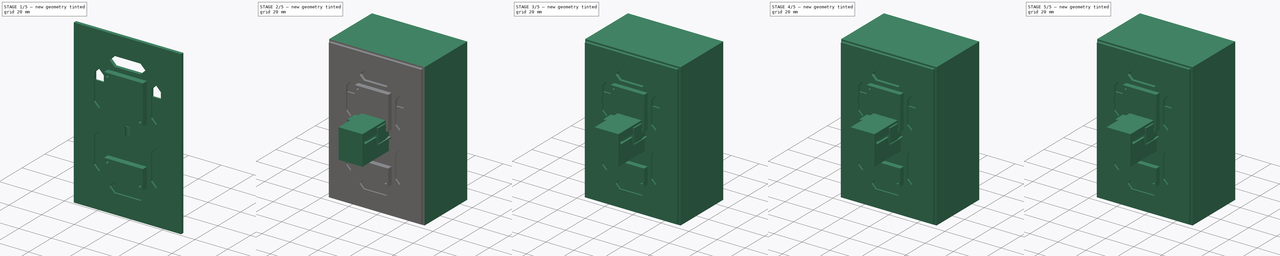
[diagram: build sequence overview — one tinted view per stage of 5, left to right]
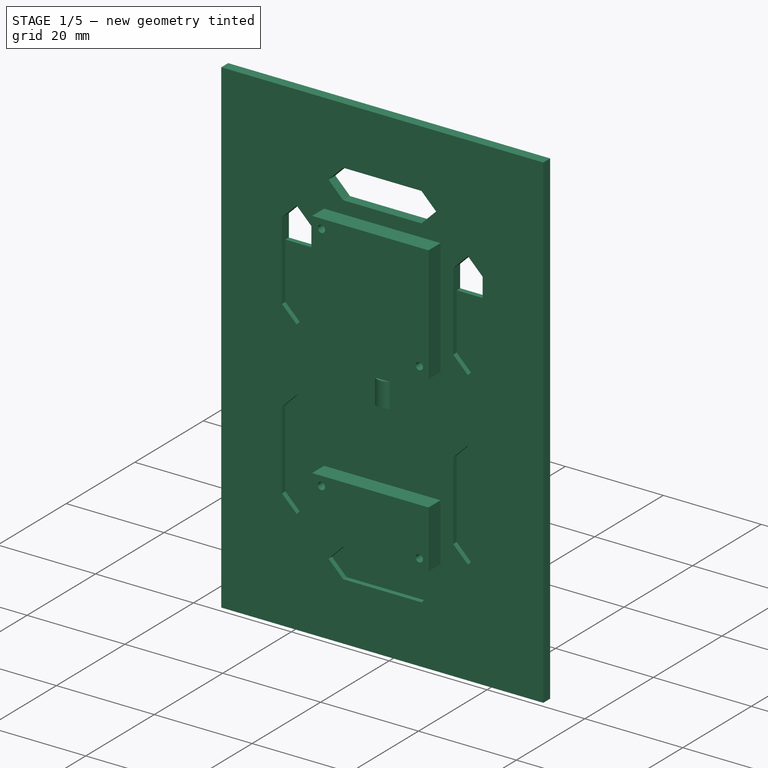
[diagram: stage 1 of 5 — iso view after this stage's code; geometry added in this stage tinted green]
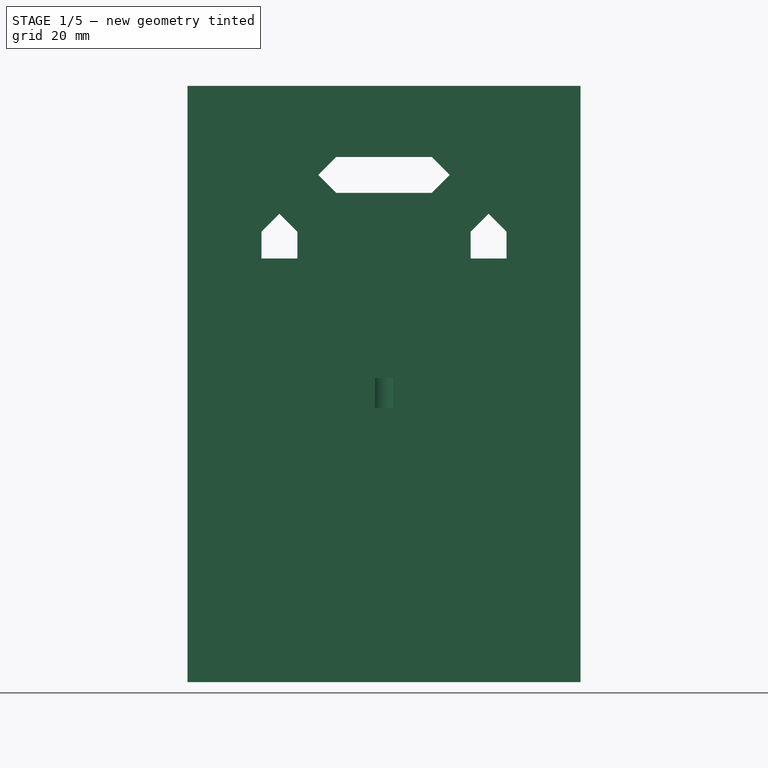
[diagram: stage 1 of 5 — front view after this stage's code; geometry added in this stage tinted green]
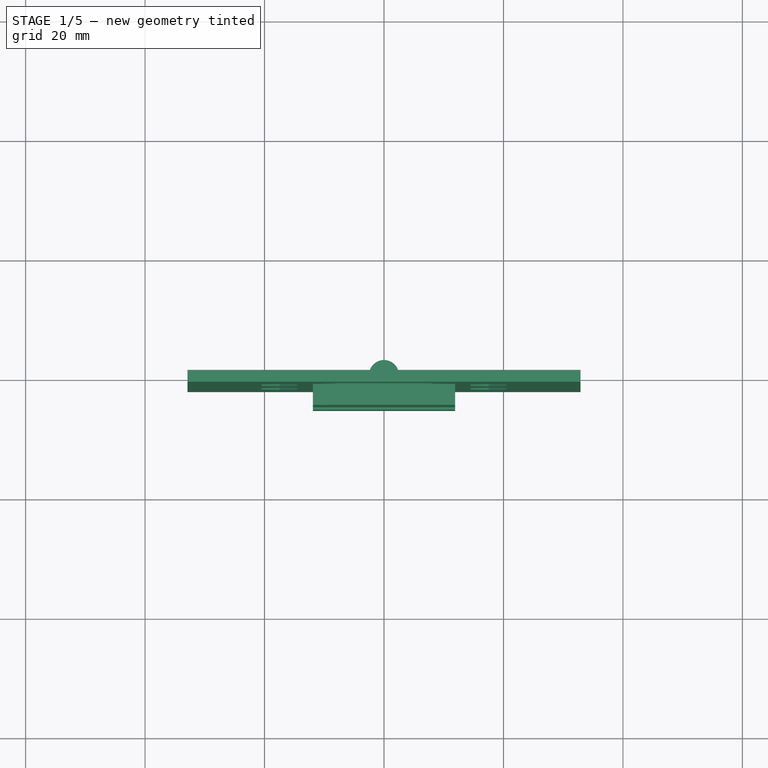
[diagram: stage 1 of 5 — top view after this stage's code; geometry added in this stage tinted green]
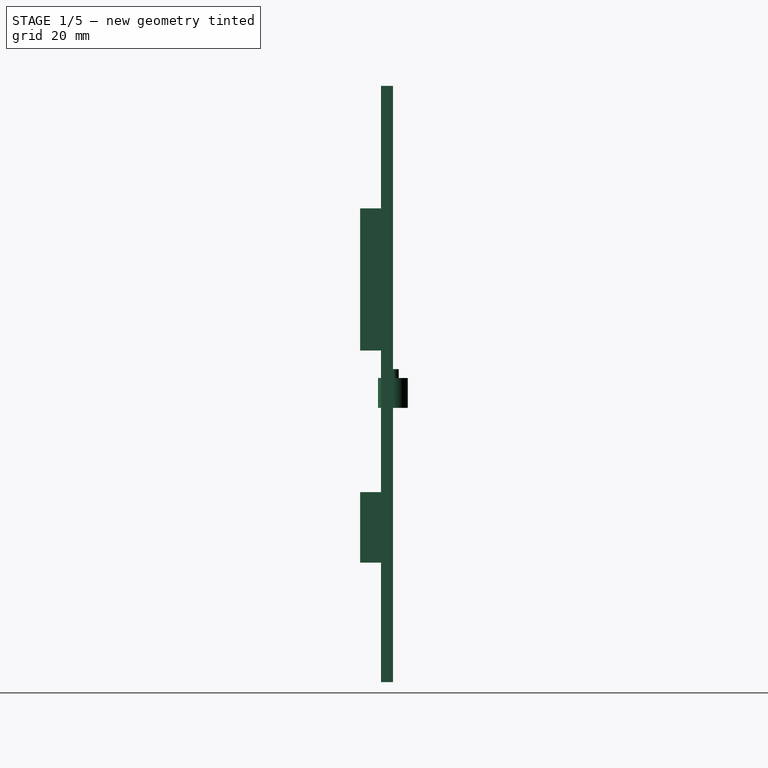
[diagram: stage 1 of 5 — right view after this stage's code; geometry added in this stage tinted green]
FCSTD DOCUMENT  (FreeCAD 0.19R24291 (Git))
Label: Mechanical Segment rev(03)
License: All rights reserved
LicenseURL: http://en.wikipedia.org/wiki/All_rights_reserved
objects: Sketcher::SketchObject×164, PartDesign::Pad×119, PartDesign::Body×64, PartDesign::Pocket×45, App::Part×33, Part::MultiFuse×7, PartDesign::Chamfer×7
note: 577 computed .brp shape members not serialized (recipe doc carries the construction recipe); baked Part::Feature solids carry a one-line shape summary decoded from their .brp

FEATURE [Sketcher::SketchObject] Sketch015
  FullyConstrained = true
  MapMode = 5
  Support = -> [XY_Plane013]
  sketch-geometry (2):
    g0: Circle CenterX=0 CenterY=0 CenterZ=0 NormalX=0 NormalY=0 NormalZ=1 AngleXU=0 Radius=2.5
    g1: Circle CenterX=0 CenterY=0 CenterZ=0 NormalX=0 NormalY=0 NormalZ=1 AngleXU=0 Radius=0.5
  constraints (4):
    c: Coincident(g0,g-1)
    c: Radius(g0) = 2.5
    c: Coincident(g1,g0)
    c: Radius(g1) = 0.5
FEATURE [PartDesign::Pad] Pad010
  Direction = (1,1,1)
  Length = 1
  Length2 = 100
  Profile = -> Sketch015
  Type = 0
FEATURE [Sketcher::SketchObject] Sketch017
  FullyConstrained = true
  MapMode = 5
  Placement = pos=(0,0,1) rot=(0,0,1;0rad)
  Support = -> [Pad010]
  sketch-geometry (2):
    g0: Circle CenterX=0 CenterY=0 CenterZ=0 NormalX=0 NormalY=0 NormalZ=1 AngleXU=0 Radius=0.97
    g1: Circle CenterX=0 CenterY=0 CenterZ=0 NormalX=0 NormalY=0 NormalZ=1 AngleXU=0 Radius=0.55
  constraints (4):
    c: Coincident(g0,g-1)
    c: Radius(g0) = 0.97
    c: Coincident(g1,g0)
    c: Radius(g1) = 0.55
FEATURE [PartDesign::Pad] Pad011
  BaseFeature = -> Pad010
  Direction = (1,1,1)
  Length = 1.5
  Length2 = 100
  Profile = -> Sketch017
  Type = 0
FEATURE [PartDesign::Body] Body006  label="CaseBody"
  Group = -> [Sketch012,Pad009,Sketch013,Pocket001,Sketch014,Pocket002,Sketch016,Pocket003,Sketch022,Pocket005]
  Origin = -> Origin012
  Tip = -> Pocket005
FEATURE [App::Part] Part003  label="Case"
  Group = -> [Body006]
  Origin = -> Origin011
  Placement = pos=(0,3,0) rot=(0,0,1;0rad)
FEATURE [Sketcher::SketchObject] Sketch024
  FullyConstrained = true
  MapMode = 5
  Placement = pos=(0,0,0) rot=(1,0,0;1.5708rad)
  Support = -> [XZ_Plane017]
  sketch-geometry (46):
    g0: LineSegment StartX=-32.9 StartY=49.9 StartZ=0 EndX=32.9 EndY=49.9 EndZ=0
    g1: LineSegment StartX=32.9 StartY=49.9 StartZ=0 EndX=32.9 EndY=-49.9 EndZ=0
    g2: LineSegment StartX=32.9 StartY=-49.9 StartZ=0 EndX=-32.9 EndY=-49.9 EndZ=0
    g3: LineSegment StartX=-32.9 StartY=-49.9 StartZ=0 EndX=-32.9 EndY=49.9 EndZ=0
    g4: LineSegment StartX=8 StartY=38 StartZ=0 EndX=-8 EndY=38 EndZ=0
    g5: LineSegment StartX=-8 StartY=38 StartZ=0 EndX=-11 EndY=35 EndZ=0
    g6: LineSegment StartX=-11 StartY=35 StartZ=0 EndX=-8 EndY=32 EndZ=0
    g7: LineSegment StartX=-8 StartY=32 StartZ=0 EndX=8 EndY=32 EndZ=0
    g8: LineSegment StartX=8 StartY=32 StartZ=0 EndX=11 EndY=35 EndZ=0
    g9: LineSegment StartX=11 StartY=35 StartZ=0 EndX=8 EndY=38 EndZ=0
    g10: LineSegment StartX=-14.5 StartY=25.5 StartZ=0 EndX=-17.5 EndY=28.5 EndZ=0
    g11: LineSegment StartX=-17.5 StartY=28.5 StartZ=0 EndX=-20.5 EndY=25.5 EndZ=0
    g12: LineSegment StartX=-20.5 StartY=25.5 StartZ=0 EndX=-20.5 EndY=9.5 EndZ=0
    g13: LineSegment StartX=-20.5 StartY=9.5 StartZ=0 EndX=-17.5 EndY=6.5 EndZ=0
    g14: LineSegment StartX=-17.5 StartY=6.5 StartZ=0 EndX=-14.5 EndY=9.5 EndZ=0
    g15: LineSegment StartX=-14.5 StartY=9.5 StartZ=0 EndX=-14.5 EndY=25.5 EndZ=0
    g16: LineSegment StartX=-14.5 StartY=-9.5 StartZ=0 EndX=-17.5 EndY=-6.5 EndZ=0
    g17: LineSegment StartX=-17.5 StartY=-6.5 StartZ=0 EndX=-20.5 EndY=-9.5 EndZ=0
    g18: LineSegment StartX=-20.5 StartY=-9.5 StartZ=0 EndX=-20.5 EndY=-25.5 EndZ=0
    g19: LineSegment StartX=-20.5 StartY=-25.5 StartZ=0 EndX=-17.5 EndY=-28.5 EndZ=0
    g20: LineSegment StartX=-17.5 StartY=-28.5 StartZ=0 EndX=-14.5 EndY=-25.5 EndZ=0
    g21: LineSegment StartX=-14.5 StartY=-25.5 StartZ=0 EndX=-14.5 EndY=-9.5 EndZ=0
    g22: LineSegment StartX=8 StartY=-32 StartZ=0 EndX=-8 EndY=-32 EndZ=0
    g23: LineSegment StartX=-8 StartY=-32 StartZ=0 EndX=-11 EndY=-35 EndZ=0
    g24: LineSegment StartX=-11 StartY=-35 StartZ=0 EndX=-8 EndY=-38 EndZ=0
    g25: LineSegment StartX=-8 StartY=-38 StartZ=0 EndX=8 EndY=-38 EndZ=0
    g26: LineSegment StartX=8 StartY=-38 StartZ=0 EndX=11 EndY=-35 EndZ=0
    g27: LineSegment StartX=11 StartY=-35 StartZ=0 EndX=8 EndY=-32 EndZ=0
    g28: LineSegment StartX=20.5 StartY=25.5 StartZ=0 EndX=17.5 EndY=28.5 EndZ=0
    g29: LineSegment StartX=17.5 StartY=28.5 StartZ=0 EndX=14.5 EndY=25.5 EndZ=0
    g30: LineSegment StartX=14.5 StartY=25.5 StartZ=0 EndX=14.5 EndY=9.5 EndZ=0
    g31: LineSegment StartX=14.5 StartY=9.5 StartZ=0 EndX=17.5 EndY=6.5 EndZ=0
    g32: LineSegment StartX=17.5 StartY=6.5 StartZ=0 EndX=20.5 EndY=9.5 EndZ=0
    g33: LineSegment StartX=20.5 StartY=9.5 StartZ=0 EndX=20.5 EndY=25.5 EndZ=0
    g34: LineSegment StartX=20.5 StartY=-9.5 StartZ=0 EndX=17.5 EndY=-6.5 EndZ=0
    g35: LineSegment StartX=17.5 StartY=-6.5 StartZ=0 EndX=14.5 EndY=-9.5 EndZ=0
    g36: LineSegment StartX=14.5 StartY=-9.5 StartZ=0 EndX=14.5 EndY=-25.5 EndZ=0
    g37: LineSegment StartX=14.5 StartY=-25.5 StartZ=0 EndX=17.5 EndY=-28.5 EndZ=0
    g38: LineSegment StartX=17.5 StartY=-28.5 StartZ=0 EndX=20.5 EndY=-25.5 EndZ=0
    g39: LineSegment StartX=20.5 StartY=-25.5 StartZ=0 EndX=20.5 EndY=-9.5 EndZ=0
    g40: LineSegment StartX=8 StartY=3 StartZ=0 EndX=-8 EndY=3 EndZ=0
    g41: LineSegment StartX=-8 StartY=3 StartZ=0 EndX=-11 EndY=-1.8e-15 EndZ=0
    g42: LineSegment StartX=-11 StartY=-1.8e-15 StartZ=0 EndX=-8 EndY=-3 EndZ=0
    g43: LineSegment StartX=-8 StartY=-3 StartZ=0 EndX=8 EndY=-3 EndZ=0
    g44: LineSegment StartX=8 StartY=-3 StartZ=0 EndX=11 EndY=0 EndZ=0
    g45: LineSegment StartX=11 StartY=0 StartZ=0 EndX=8 EndY=3 EndZ=0
  constraints (129):
    c: Coincident(g0,g1)
    c: Coincident(g1,g2)
    c: Coincident(g2,g3)
    c: Coincident(g3,g0)
    c: Horizontal(g2)
    c: Vertical(g3)
    c: Symmetric(g0,g0,g-2)
    c: Symmetric(g1,g0,g-1)
    c: Coincident(g4,g5)
    c: Coincident(g5,g6)
    c: Coincident(g6,g7)
    c: Coincident(g7,g8)
    c: Coincident(g8,g9)
    c: Coincident(g9,g4)
    c: Equal(g5,g6)
    c: Equal(g7,g4)
    c: Angle(g9,g8) = 1.5708
    c: Equal(g9,g8)
    c: Angle(g6,g5) = 1.5708
    c: Angle(g8,g7) = 2.35619
    c: DistanceX(g4,g4) = 16
    c: DistanceY(g6,g4) = 6
    c: Horizontal(g4)
    c: Coincident(g10,g11)
    c: Coincident(g11,g12)
    c: Coincident(g12,g13)
    c: Coincident(g13,g14)
    c: Coincident(g14,g15)
    c: Coincident(g15,g10)
    c: Angle(g11,g10) = 1.5708
    c: Angle(g14,g13) = 1.5708
    c: Vertical(g12)
    c: Vertical(g15)
    c: DistanceX(g11,g10) = 6
    c: Angle(g15,g14) = 2.35619
    c: Equal(g14,g13)
    c: Equal(g10,g11)
    c: Equal(g15,g12)
    c: DistanceY(g15,g15) = 16
    c: Coincident(g16,g17)
    c: Coincident(g17,g18)
    c: Coincident(g18,g19)
    c: Coincident(g19,g20)
    c: Coincident(g20,g21)
    c: Coincident(g21,g16)
    c: Angle(g17,g16) = 1.5708
    c: Angle(g20,g19) = 1.5708
    c: Vertical(g18)
    c: Vertical(g21)
    c: DistanceX(g17,g16) = 6
    c: Angle(g21,g20) = 2.35619
    c: Equal(g20,g19)
    c: Equal(g16,g17)
    c: Equal(g21,g18)
    c: Equal(g15,g21) = 15
    c: Coincident(g22,g23)
    c: Coincident(g23,g24)
    c: Coincident(g24,g25)
    c: Coincident(g25,g26)
    c: Coincident(g26,g27)
    c: Coincident(g27,g22)
    c: Equal(g23,g24)
    c: Equal(g25,g22)
    c: Horizontal(g25)
    c: Angle(g27,g26) = 1.5708
    c: Equal(g27,g26)
    c: Angle(g24,g23) = 1.5708
    c: Angle(g26,g25) = 2.35619
    c: Equal(g4,g22) = 12
    c: DistanceY(g24,g22) = 6
    c: Coincident(g28,g29)
    c: Coincident(g29,g30)
    c: Coincident(g30,g31)
    c: Coincident(g31,g32)
    c: Coincident(g32,g33)
    c: Coincident(g33,g28)
    c: Angle(g29,g28) = 1.5708
    c: Angle(g32,g31) = 1.5708
    c: Vertical(g30)
    c: Vertical(g33)
    c: DistanceX(g29,g28) = 6
    c: Angle(g33,g32) = 2.35619
    c: Equal(g32,g31)
    c: Equal(g28,g29)
    c: Equal(g33,g30)
    c: Equal(g15,g33) = 15
    c: Coincident(g34,g35)
    c: Coincident(g35,g36)
    c: Coincident(g36,g37)
    c: Coincident(g37,g38)
    c: Coincident(g38,g39)
    c: Coincident(g39,g34)
    c: Angle(g35,g34) = 1.5708
    c: Angle(g38,g37) = 1.5708
    c: Vertical(g36)
    c: Vertical(g39)
    c: DistanceX(g35,g34) = 6
    c: Angle(g39,g38) = 2.35619
    c: Equal(g38,g37)
    c: Equal(g33,g39) = 15
    c: Coincident(g40,g41)
    c: Coincident(g41,g42)
    c: Coincident(g42,g43)
    c: Coincident(g43,g44)
    c: Coincident(g44,g45)
    c: Coincident(g45,g40)
    c: Equal(g41,g42)
    c: Equal(g43,g40)
    c: Horizontal(g43)
    c: Angle(g45,g44) = 1.5708
    c: Equal(g45,g44)
    c: Angle(g42,g41) = 1.5708
    c: Angle(g44,g43) = 2.35619
    c: Equal(g4,g40) = 12
    c: DistanceY(g42,g40) = 6
    c: Symmetric(g10,g29,g-2)
    c: DistanceX(g10,g29) = 29
    c: Symmetric(g6,g7,g-2)
    c: Symmetric(g40,g40,g-2)
    c: DistanceY(g40,g7) = 29
    c: DistanceY(g22,g43) = 29
    c: PointOnObject(g44,g-1)
    c: Symmetric(g22,g22,g-2)
    c: Symmetric(g35,g16,g-2)
    c: Symmetric(g31,g34,g-1)
    c: Symmetric(g16,g13,g-1)
    c: DistanceY(g1,g1) = 99.8
    c: DistanceX(g0,g0) = 65.8
    c: DistanceY(g34,g31) = 13
FEATURE [PartDesign::Pad] Pad016
  Direction = (1,1,1)
  Length = 2
  Length2 = 100
  Placement = pos=(0,0,0) rot=(1,0,0;1.5708rad)
  Profile = -> Sketch024
  Type = 0
FEATURE [Sketcher::SketchObject] Sketch032
  FullyConstrained = true
  MapMode = 5
  Placement = pos=(0,0,0) rot=(1,0,0;1.5708rad)
  Support = -> [XZ_Plane020]
  sketch-geometry (4):
    g0: LineSegment StartX=-21 StartY=21 StartZ=0 EndX=21 EndY=21 EndZ=0
    g1: LineSegment StartX=21 StartY=21 StartZ=0 EndX=21 EndY=-21 EndZ=0
    g2: LineSegment StartX=21 StartY=-21 StartZ=0 EndX=-21 EndY=-21 EndZ=0
    g3: LineSegment StartX=-21 StartY=-21 StartZ=0 EndX=-21 EndY=21 EndZ=0
  constraints (10):
    c: Coincident(g0,g1)
    c: Coincident(g1,g2)
    c: Coincident(g2,g3)
    c: Coincident(g3,g0)
    c: Horizontal(g2)
    c: Vertical(g3)
    c: Symmetric(g0,g0,g-2)
    c: Symmetric(g1,g0,g-1)
    c: Equal(g1,g0)
    c: DistanceX(g0,g0) = 42
FEATURE [PartDesign::Pad] Pad111
  Direction = (1,1,1)
  Length = 2
  Length2 = 100
  Placement = pos=(0,0,0) rot=(1,0,0;1.5708rad)
  Profile = -> Sketch032
  Type = 0
FEATURE [Sketcher::SketchObject] Sketch166
  FullyConstrained = true
  MapMode = 5
  Placement = pos=(0,-2,0) rot=(1,0,0;1.5708rad)
  Support = -> [Pad016]
  sketch-geometry (8):
    g0: LineSegment StartX=-11.9 StartY=29.4 StartZ=0 EndX=11.9 EndY=29.4 EndZ=0
    g1: LineSegment StartX=11.9 StartY=29.4 StartZ=0 EndX=11.9 EndY=5.6 EndZ=0
    g2: LineSegment StartX=11.9 StartY=5.6 StartZ=0 EndX=-11.9 EndY=5.6 EndZ=0
    g3: LineSegment StartX=-11.9 StartY=5.6 StartZ=0 EndX=-11.9 EndY=29.4 EndZ=0
    g4: LineSegment StartX=-11.9 StartY=-18.1 StartZ=0 EndX=11.9 EndY=-18.1 EndZ=0
    g5: LineSegment StartX=11.9 StartY=-18.1 StartZ=0 EndX=11.9 EndY=-29.9 EndZ=0
    g6: LineSegment StartX=11.9 StartY=-29.9 StartZ=0 EndX=-11.9 EndY=-29.9 EndZ=0
    g7: LineSegment StartX=-11.9 StartY=-29.9 StartZ=0 EndX=-11.9 EndY=-18.1 EndZ=0
  constraints (22):
    c: Coincident(g0,g1)
    c: Coincident(g1,g2)
    c: Coincident(g2,g3)
    c: Coincident(g3,g0)
    c: Horizontal(g0)
    c: Vertical(g1)
    c: Vertical(g3)
    c: DistanceX(g2,g0) = 23.8
    c: DistanceY(g2,g0) = 23.8
    c: Symmetric(g1,g2,g-2)
    c: DistanceY(g-1,g1) = 5.6
    c: Coincident(g4,g5)
    c: Coincident(g5,g6)
    c: Coincident(g6,g7)
    c: Coincident(g7,g4)
    c: Horizontal(g6)
    c: Vertical(g5)
    c: Vertical(g7)
    c: Symmetric(g4,g4,g-2)
    c: DistanceX(g4,g4) = 23.8
    c: DistanceY(g5,g5) = 11.8
    c: DistanceY(g4,g-1) = 18.1
FEATURE [PartDesign::Pad] Pad112
  BaseFeature = -> Pad016
  Direction = (1,1,1)
  Length = 3.5
  Length2 = 100
  Placement = pos=(0,0,0) rot=(1,0,0;1.5708rad)
  Profile = -> Sketch166
  Type = 0
FEATURE [Sketcher::SketchObject] Sketch165
  FullyConstrained = true
  MapMode = 5
  Placement = pos=(0,0,0) rot=(-1,0,0;1.5708rad)
  Support = -> [Pad111]
  sketch-geometry (4):
    g0: LineSegment StartX=-12 StartY=12 StartZ=0 EndX=12 EndY=12 EndZ=0
    g1: LineSegment StartX=12 StartY=12 StartZ=0 EndX=12 EndY=-12 EndZ=0
    g2: LineSegment StartX=12 StartY=-12 StartZ=0 EndX=-12 EndY=-12 EndZ=0
    g3: LineSegment StartX=-12 StartY=-12 StartZ=0 EndX=-12 EndY=12 EndZ=0
  constraints (10):
    c: Coincident(g0,g1)
    c: Coincident(g1,g2)
    c: Coincident(g2,g3)
    c: Coincident(g3,g0)
    c: Horizontal(g2)
    c: Vertical(g3)
    c: Equal(g0,g1)
    c: Symmetric(g0,g0,g-2)
    c: Symmetric(g1,g0,g-1)
    c: DistanceX(g0,g0) = 24
FEATURE [PartDesign::Pocket] Pocket008
  BaseFeature = -> Pad111
  Length = 1
  Length2 = 100
  Placement = pos=(0,0,0) rot=(1,0,0;1.5708rad)
  Profile = -> Sketch165
  Type = 0
FEATURE [Sketcher::SketchObject] Sketch167
  FullyConstrained = true
  MapMode = 5
  Placement = pos=(0,-2,0) rot=(1,0,0;1.5708rad)
  Support = -> [Pocket008]
  sketch-geometry (8):
    g0: LineSegment StartX=-14 StartY=14 StartZ=0 EndX=14 EndY=14 EndZ=0
    g1: LineSegment StartX=14 StartY=14 StartZ=0 EndX=14 EndY=-14 EndZ=0
    g2: LineSegment StartX=14 StartY=-14 StartZ=0 EndX=-14 EndY=-14 EndZ=0
    g3: LineSegment StartX=-14 StartY=-14 StartZ=0 EndX=-14 EndY=14 EndZ=0
    g4: LineSegment StartX=-21 StartY=21 StartZ=0 EndX=21 EndY=21 EndZ=0
    g5: LineSegment StartX=21 StartY=21 StartZ=0 EndX=21 EndY=-21 EndZ=0
    g6: LineSegment StartX=21 StartY=-21 StartZ=0 EndX=-21 EndY=-21 EndZ=0
    g7: LineSegment StartX=-21 StartY=-21 StartZ=0 EndX=-21 EndY=21 EndZ=0
  constraints (20):
    c: Coincident(g0,g1)
    c: Coincident(g1,g2)
    c: Coincident(g2,g3)
    c: Coincident(g3,g0)
    c: Horizontal(g0)
    c: Vertical(g3)
    c: Symmetric(g1,g2,g-2)
    c: Symmetric(g1,g0,g-1)
    c: DistanceX(g2,g0) = 28
    c: DistanceY(g2,g0) = 28
    c: Coincident(g4,g5)
    c: Coincident(g5,g6)
    c: Coincident(g6,g7)
    c: Coincident(g7,g4)
    c: Horizontal(g4)
    c: Vertical(g7)
    c: DistanceX(g6,g4) = 42
    c: DistanceY(g6,g4) = 42
    c: Symmetric(g6,g5,g-2)
    c: Symmetric(g5,g4,g-1)
FEATURE [PartDesign::Pocket] Pocket009
  BaseFeature = -> Pocket008
  Length = 1
  Length2 = 100
  Placement = pos=(0,0,0) rot=(1,0,0;1.5708rad)
  Profile = -> Sketch167
  Type = 0
FEATURE [Sketcher::SketchObject] Sketch170
  FullyConstrained = true
  MapMode = 5
  Placement = pos=(0,0,0) rot=(1,0,0;1.5708rad)
  Support = -> [XZ_Plane021]
  sketch-geometry (8):
    g0: LineSegment StartX=21 StartY=-5 StartZ=0 EndX=21 EndY=-38.5 EndZ=0
    g1: LineSegment StartX=21 StartY=-38.5 StartZ=0 EndX=-21 EndY=-38.5 EndZ=0
    g2: LineSegment StartX=-21 StartY=-38.5 StartZ=0 EndX=-21 EndY=-5 EndZ=0
    g3: LineSegment StartX=-21 StartY=-5 StartZ=0 EndX=-13 EndY=-5 EndZ=0
    g4: LineSegment StartX=-13 StartY=-5 StartZ=0 EndX=-13 EndY=-16 EndZ=0
    g5: LineSegment StartX=-13 StartY=-16 StartZ=0 EndX=13 EndY=-16 EndZ=0
    g6: LineSegment StartX=13 StartY=-16 StartZ=0 EndX=13 EndY=-5 EndZ=0
    g7: LineSegment StartX=13 StartY=-5 StartZ=0 EndX=21 EndY=-5 EndZ=0
  constraints (22):
    c: Coincident(g0,g1)
    c: Coincident(g1,g2)
    c: Vertical(g0)
    c: Vertical(g2)
    c: Coincident(g2,g3)
    c: Horizontal(g3)
    c: Coincident(g3,g4)
    c: Vertical(g4)
    c: Coincident(g4,g5)
    c: Coincident(g5,g6)
    c: Vertical(g6)
    c: Coincident(g6,g7)
    c: Coincident(g7,g0)
    c: Horizontal(g7)
    c: Symmetric(g0,g1,g-2)
    c: DistanceX(g1,g1) = 42
    c: DistanceY(g0,g-1) = 38.5
    c: Symmetric(g6,g3,g-2)
    c: DistanceX(g5,g5) = 26
    c: DistanceY(g0,g-1) = 5
    c: Horizontal(g5)
    c: DistanceY(g6,g6) = 11
FEATURE [PartDesign::Pad] Pad113
  Direction = (1,1,1)
  Length = 2
  Length2 = 100
  Placement = pos=(0,0,0) rot=(1,0,0;1.5708rad)
  Profile = -> Sketch170
  Type = 0
FEATURE [Sketcher::SketchObject] Sketch171
  FullyConstrained = true
  MapMode = 5
  Placement = pos=(0,0,0) rot=(-1,0,0;1.5708rad)
  Support = -> [Pad113]
  sketch-geometry (4):
    g0: LineSegment StartX=-12 StartY=30 StartZ=0 EndX=12 EndY=30 EndZ=0
    g1: LineSegment StartX=12 StartY=30 StartZ=0 EndX=12 EndY=18 EndZ=0
    g2: LineSegment StartX=12 StartY=18 StartZ=0 EndX=-12 EndY=18 EndZ=0
    g3: LineSegment StartX=-12 StartY=18 StartZ=0 EndX=-12 EndY=30 EndZ=0
  constraints (11):
    c: Coincident(g0,g1)
    c: Coincident(g1,g2)
    c: Coincident(g2,g3)
    c: Coincident(g3,g0)
    c: Horizontal(g2)
    c: Vertical(g1)
    c: Vertical(g3)
    c: DistanceX(g2,g0) = 24
    c: DistanceY(g2,g0) = 12
    c: Symmetric(g0,g0,g-2)
    c: DistanceY(g-1,g1) = 18
FEATURE [PartDesign::Pocket] Pocket010
  BaseFeature = -> Pad113
  Length = 1
  Length2 = 100
  Placement = pos=(0,0,0) rot=(1,0,0;1.5708rad)
  Profile = -> Sketch171
  Type = 0
FEATURE [Sketcher::SketchObject] Sketch172
  FullyConstrained = false
  MapMode = 5
  Placement = pos=(0,-2,0) rot=(1,0,0;1.5708rad)
  Support = -> [Pocket010]
  sketch-geometry (8):
    g0: LineSegment StartX=-23.1185 StartY=-2.80901 StartZ=0 EndX=23.1185 EndY=-2.80901 EndZ=0
    g1: LineSegment StartX=23.1185 StartY=-2.80901 StartZ=0 EndX=23.1185 EndY=-39.9916 EndZ=0
    g2: LineSegment StartX=23.1185 StartY=-39.9916 StartZ=0 EndX=-23.1185 EndY=-39.9916 EndZ=0
    g3: LineSegment StartX=-23.1185 StartY=-39.9916 StartZ=0 EndX=-23.1185 EndY=-2.80901 EndZ=0
    g4: LineSegment StartX=-14 StartY=-16 StartZ=0 EndX=14 EndY=-16 EndZ=0
    g5: LineSegment StartX=14 StartY=-16 StartZ=0 EndX=14 EndY=-32 EndZ=0
    g6: LineSegment StartX=14 StartY=-32 StartZ=0 EndX=-14 EndY=-32 EndZ=0
    g7: LineSegment StartX=-14 StartY=-32 StartZ=0 EndX=-14 EndY=-16 EndZ=0
  constraints (19):
    c: Coincident(g0,g1)
    c: Coincident(g1,g2)
    c: Coincident(g2,g3)
    c: Coincident(g3,g0)
    c: Horizontal(g0)
    c: Vertical(g1)
    c: Vertical(g3)
    c: Coincident(g4,g5)
    c: Coincident(g5,g6)
    c: Coincident(g6,g7)
    c: Coincident(g7,g4)
    c: Horizontal(g4)
    c: Vertical(g5)
    c: Vertical(g7)
    c: DistanceX(g6,g4) = 28
    c: DistanceY(g6,g4) = 16
    c: Symmetric(g5,g6,g-2)
    c: Symmetric(g1,g2,g-2)
    c: DistanceY(g4,g-1) = 16
FEATURE [PartDesign::Pocket] Pocket011
  BaseFeature = -> Pocket010
  Length = 1
  Length2 = 100
  Placement = pos=(0,0,0) rot=(1,0,0;1.5708rad)
  Profile = -> Sketch172
  Type = 0
FEATURE [PartDesign::Body] Body016  label="CaseBody001"
  Group = -> [Sketch189,Pad117,Sketch185,Pocket012,Sketch186,Pocket013,Sketch178,Pocket014,Sketch184,Pocket015]
  Origin = -> Origin027
  Tip = -> Pocket015
FEATURE [App::Part] Part007  label="Case001"
  Group = -> [Body016]
  Origin = -> Origin025
  Placement = pos=(0,3,0) rot=(0,0,1;0rad)
FEATURE [PartDesign::Pad] Pad118
  Direction = (1,1,1)
  Length = 1
  Length2 = 100
  Profile = -> Sketch188
  Type = 0
FEATURE [Sketcher::SketchObject] Sketch182
  ExternalGeometry = -> [Pad120]
  FullyConstrained = false
  MapMode = 5
  Support = -> [XY_Plane033]
  sketch-geometry (8):
    g0: ArcOfCircle CenterX=-2.53973 CenterY=-9.54527 CenterZ=0 NormalX=0 NormalY=0 NormalZ=1 AngleXU=0 Radius=1 StartAngle=3.14159 EndAngle=6.28319
    g1: LineSegment StartX=-3.53973 StartY=-8.57169 StartZ=0 EndX=-3.53973 EndY=-9.54527 EndZ=0
    g2: LineSegment StartX=-1.53973 StartY=-8.57169 StartZ=0 EndX=-1.53973 EndY=-9.54527 EndZ=0
    g3: LineSegment StartX=-3.53973 StartY=-8.57169 StartZ=0 EndX=-1.53973 EndY=-8.57169 EndZ=0
    g4: ArcOfCircle CenterX=2.53973 CenterY=-9.54527 CenterZ=0 NormalX=0 NormalY=0 NormalZ=1 AngleXU=0 Radius=1 StartAngle=3.14159 EndAngle=6.28319
    g5: LineSegment StartX=3.53973 StartY=-8.57169 StartZ=0 EndX=3.53973 EndY=-9.54527 EndZ=0
    g6: LineSegment StartX=1.53973 StartY=-8.57169 StartZ=0 EndX=1.53973 EndY=-9.54527 EndZ=0
    g7: LineSegment StartX=3.53973 StartY=-8.57169 StartZ=0 EndX=1.53973 EndY=-8.57169 EndZ=0
  constraints (17):
    c: Tangent(g1,g0) = -1.5708
    c: Tangent(g2,g0) = 1.5708
    c: Vertical(g1)
    c: Coincident(g3,g1)
    c: Coincident(g3,g2)
    c: Horizontal(g3)
    c: Vertical(g2)
    c: Radius(g0) = 1
    c: PointOnObject(g1,g-3)
    c: Tangent(g5,g4) = 1.5708
    c: Tangent(g6,g4) = -1.5708
    c: Vertical(g5)
    c: Coincident(g7,g5)
    c: Coincident(g7,g6)
    c: Horizontal(g7)
    c: Vertical(g6)
    c: Radius(g4) = 1
FEATURE [PartDesign::Pad] Pad121
  BaseFeature = -> Pad118
  Direction = (1,1,1)
  Length = 1.5
  Length2 = 100
  Profile = -> Sketch180
  Type = 0
FEATURE [Sketcher::SketchObject] Sketch207
  FullyConstrained = false
  MapMode = 5
  Placement = pos=(0,0,12.5) rot=(0,0,1;0rad)
  Support = -> [Pad133]
  sketch-geometry (1):
    g0: Circle CenterX=0 CenterY=0 CenterZ=0 NormalX=0 NormalY=0 NormalZ=1 AngleXU=0 Radius=0.742682
  constraints (1):
    c: Coincident(g0,g-1)
FEATURE [PartDesign::Pad] Pad134
  Direction = (1,1,1)
  Length = 1
  Length2 = 100
  Profile = -> Sketch222
  Type = 0
FEATURE [Sketcher::SketchObject] Sketch216
  ExternalGeometry = -> [Pad135]
  FullyConstrained = false
  MapMode = 5
  Support = -> [XY_Plane043]
  sketch-geometry (8):
    g0: ArcOfCircle CenterX=-2.53973 CenterY=-9.54527 CenterZ=0 NormalX=0 NormalY=0 NormalZ=1 AngleXU=0 Radius=1 StartAngle=3.14159 EndAngle=6.28319
    g1: LineSegment StartX=-3.53973 StartY=-8.57169 StartZ=0 EndX=-3.53973 EndY=-9.54527 EndZ=0
    g2: LineSegment StartX=-1.53973 StartY=-8.57169 StartZ=0 EndX=-1.53973 EndY=-9.54527 EndZ=0
    g3: LineSegment StartX=-3.53973 StartY=-8.57169 StartZ=0 EndX=-1.53973 EndY=-8.57169 EndZ=0
    g4: ArcOfCircle CenterX=2.53973 CenterY=-9.54527 CenterZ=0 NormalX=0 NormalY=0 NormalZ=1 AngleXU=0 Radius=1 StartAngle=3.14159 EndAngle=6.28319
    g5: LineSegment StartX=3.53973 StartY=-8.57169 StartZ=0 EndX=3.53973 EndY=-9.54527 EndZ=0
    g6: LineSegment StartX=1.53973 StartY=-8.57169 StartZ=0 EndX=1.53973 EndY=-9.54527 EndZ=0
    g7: LineSegment StartX=3.53973 StartY=-8.57169 StartZ=0 EndX=1.53973 EndY=-8.57169 EndZ=0
  constraints (17):
    c: Tangent(g1,g0) = -1.5708
    c: Tangent(g2,g0) = 1.5708
    c: Vertical(g1)
    c: Coincident(g3,g1)
    c: Coincident(g3,g2)
    c: Horizontal(g3)
    c: Vertical(g2)
    c: Radius(g0) = 1
    c: PointOnObject(g1,g-3)
    c: Tangent(g5,g4) = 1.5708
    c: Tangent(g6,g4) = -1.5708
    c: Vertical(g5)
    c: Coincident(g7,g5)
    c: Coincident(g7,g6)
    c: Horizontal(g7)
    c: Vertical(g6)
    c: Radius(g4) = 1
FEATURE [PartDesign::Pad] Pad136
  BaseFeature = -> Pad134
  Direction = (1,1,1)
  Length = 1.5
  Length2 = 100
  Profile = -> Sketch210
  Type = 0
FEATURE [PartDesign::Body] Body024  label="CaseBody002"
  Group = -> [Sketch227,Pad145,Sketch223,Pocket017,Sketch224,Pocket018,Sketch197,Pocket019,Sketch203,Pocket020]
  Origin = -> Origin051
  Tip = -> Pocket020
FEATURE [App::Part] Part015  label="Case003"
  Group = -> [Body024]
  Origin = -> Origin049
  Placement = pos=(0,3,0) rot=(0,0,1;0rad)
FEATURE [PartDesign::Pad] Pad146
  Direction = (1,1,1)
  Length = 1
  Length2 = 100
  Profile = -> Sketch226
  Type = 0
FEATURE [Sketcher::SketchObject] Sketch201
  ExternalGeometry = -> [Pad148]
  FullyConstrained = false
  MapMode = 5
  Support = -> [XY_Plane057]
  sketch-geometry (8):
    g0: ArcOfCircle CenterX=-2.53973 CenterY=-9.54527 CenterZ=0 NormalX=0 NormalY=0 NormalZ=1 AngleXU=0 Radius=1 StartAngle=3.14159 EndAngle=6.28319
    g1: LineSegment StartX=-3.53973 StartY=-8.57169 StartZ=0 EndX=-3.53973 EndY=-9.54527 EndZ=0
    g2: LineSegment StartX=-1.53973 StartY=-8.57169 StartZ=0 EndX=-1.53973 EndY=-9.54527 EndZ=0
    g3: LineSegment StartX=-3.53973 StartY=-8.57169 StartZ=0 EndX=-1.53973 EndY=-8.57169 EndZ=0
    g4: ArcOfCircle CenterX=2.53973 CenterY=-9.54527 CenterZ=0 NormalX=0 NormalY=0 NormalZ=1 AngleXU=0 Radius=1 StartAngle=3.14159 EndAngle=6.28319
    g5: LineSegment StartX=3.53973 StartY=-8.57169 StartZ=0 EndX=3.53973 EndY=-9.54527 EndZ=0
    g6: LineSegment StartX=1.53973 StartY=-8.57169 StartZ=0 EndX=1.53973 EndY=-9.54527 EndZ=0
    g7: LineSegment StartX=3.53973 StartY=-8.57169 StartZ=0 EndX=1.53973 EndY=-8.57169 EndZ=0
  constraints (17):
    c: Tangent(g1,g0) = -1.5708
    c: Tangent(g2,g0) = 1.5708
    c: Vertical(g1)
    c: Coincident(g3,g1)
    c: Coincident(g3,g2)
    c: Horizontal(g3)
    c: Vertical(g2)
    c: Radius(g0) = 1
    c: PointOnObject(g1,g-3)
    c: Tangent(g5,g4) = 1.5708
    c: Tangent(g6,g4) = -1.5708
    c: Vertical(g5)
    c: Coincident(g7,g5)
    c: Coincident(g7,g6)
    c: Horizontal(g7)
    c: Vertical(g6)
    c: Radius(g4) = 1
FEATURE [PartDesign::Pad] Pad149
  BaseFeature = -> Pad146
  Direction = (1,1,1)
  Length = 1.5
  Length2 = 100
  Profile = -> Sketch199
  Type = 0
FEATURE [PartDesign::Body] Body040  label="CaseBody004"
  Group = -> [Sketch246,Pad159,Sketch242,Pocket027,Sketch243,Pocket028,Sketch235,Pocket029,Sketch241,Pocket030]
  Origin = -> Origin063
  Tip = -> Pocket030
FEATURE [App::Part] Part019  label="Case004"
  Group = -> [Body040]
  Origin = -> Origin061
  Placement = pos=(0,3,0) rot=(0,0,1;0rad)
FEATURE [PartDesign::Pad] Pad160
  Direction = (1,1,1)
  Length = 1
  Length2 = 100
  Profile = -> Sketch245
  Type = 0
FEATURE [Sketcher::SketchObject] Sketch239
  ExternalGeometry = -> [Pad162]
  FullyConstrained = false
  MapMode = 5
  Support = -> [XY_Plane069]
  sketch-geometry (8):
    g0: ArcOfCircle CenterX=-2.53973 CenterY=-9.54527 CenterZ=0 NormalX=0 NormalY=0 NormalZ=1 AngleXU=0 Radius=1 StartAngle=3.14159 EndAngle=6.28319
    g1: LineSegment StartX=-3.53973 StartY=-8.57169 StartZ=0 EndX=-3.53973 EndY=-9.54527 EndZ=0
    g2: LineSegment StartX=-1.53973 StartY=-8.57169 StartZ=0 EndX=-1.53973 EndY=-9.54527 EndZ=0
    g3: LineSegment StartX=-3.53973 StartY=-8.57169 StartZ=0 EndX=-1.53973 EndY=-8.57169 EndZ=0
    g4: ArcOfCircle CenterX=2.53973 CenterY=-9.54527 CenterZ=0 NormalX=0 NormalY=0 NormalZ=1 AngleXU=0 Radius=1 StartAngle=3.14159 EndAngle=6.28319
    g5: LineSegment StartX=3.53973 StartY=-8.57169 StartZ=0 EndX=3.53973 EndY=-9.54527 EndZ=0
    g6: LineSegment StartX=1.53973 StartY=-8.57169 StartZ=0 EndX=1.53973 EndY=-9.54527 EndZ=0
    g7: LineSegment StartX=3.53973 StartY=-8.57169 StartZ=0 EndX=1.53973 EndY=-8.57169 EndZ=0
  constraints (17):
    c: Tangent(g1,g0) = -1.5708
    c: Tangent(g2,g0) = 1.5708
    c: Vertical(g1)
    c: Coincident(g3,g1)
    c: Coincident(g3,g2)
    c: Horizontal(g3)
    c: Vertical(g2)
    c: Radius(g0) = 1
    c: PointOnObject(g1,g-3)
    c: Tangent(g5,g4) = 1.5708
    c: Tangent(g6,g4) = -1.5708
    c: Vertical(g5)
    c: Coincident(g7,g5)
    c: Coincident(g7,g6)
    c: Horizontal(g7)
    c: Vertical(g6)
    c: Radius(g4) = 1
FEATURE [PartDesign::Pad] Pad163
  BaseFeature = -> Pad160
  Direction = (1,1,1)
  Length = 1.5
  Length2 = 100
  Profile = -> Sketch237
  Type = 0
FEATURE [Sketcher::SketchObject] Sketch264
  FullyConstrained = true
  MapMode = 5
  Support = -> [XY_Plane073]
  sketch-geometry (2):
    g0: Circle CenterX=0 CenterY=0 CenterZ=0 NormalX=0 NormalY=0 NormalZ=1 AngleXU=0 Radius=2.5
    g1: Circle CenterX=0 CenterY=0 CenterZ=0 NormalX=0 NormalY=0 NormalZ=1 AngleXU=0 Radius=0.5
  constraints (4):
    c: Coincident(g0,g-1)
    c: Radius(g0) = 2.5
    c: Coincident(g1,g0)
    c: Radius(g1) = 0.5
FEATURE [PartDesign::Pad] Pad178
  Direction = (1,1,1)
  Length = 1
  Length2 = 100
  Profile = -> Sketch264
  Type = 0
FEATURE [Sketcher::SketchObject] Sketch258
  FullyConstrained = true
  MapMode = 5
  Placement = pos=(0,0,1) rot=(0,0,1;0rad)
  Support = -> [Pad178]
  sketch-geometry (2):
    g0: Circle CenterX=0 CenterY=0 CenterZ=0 NormalX=0 NormalY=0 NormalZ=1 AngleXU=0 Radius=0.97
    g1: Circle CenterX=0 CenterY=0 CenterZ=0 NormalX=0 NormalY=0 NormalZ=1 AngleXU=0 Radius=0.55
  constraints (4):
    c: Coincident(g0,g-1)
    c: Radius(g0) = 0.97
    c: Coincident(g1,g0)
    c: Radius(g1) = 0.55
FEATURE [PartDesign::Pad] Pad173
  BaseFeature = -> Pad178
  Direction = (1,1,1)
  Length = 1.5
  Length2 = 100
  Profile = -> Sketch258
  Type = 0
FEATURE [Sketcher::SketchObject] Sketch283
  FullyConstrained = true
  MapMode = 5
  Support = -> [XY_Plane085]
  sketch-geometry (2):
    g0: Circle CenterX=0 CenterY=0 CenterZ=0 NormalX=0 NormalY=0 NormalZ=1 AngleXU=0 Radius=2.5
    g1: Circle CenterX=0 CenterY=0 CenterZ=0 NormalX=0 NormalY=0 NormalZ=1 AngleXU=0 Radius=0.5
  constraints (4):
    c: Coincident(g0,g-1)
    c: Radius(g0) = 2.5
    c: Coincident(g1,g0)
    c: Radius(g1) = 0.5
FEATURE [PartDesign::Pad] Pad192
  Direction = (1,1,1)
  Length = 1
  Length2 = 100
  Profile = -> Sketch283
  Type = 0
FEATURE [Sketcher::SketchObject] Sketch277
  FullyConstrained = true
  MapMode = 5
  Placement = pos=(0,0,1) rot=(0,0,1;0rad)
  Support = -> [Pad192]
  sketch-geometry (2):
    g0: Circle CenterX=0 CenterY=0 CenterZ=0 NormalX=0 NormalY=0 NormalZ=1 AngleXU=0 Radius=0.97
    g1: Circle CenterX=0 CenterY=0 CenterZ=0 NormalX=0 NormalY=0 NormalZ=1 AngleXU=0 Radius=0.55
  constraints (4):
    c: Coincident(g0,g-1)
    c: Radius(g0) = 0.97
    c: Coincident(g1,g0)
    c: Radius(g1) = 0.55
FEATURE [PartDesign::Pad] Pad187
  BaseFeature = -> Pad192
  Direction = (1,1,1)
  Length = 1.5
  Length2 = 100
  Profile = -> Sketch277
  Type = 0
FEATURE [PartDesign::Body] Body012  label="CoverBack_Upper"
  Group = -> [Sketch032,Pad111,Sketch165,Pocket008,Sketch167,Pocket009,Sketch300,Pocket045]
  Origin = -> Origin020
  Placement = pos=(0,7.5,17.5) rot=(0,0,1;0rad)
  Tip = -> Pocket045
FEATURE [Sketcher::SketchObject] Sketch301
  FullyConstrained = true
  MapMode = 5
  Placement = pos=(0,-2,0) rot=(1,0,0;1.5708rad)
  Support = -> [Pocket011]
  sketch-geometry (2):
    g0: Circle CenterX=10 CenterY=-28 CenterZ=0 NormalX=0 NormalY=0 NormalZ=1 AngleXU=0 Radius=1.1
    g1: Circle CenterX=-10 CenterY=-20 CenterZ=0 NormalX=0 NormalY=0 NormalZ=1 AngleXU=0 Radius=1.1
  constraints (6):
    c: Radius(g1) = 1.1
    c: Radius(g0) = 1.1
    c: DistanceX(g1) = -10
    c: DistanceY(g1) = -20
    c: DistanceX(g0) = 10
    c: DistanceY(g0) = -28
FEATURE [PartDesign::Pocket] Pocket046
  BaseFeature = -> Pocket011
  Length = 5
  Length2 = 100
  Placement = pos=(0,0,0) rot=(1,0,0;1.5708rad)
  Profile = -> Sketch301
  Type = 0
FEATURE [PartDesign::Body] Body013  label="CoverBack_Lower"
  Group = -> [Sketch170,Pad113,Sketch171,Pocket010,Sketch172,Pocket011,Sketch301,Pocket046]
  Origin = -> Origin021
  Placement = pos=(0,7.5,0) rot=(0,0,1;0rad)
  Tip = -> Pocket046
FEATURE [Sketcher::SketchObject] Sketch302
  FullyConstrained = true
  MapMode = 5
  Placement = pos=(0,-5.5,0) rot=(1,0,0;1.5708rad)
  Support = -> [Pad112]
  sketch-geometry (4):
    g0: Circle CenterX=-10 CenterY=27.5 CenterZ=0 NormalX=0 NormalY=0 NormalZ=1 AngleXU=0 Radius=0.75
    g1: Circle CenterX=10 CenterY=7.5 CenterZ=0 NormalX=0 NormalY=0 NormalZ=1 AngleXU=0 Radius=0.75
    g2: Circle CenterX=-10 CenterY=-20 CenterZ=0 NormalX=0 NormalY=0 NormalZ=1 AngleXU=0 Radius=0.75
    g3: Circle CenterX=10 CenterY=-28 CenterZ=0 NormalX=0 NormalY=0 NormalZ=1 AngleXU=0 Radius=0.75
  constraints (12):
    c: DistanceX(g0) = -10
    c: DistanceY(g0) = 27.5
    c: Radius(g0) = 0.75
    c: Equal(g0,g1)
    c: Equal(g1,g3)
    c: Equal(g3,g2)
    c: DistanceX(g1) = 10
    c: DistanceY(g1) = 7.5
    c: DistanceX(g2) = -10
    c: DistanceY(g2) = -20
    c: DistanceX(g3) = 10
    c: DistanceY(g3) = -28
FEATURE [PartDesign::Pocket] Pocket047
  BaseFeature = -> Pad112
  Length = 4
  Length2 = 100
  Placement = pos=(0,0,0) rot=(1,0,0;1.5708rad)
  Profile = -> Sketch302
  Type = 0
FEATURE [PartDesign::Body] Body009  label="Cover"
  Group = -> [Sketch024,Pad016,Sketch166,Pad112,Sketch302,Pocket047]
  Origin = -> Origin017
  Placement = pos=(0,12,0) rot=(0,0,1;0rad)
  Tip = -> Pocket047
FEATURE [App::Part] Part005  label="Mechanical_Segment"
  Group = -> [Body009,Body012,Body013,Body062]
  Origin = -> Origin016
  Placement = pos=(0,1.5,0) rot=(0,0,1;0rad)
FEATURE [Sketcher::SketchObject] Sketch303
  FullyConstrained = true
  MapMode = 5
  Placement = pos=(0,0,0) rot=(1,0,0;3.14159rad)
  Support = -> [Pad011]
  sketch-geometry (2):
    g0: Circle CenterX=0 CenterY=0 CenterZ=0 NormalX=0 NormalY=0 NormalZ=1 AngleXU=0 Radius=1.5
    g1: Circle CenterX=0 CenterY=0 CenterZ=0 NormalX=0 NormalY=0 NormalZ=1 AngleXU=0 Radius=2.5
  constraints (4):
    c: Coincident(g0,g-1)
    c: Coincident(g1,g0)
    c: Radius(g1) = 2.5
    c: Radius(g0) = 1.5
FEATURE [PartDesign::Pad] Pad208
  BaseFeature = -> Pad011
  Direction = (1,1,1)
  Length = 4
  Length2 = 100
  Profile = -> Sketch303
  Type = 0
FEATURE [PartDesign::Chamfer] Chamfer
  Angle = 45
  Base = -> Pad208 [Edge11]
  BaseFeature = -> Pad208
  ChamferType = 0
  FlipDirection = false
  Size = 0.95
  Size2 = 1
  SupportTransform = false
FEATURE [PartDesign::Body] Body007  label="Magnet Guide"
  Group = -> [Sketch015,Pad010,Sketch017,Pad011,Sketch303,Pad208,Chamfer]
  Origin = -> Origin013
  Placement = pos=(0,0,-2.2) rot=(0,0,1;0rad)
  Tip = -> Chamfer
FEATURE [App::Part] Part001  label="Segment Assy"
  Group = -> [Body003,Body004,Body007,Body011,Fusion]
  Origin = -> Origin006
  Placement = pos=(0,1,0) rot=(0,0,1;0rad)
FEATURE [App::Part] Part004  label="Actuator_001"
  Group = -> [Part001,Part003,Part]
  Origin = -> Origin015
  Placement = pos=(17.5,-2,15.5) rot=(0,0,1;0rad)
FEATURE [Sketcher::SketchObject] Sketch304
  FullyConstrained = true
  MapMode = 5
  Placement = pos=(0,0,0) rot=(1,0,0;3.14159rad)
  Support = -> [Pad121]
  sketch-geometry (2):
    g0: Circle CenterX=0 CenterY=0 CenterZ=0 NormalX=0 NormalY=0 NormalZ=1 AngleXU=0 Radius=2.5
    g1: Circle CenterX=0 CenterY=0 CenterZ=0 NormalX=0 NormalY=0 NormalZ=1 AngleXU=0 Radius=1.5
  constraints (4):
    c: Coincident(g0,g-1)
    c: Coincident(g1,g0)
    c: Radius(g1) = 1.5
    c: Radius(g0) = 2.5
FEATURE [PartDesign::Pad] Pad209
  BaseFeature = -> Pad121
  Direction = (1,1,1)
  Length = 4
  Length2 = 100
  Profile = -> Sketch304
  Type = 0
FEATURE [PartDesign::Chamfer] Chamfer001
  Angle = 45
  Base = -> Pad209 [Edge11]
  BaseFeature = -> Pad209
  ChamferType = 0
  FlipDirection = false
  Size = 0.95
  Size2 = 1
  SupportTransform = false
FEATURE [PartDesign::Body] Body015  label="Magnet Guide001"
  Group = -> [Sketch188,Pad118,Sketch180,Pad121,Sketch304,Pad209,Chamfer001]
  Origin = -> Origin033
  Placement = pos=(0,0,-2.2) rot=(0,0,1;0rad)
  Tip = -> Chamfer001
FEATURE [App::Part] Part008  label="Segment Assy001"
  Group = -> [Body017,Body014,Body015,Body020,Fusion001]
  Origin = -> Origin029
  Placement = pos=(0,1,0) rot=(0,0,1;0rad)
FEATURE [App::Part] Part006  label="Actuator_002"
  Group = -> [Part008,Part007,Part009]
  Origin = -> Origin023
  Placement = pos=(17.5,-2,-19.5) rot=(0,0,1;0rad)
FEATURE [Sketcher::SketchObject] Sketch305
  FullyConstrained = true
  MapMode = 5
  Placement = pos=(0,0,0) rot=(1,0,0;3.14159rad)
  Support = -> [Pad149]
  sketch-geometry (2):
    g0: Circle CenterX=0 CenterY=0 CenterZ=0 NormalX=0 NormalY=0 NormalZ=1 AngleXU=0 Radius=1.5
    g1: Circle CenterX=0 CenterY=0 CenterZ=0 NormalX=0 NormalY=0 NormalZ=1 AngleXU=0 Radius=2.5
  constraints (4):
    c: Coincident(g0,g-1)
    c: Coincident(g1,g0)
    c: Radius(g1) = 2.5
    c: Radius(g0) = 1.5
FEATURE [PartDesign::Pad] Pad210
  BaseFeature = -> Pad149
  Direction = (1,1,1)
  Length = 4
  Length2 = 100
  Profile = -> Sketch305
  Type = 0
FEATURE [PartDesign::Chamfer] Chamfer002
  Angle = 45
  Base = -> Pad210 [Edge11]
  BaseFeature = -> Pad210
  ChamferType = 0
  FlipDirection = false
  Size = 0.95
  Size2 = 1
  SupportTransform = false
FEATURE [PartDesign::Body] Body023  label="Magnet Guide002"
  Group = -> [Sketch226,Pad146,Sketch199,Pad149,Sketch305,Pad210,Chamfer002]
  Origin = -> Origin057
  Placement = pos=(0,0,-2.2) rot=(0,0,1;0rad)
  Tip = -> Chamfer002
FEATURE [App::Part] Part016  label="Segment Assy003"
  Group = -> [Body025,Body022,Body023,Body028,Fusion002]
  Origin = -> Origin053
  Placement = pos=(0,1,0) rot=(0,0,1;0rad)
FEATURE [App::Part] Part012  label="Actuator_003"
  Group = -> [Part016,Part015,Part017]
  Origin = -> Origin047
  Placement = pos=(-17.5,-2,19.5) rot=(0,1,0;3.14159rad)
FEATURE [Sketcher::SketchObject] Sketch306
  FullyConstrained = true
  MapMode = 5
  Placement = pos=(0,0,0) rot=(1,0,0;3.14159rad)
  Support = -> [Pad136]
  sketch-geometry (2):
    g0: Circle CenterX=0 CenterY=0 CenterZ=0 NormalX=0 NormalY=0 NormalZ=1 AngleXU=0 Radius=1.5
    g1: Circle CenterX=0 CenterY=0 CenterZ=0 NormalX=0 NormalY=0 NormalZ=1 AngleXU=0 Radius=2.5
  constraints (4):
    c: Coincident(g0,g-1)
    c: Coincident(g1,g0)
    c: Radius(g1) = 2.5
    c: Radius(g0) = 1.5
FEATURE [PartDesign::Pad] Pad211
  BaseFeature = -> Pad136
  Direction = (1,1,1)
  Length = 4
  Length2 = 100
  Profile = -> Sketch306
  Type = 0
FEATURE [PartDesign::Chamfer] Chamfer003
  Angle = 45
  Base = -> Pad211 [Edge11]
  BaseFeature = -> Pad211
  ChamferType = 0
  FlipDirection = false
  Size = 0.95
  Size2 = 1
  SupportTransform = false
FEATURE [PartDesign::Body] Body039  label="Magnet Guide004"
  Group = -> [Sketch245,Pad160,Sketch237,Pad163,Sketch307,Pad212,Chamfer004]
  Origin = -> Origin069
  Placement = pos=(0,0,-2.2) rot=(0,0,1;0rad)
  Tip = -> Chamfer004
FEATURE [App::Part] Part020  label="Segment Assy004"
  Group = -> [Body041,Body038,Body039,Body044,Fusion004]
  Origin = -> Origin065
  Placement = pos=(0,1,0) rot=(0,0,1;0rad)
FEATURE [App::Part] Part018  label="Actuator_005"
  Group = -> [Part020,Part019,Part021]
  Origin = -> Origin059
  Placement = pos=(-2,-2,0) rot=(0,1,0;1.5708rad)
FEATURE [Sketcher::SketchObject] Sketch308
  FullyConstrained = true
  MapMode = 5
  Placement = pos=(0,0,0) rot=(1,0,0;3.14159rad)
  Support = -> [Pad173]
  sketch-geometry (2):
    g0: Circle CenterX=0 CenterY=0 CenterZ=0 NormalX=0 NormalY=0 NormalZ=1 AngleXU=0 Radius=1.5
    g1: Circle CenterX=0 CenterY=0 CenterZ=0 NormalX=0 NormalY=0 NormalZ=1 AngleXU=0 Radius=2.5
  constraints (4):
    c: Coincident(g0,g-1)
    c: Coincident(g1,g0)
    c: Radius(g1) = 2.5
    c: Radius(g0) = 1.5
FEATURE [PartDesign::Pad] Pad213
  BaseFeature = -> Pad173
  Direction = (1,1,1)
  Length = 4
  Length2 = 100
  Profile = -> Sketch308
  Type = 0
FEATURE [PartDesign::Chamfer] Chamfer005
  Angle = 45
  Base = -> Pad213 [Edge11]
  BaseFeature = -> Pad213
  ChamferType = 0
  FlipDirection = false
  Size = 0.95
  Size2 = 1
  SupportTransform = false
FEATURE [PartDesign::Body] Body048  label="Magnet Guide005"
  Group = -> [Sketch264,Pad178,Sketch258,Pad173,Sketch308,Pad213,Chamfer005]
  Origin = -> Origin081
  Placement = pos=(0,0,-2.2) rot=(0,0,1;0rad)
  Tip = -> Chamfer005
FEATURE [App::Part] Part024  label="Segment Assy005"
  Group = -> [Body047,Body049,Body048,Body050,Fusion005]
  Origin = -> Origin076
  Placement = pos=(0,1,0) rot=(0,0,1;0rad)
FEATURE [App::Part] Part025  label="Actuator_006"
  Group = -> [Part024,Part022,Part023]
  Origin = -> Origin071
  Placement = pos=(-2,-2,-35) rot=(0,1,0;1.5708rad)
FEATURE [Sketcher::SketchObject] Sketch309
  FullyConstrained = true
  MapMode = 5
  Placement = pos=(0,0,0) rot=(1,0,0;3.14159rad)
  Support = -> [Pad187]
  sketch-geometry (2):
    g0: Circle CenterX=0 CenterY=0 CenterZ=0 NormalX=0 NormalY=0 NormalZ=1 AngleXU=0 Radius=1.5
    g1: Circle CenterX=0 CenterY=0 CenterZ=0 NormalX=0 NormalY=0 NormalZ=1 AngleXU=0 Radius=2.5
  constraints (4):
    c: Coincident(g0,g-1)
    c: Coincident(g1,g0)
    c: Radius(g1) = 2.5
    c: Radius(g0) = 1.5
FEATURE [PartDesign::Pad] Pad214
  BaseFeature = -> Pad187
  Direction = (1,1,1)
  Length = 4
  Length2 = 100
  Profile = -> Sketch309
  Type = 0
FEATURE [PartDesign::Chamfer] Chamfer006
  Angle = 45
  Base = -> Pad214 [Edge11]
  BaseFeature = -> Pad214
  ChamferType = 0
  FlipDirection = false
  Size = 0.95
  Size2 = 1
  SupportTransform = false
FEATURE [PartDesign::Body] Body056  label="Magnet Guide006"
  Group = -> [Sketch283,Pad192,Sketch277,Pad187,Sketch309,Pad214,Chamfer006]
  Origin = -> Origin093
  Placement = pos=(0,0,-2.2) rot=(0,0,1;0rad)
  Tip = -> Chamfer006
FEATURE [App::Part] Part028  label="Segment Assy006"
  Group = -> [Body055,Body057,Body056,Body058,Fusion006]
  Origin = -> Origin088
  Placement = pos=(0,1,0) rot=(0,0,1;0rad)
FEATURE [App::Part] Part029  label="Actuator_007"
  Group = -> [Part028,Part026,Part027]
  Origin = -> Origin083
  Placement = pos=(2,-2,35) rot=(0,1,0;-1.5708rad)
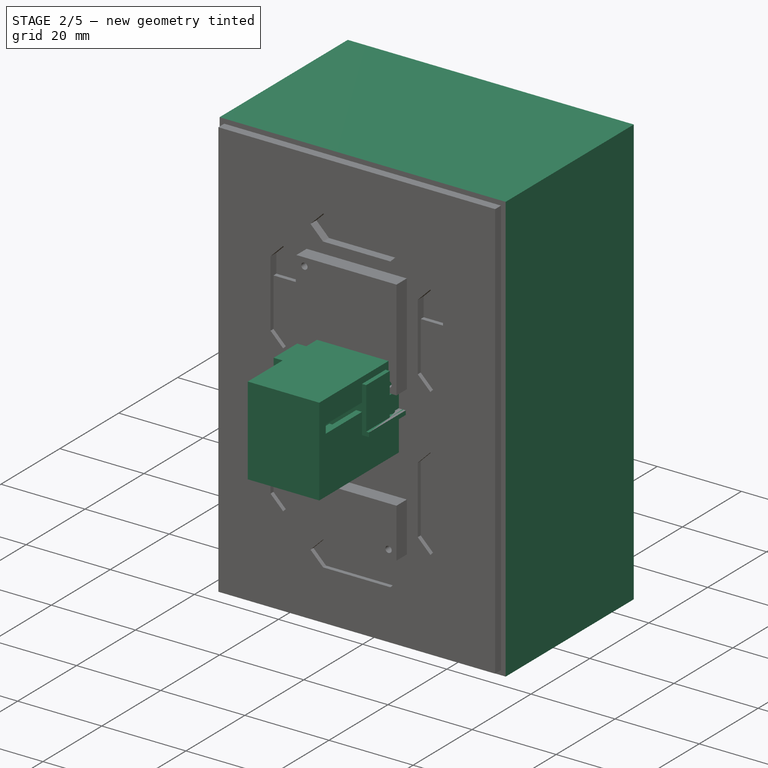
[diagram: stage 2 of 5 — iso view after this stage's code; geometry added in this stage tinted green]
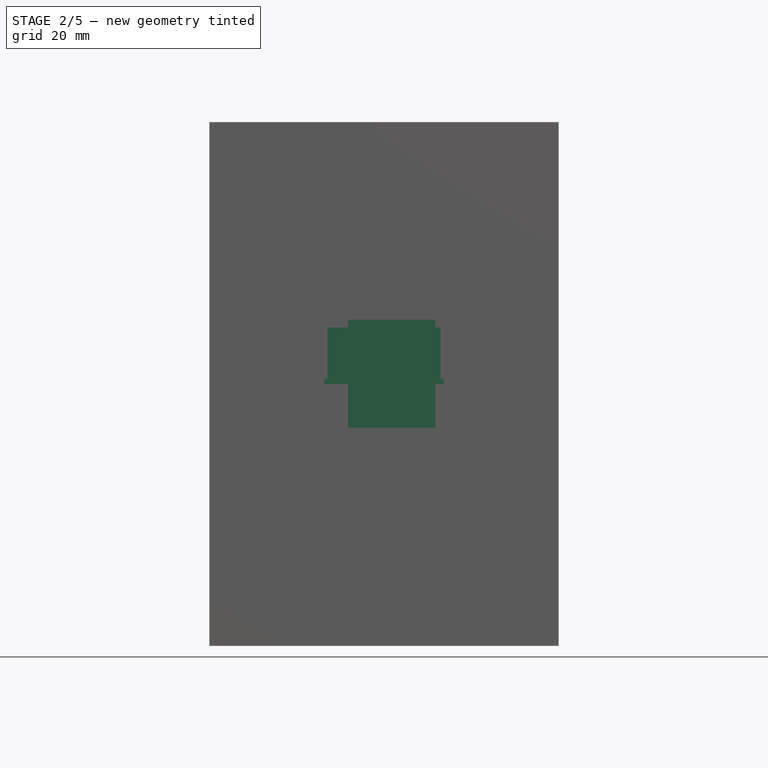
[diagram: stage 2 of 5 — front view after this stage's code; geometry added in this stage tinted green]
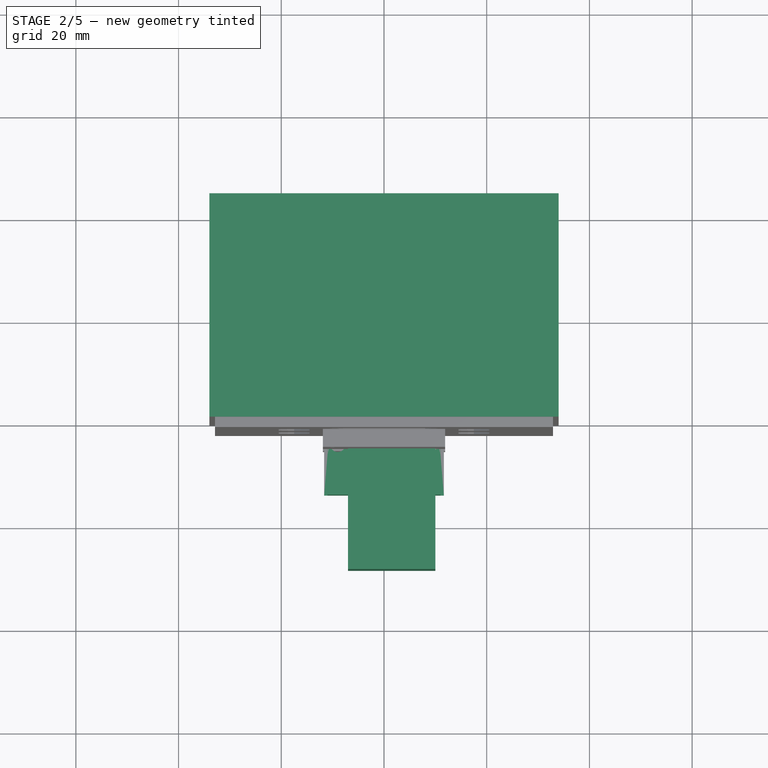
[diagram: stage 2 of 5 — top view after this stage's code; geometry added in this stage tinted green]
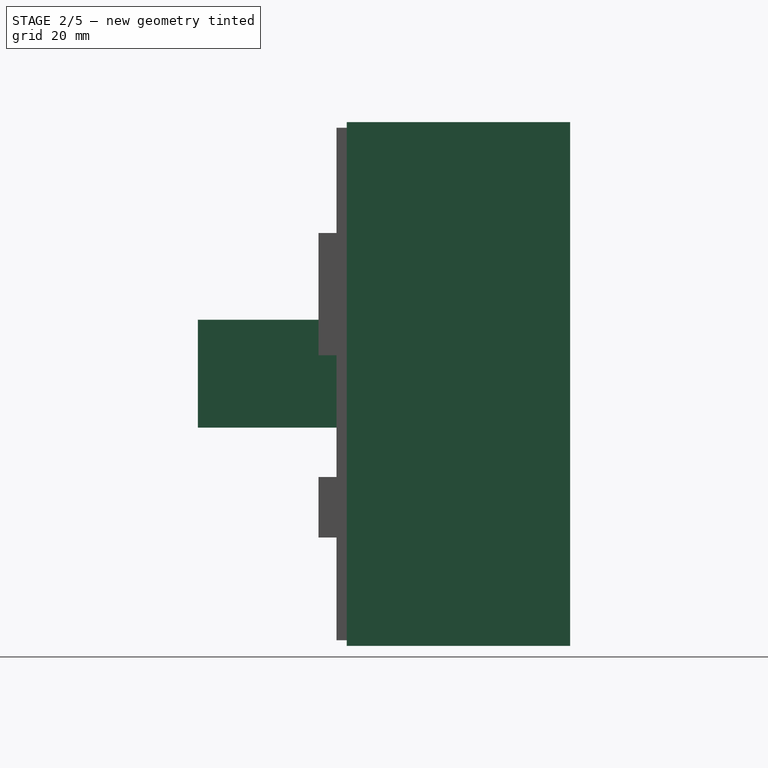
[diagram: stage 2 of 5 — right view after this stage's code; geometry added in this stage tinted green]
FEATURE [PartDesign::Body] Body042  label="Coil004"
  Group = -> [Sketch230,Pad157,Sketch238,Pad158,Sketch231,Pad162,Sketch239,Pad169,Sketch234,Pad165]
  Origin = -> Origin064
  Placement = pos=(3.5,-13,0) rot=(0,0,1;0rad)
  Tip = -> Pad165
FEATURE [App::Part] Part021  label="Clock Parts004"
  Group = -> [Body043,Body042,Body045]
  Origin = -> Origin068
  Placement = pos=(0,1,0) rot=(0,0,1;0rad)
FEATURE [Sketcher::SketchObject] Sketch250
  FullyConstrained = false
  MapMode = 5
  Support = -> [XY_Plane076]
  sketch-geometry (4):
    g0: LineSegment StartX=-3.5 StartY=6.82831 StartZ=0 EndX=3.5 EndY=6.82831 EndZ=0
    g1: LineSegment StartX=3.5 StartY=6.82831 StartZ=0 EndX=3.5 EndY=-7.57169 EndZ=0
    g2: LineSegment StartX=3.5 StartY=-7.57169 StartZ=0 EndX=-3.5 EndY=-7.57169 EndZ=0
    g3: LineSegment StartX=-3.5 StartY=-7.57169 StartZ=0 EndX=-3.5 EndY=6.82831 EndZ=0
  constraints (9):
    c: Coincident(g0,g1)
    c: Coincident(g1,g2)
    c: Coincident(g2,g3)
    c: Coincident(g3,g0)
    c: Vertical(g3)
    c: DistanceY(g1,g1) = 14.4
    c: DistanceX(g2,g2) = 7
    c: Symmetric(g0,g0,g-2)
    c: Horizontal(g2)
FEATURE [PartDesign::Pad] Pad172
  Direction = (1,1,1)
  Length = 6
  Length2 = 100
  Midplane = true
  Profile = -> Sketch250
  Type = 0
FEATURE [Sketcher::SketchObject] Sketch257
  FullyConstrained = false
  MapMode = 5
  Support = -> [XY_Plane072]
  sketch-geometry (24):
    g0: LineSegment StartX=5.55 StartY=4.4 StartZ=0 EndX=5.55 EndY=-24.8 EndZ=0
    g1: LineSegment StartX=5.55 StartY=-24.8 StartZ=0 EndX=-5.55 EndY=-24.8 EndZ=0
    g2: LineSegment StartX=-5.55 StartY=-24.8 StartZ=0 EndX=-5.55 EndY=4.4 EndZ=0
    g3: LineSegment StartX=-5.55 StartY=4.4 StartZ=0 EndX=-1.65 EndY=4.4 EndZ=0
    g4: LineSegment StartX=-1.65 StartY=4.4 StartZ=0 EndX=-1.65 EndY=2.85788 EndZ=0
    g5: LineSegment StartX=-1.66888 StartY=-7.8506 StartZ=0 EndX=-2.25 EndY=-8.61046 EndZ=0
    g6: LineSegment StartX=-2.25 StartY=-8.61046 StartZ=0 EndX=-2.25 EndY=-20.65 EndZ=0
    g7: LineSegment StartX=-2.25 StartY=-20.65 StartZ=0 EndX=2.25 EndY=-20.65 EndZ=0
    g8: LineSegment StartX=1.66888 StartY=-7.87451 StartZ=0 EndX=1.66888 EndY=-2.8469 EndZ=0
    g9: LineSegment StartX=1.65 StartY=4.4 StartZ=0 EndX=5.55 EndY=4.4 EndZ=0
    g10: ArcOfCircle CenterX=2e-16 CenterY=-2e-16 CenterZ=0 NormalX=0 NormalY=0 NormalZ=1 AngleXU=0 Radius=3.3 StartAngle=2.0944 EndAngle=2.45182
    g11: ArcOfCircle CenterX=2e-16 CenterY=-2e-16 CenterZ=0 NormalX=0 NormalY=0 NormalZ=1 AngleXU=0 Radius=4.5 StartAngle=2.65607 EndAngle=3.62711
    g12: LineSegment StartX=-3.97995 StartY=2.1 StartZ=0 EndX=-2.54558 EndY=2.1 EndZ=0
    g13: LineSegment StartX=-3.97995 StartY=-2.1 StartZ=0 EndX=-2.54558 EndY=-2.1 EndZ=0
    g14: LineSegment StartX=2.54558 StartY=2.1 StartZ=0 EndX=3.97995 EndY=2.1 EndZ=0
    g15: ArcOfCircle CenterX=2e-16 CenterY=-2e-16 CenterZ=0 NormalX=0 NormalY=0 NormalZ=1 AngleXU=0 Radius=3.3 StartAngle=3.83137 EndAngle=4.18217
    g16: ArcOfCircle CenterX=-0.000102365 CenterY=0.000124091 CenterZ=0 NormalX=0 NormalY=0 NormalZ=1 AngleXU=0 Radius=3.3 StartAngle=0.689726 EndAngle=1.04716
    g17: LineSegment StartX=2.54558 StartY=-2.1 StartZ=0 EndX=3.97995 EndY=-2.1 EndZ=0
    g18: ArcOfCircle CenterX=4e-16 CenterY=0 CenterZ=0 NormalX=0 NormalY=0 NormalZ=1 AngleXU=0 Radius=4.5 StartAngle=5.79767 EndAngle=6.7687
    g19: LineSegment StartX=1.65 StartY=2.85795 StartZ=0 EndX=1.65 EndY=4.4 EndZ=0
    g20: LineSegment StartX=-1.66888 StartY=-2.8469 StartZ=0 EndX=-1.66888 EndY=-7.8506 EndZ=0
    g21: ArcOfCircle CenterX=0.000105409 CenterY=-0.000123728 CenterZ=0 NormalX=0 NormalY=0 NormalZ=1 AngleXU=0 Radius=3.29984 StartAngle=5.2426 EndAngle=5.59342
    g22: LineSegment StartX=2.25 StartY=-8.61046 StartZ=0 EndX=2.25 EndY=-20.65 EndZ=0
    g23: LineSegment StartX=1.66888 StartY=-7.87451 StartZ=0 EndX=2.25 EndY=-8.61046 EndZ=0
  constraints (60):
    c: Vertical(g0)
    c: Coincident(g0,g1)
    c: Horizontal(g1)
    c: Coincident(g1,g2)
    c: Vertical(g2)
    c: Coincident(g2,g3)
    c: Horizontal(g3)
    c: Coincident(g3,g4)
    c: Vertical(g4)
    c: Coincident(g20,g5)
    c: Coincident(g5,g6)
    c: Vertical(g6)
    c: Coincident(g6,g7)
    c: Coincident(g19,g9)
    c: Coincident(g9,g0)
    c: Coincident(g11,g10)
    c: Radius(g10) = 3.3
    c: Radius(g11) = 4.5
    c: Horizontal(g12)
    c: Horizontal(g13)
    c: PointOnObject(g14,g10)
    c: Coincident(g18,g14)
    c: Coincident(g11,g12)
    c: Equal(g10,g15)
    c: Coincident(g10,g12)
    c: Coincident(g10,g15)
    c: Equal(g15,g16)
    c: Symmetric(g0,g2,g-2)
    c: Coincident(g23,g22)
    c: Vertical(g22)
    c: Coincident(g22,g7)
    c: Symmetric(g7,g6,g-2)
    c: DistanceX(g0) = 5.55
    c: DistanceY(g0) = -24.8
    c: Vertical(g19)
    c: Vertical(g8)
    c: Vertical(g20)
    c: Symmetric(g3,g9,g-2)
    c: DistanceX(g9) = 1.65
    c: DistanceY(g9) = 4.4
    c: DistanceX(g7) = 2.25
    c: DistanceY(g7) = -20.65
    c: Coincident(g10,g4)
    c: Coincident(g16,g19)
    c: Coincident(g14,g16)
    c: Coincident(g17,g18)
    c: Coincident(g11,g13)
    c: Coincident(g13,g15)
    c: Coincident(g17,g21)
    c: Coincident(g8,g21)
    c: Coincident(g15,g20)
    c: Symmetric(g14,g17,g-1)
    c: Symmetric(g10,g13,g-1)
    c: Coincident(g8,g23)
    c: DistanceY(g17,g14) = 4.2
    c: Symmetric(g13,g17,g-2)
    c: Radius(g18) = 4.5
    c: Symmetric(g14,g11,g-2)
    c: Symmetric(g17,g11,g-2)
    c: Symmetric(g8,g15,g-2)
FEATURE [PartDesign::Pad] Pad170
  Direction = (1,1,1)
  Length = 0.8
  Length2 = 100
  Midplane = true
  Profile = -> Sketch257
  Type = 0
FEATURE [PartDesign::Body] Body050  label="Segment_Wing005"
  Group = -> [Sketch261,Pad181]
  Origin = -> Origin077
  Placement = pos=(0,0,-9) rot=(0,0,1;0rad)
  Tip = -> Pad181
FEATURE [PartDesign::Body] Body051  label="Magnet005"
  Group = -> [Sketch254,Pad174]
  Origin = -> Origin078
  Tip = -> Pad174
FEATURE [PartDesign::Body] Body052  label="Coil005"
  Group = -> [Sketch250,Pad172,Sketch256,Pad182,Sketch253,Pad175,Sketch260,Pad171,Sketch251,Pad183]
  Origin = -> Origin075
  Placement = pos=(3.5,-13,0) rot=(0,0,1;0rad)
  Tip = -> Pad183
FEATURE [PartDesign::Body] Body053  label="Plate005"
  Group = -> [Sketch257,Pad170]
  Origin = -> Origin070
  Tip = -> Pad170
FEATURE [App::Part] Part023  label="Clock Parts005"
  Group = -> [Body053,Body052,Body051]
  Origin = -> Origin080
  Placement = pos=(0,1,0) rot=(0,0,1;0rad)
FEATURE [Sketcher::SketchObject] Sketch263
  FullyConstrained = true
  MapMode = 5
  sketch-geometry (4):
    g0: LineSegment StartX=-2 StartY=8 StartZ=0 EndX=2 EndY=8 EndZ=0
    g1: LineSegment StartX=2 StartY=8 StartZ=0 EndX=2 EndY=4 EndZ=0
    g2: LineSegment StartX=2 StartY=4 StartZ=0 EndX=-2 EndY=4 EndZ=0
    g3: LineSegment StartX=-2 StartY=4 StartZ=0 EndX=-2 EndY=8 EndZ=0
  constraints (11):
    c: Coincident(g0,g1)
    c: Coincident(g1,g2)
    c: Coincident(g2,g3)
    c: Coincident(g3,g0)
    c: Horizontal(g0)
    c: Vertical(g3)
    c: Symmetric(g2,g1,g-2)
    c: DistanceY(g1,g1) = 4
    c: DistanceX(g2,g2) = 4
    c: Vertical(g1)
    c: DistanceY(g-1,g1) = 4
FEATURE [PartDesign::Pad] Pad177
  Direction = (1,1,1)
  Length = 13.5
  Length2 = 100
  Profile = -> Sketch263
  Type = 0
FEATURE [PartDesign::Body] Body049  label="Pin005"
  Group = -> [Sketch267,Pad179,Sketch255,Pad180]
  Origin = -> Origin072
  Placement = pos=(0,0,2) rot=(0,0,1;0rad)
  Tip = -> Pad180
FEATURE [Sketcher::SketchObject] Sketch269
  FullyConstrained = false
  MapMode = 5
  Support = -> [XY_Plane088]
  sketch-geometry (4):
    g0: LineSegment StartX=-3.5 StartY=6.82831 StartZ=0 EndX=3.5 EndY=6.82831 EndZ=0
    g1: LineSegment StartX=3.5 StartY=6.82831 StartZ=0 EndX=3.5 EndY=-7.57169 EndZ=0
    g2: LineSegment StartX=3.5 StartY=-7.57169 StartZ=0 EndX=-3.5 EndY=-7.57169 EndZ=0
    g3: LineSegment StartX=-3.5 StartY=-7.57169 StartZ=0 EndX=-3.5 EndY=6.82831 EndZ=0
  constraints (9):
    c: Coincident(g0,g1)
    c: Coincident(g1,g2)
    c: Coincident(g2,g3)
    c: Coincident(g3,g0)
    c: Vertical(g3)
    c: DistanceY(g1,g1) = 14.4
    c: DistanceX(g2,g2) = 7
    c: Symmetric(g0,g0,g-2)
    c: Horizontal(g2)
FEATURE [PartDesign::Pad] Pad186
  Direction = (1,1,1)
  Length = 6
  Length2 = 100
  Midplane = true
  Profile = -> Sketch269
  Type = 0
FEATURE [Sketcher::SketchObject] Sketch273
  FullyConstrained = true
  MapMode = 5
  Support = -> [XY_Plane090]
  sketch-geometry (2):
    g0: Circle CenterX=0 CenterY=0 CenterZ=0 NormalX=0 NormalY=0 NormalZ=1 AngleXU=0 Radius=1.025
    g1: Circle CenterX=0 CenterY=0 CenterZ=0 NormalX=0 NormalY=0 NormalZ=1 AngleXU=0 Radius=2.5
  constraints (4):
    c: Coincident(g0,g-1)
    c: Coincident(g1,g0)
    c: Radius(g1) = 2.5
    c: Radius(g0) = 1.025
FEATURE [PartDesign::Pad] Pad188
  Direction = (1,1,1)
  Length = 2.4
  Length2 = 100
  Midplane = true
  Profile = -> Sketch273
  Type = 0
FEATURE [Sketcher::SketchObject] Sketch275
  ExternalGeometry = -> [Pad186]
  FullyConstrained = false
  MapMode = 5
  Placement = pos=(0,-7.57169,0) rot=(1,0,0;1.5708rad)
  Support = -> [Pad186]
  sketch-geometry (4):
    g0: LineSegment StartX=-5 StartY=3.5 StartZ=0 EndX=5 EndY=3.5 EndZ=0
    g1: LineSegment StartX=5 StartY=3.5 StartZ=0 EndX=5 EndY=-3.5 EndZ=0
    g2: LineSegment StartX=5 StartY=-3.5 StartZ=0 EndX=-5 EndY=-3.5 EndZ=0
    g3: LineSegment StartX=-5 StartY=-3.5 StartZ=0 EndX=-5 EndY=3.5 EndZ=0
  constraints (10):
    c: Coincident(g0,g1)
    c: Coincident(g1,g2)
    c: Coincident(g2,g3)
    c: Coincident(g3,g0)
    c: Horizontal(g0)
    c: Vertical(g1)
    c: Vertical(g3)
    c: DistanceY(g1,g1) = 7
    c: DistanceX(g2,g2) = 10
    c: Symmetric(g2,g1,g-2)
FEATURE [PartDesign::Pad] Pad196
  BaseFeature = -> Pad186
  Direction = (1,1,1)
  Length = 1
  Length2 = 100
  Profile = -> Sketch275
  Type = 0
FEATURE [Sketcher::SketchObject] Sketch272
  ExternalGeometry = -> [Pad196]
  FullyConstrained = false
  MapMode = 5
  Placement = pos=(0,6.82831,0) rot=(0,0.707107,0.707107;3.14159rad)
  Support = -> [Pad196]
  sketch-geometry (4):
    g0: LineSegment StartX=-5 StartY=3.5 StartZ=0 EndX=5 EndY=3.5 EndZ=0
    g1: LineSegment StartX=5 StartY=3.5 StartZ=0 EndX=5 EndY=-3.5 EndZ=0
    g2: LineSegment StartX=5 StartY=-3.5 StartZ=0 EndX=-5 EndY=-3.5 EndZ=0
    g3: LineSegment StartX=-5 StartY=-3.5 StartZ=0 EndX=-5 EndY=3.5 EndZ=0
  constraints (10):
    c: Coincident(g0,g1)
    c: Coincident(g1,g2)
    c: Coincident(g2,g3)
    c: Coincident(g3,g0)
    c: Horizontal(g0)
    c: Vertical(g1)
    c: Vertical(g3)
    c: DistanceY(g3,g3) = 7
    c: DistanceX(g2,g2) = 10
    c: Symmetric(g1,g2,g-2)
FEATURE [PartDesign::Pad] Pad189
  BaseFeature = -> Pad196
  Direction = (1,1,1)
  Length = 1
  Length2 = 100
  Profile = -> Sketch272
  Type = 0
FEATURE [Sketcher::SketchObject] Sketch276
  FullyConstrained = false
  MapMode = 5
  Support = -> [XY_Plane084]
  sketch-geometry (24):
    g0: LineSegment StartX=5.55 StartY=4.4 StartZ=0 EndX=5.55 EndY=-24.8 EndZ=0
    g1: LineSegment StartX=5.55 StartY=-24.8 StartZ=0 EndX=-5.55 EndY=-24.8 EndZ=0
    g2: LineSegment StartX=-5.55 StartY=-24.8 StartZ=0 EndX=-5.55 EndY=4.4 EndZ=0
    g3: LineSegment StartX=-5.55 StartY=4.4 StartZ=0 EndX=-1.65 EndY=4.4 EndZ=0
    g4: LineSegment StartX=-1.65 StartY=4.4 StartZ=0 EndX=-1.65 EndY=2.85788 EndZ=0
    g5: LineSegment StartX=-1.66888 StartY=-7.8506 StartZ=0 EndX=-2.25 EndY=-8.61046 EndZ=0
    g6: LineSegment StartX=-2.25 StartY=-8.61046 StartZ=0 EndX=-2.25 EndY=-20.65 EndZ=0
    g7: LineSegment StartX=-2.25 StartY=-20.65 StartZ=0 EndX=2.25 EndY=-20.65 EndZ=0
    g8: LineSegment StartX=1.66888 StartY=-7.87451 StartZ=0 EndX=1.66888 EndY=-2.8469 EndZ=0
    g9: LineSegment StartX=1.65 StartY=4.4 StartZ=0 EndX=5.55 EndY=4.4 EndZ=0
    g10: ArcOfCircle CenterX=2e-16 CenterY=-2e-16 CenterZ=0 NormalX=0 NormalY=0 NormalZ=1 AngleXU=0 Radius=3.3 StartAngle=2.0944 EndAngle=2.45182
    g11: ArcOfCircle CenterX=2e-16 CenterY=-2e-16 CenterZ=0 NormalX=0 NormalY=0 NormalZ=1 AngleXU=0 Radius=4.5 StartAngle=2.65607 EndAngle=3.62711
    g12: LineSegment StartX=-3.97995 StartY=2.1 StartZ=0 EndX=-2.54558 EndY=2.1 EndZ=0
    g13: LineSegment StartX=-3.97995 StartY=-2.1 StartZ=0 EndX=-2.54558 EndY=-2.1 EndZ=0
    g14: LineSegment StartX=2.54558 StartY=2.1 StartZ=0 EndX=3.97995 EndY=2.1 EndZ=0
    g15: ArcOfCircle CenterX=2e-16 CenterY=-2e-16 CenterZ=0 NormalX=0 NormalY=0 NormalZ=1 AngleXU=0 Radius=3.3 StartAngle=3.83137 EndAngle=4.18217
    g16: ArcOfCircle CenterX=-0.000102365 CenterY=0.000124091 CenterZ=0 NormalX=0 NormalY=0 NormalZ=1 AngleXU=0 Radius=3.3 StartAngle=0.689726 EndAngle=1.04716
    g17: LineSegment StartX=2.54558 StartY=-2.1 StartZ=0 EndX=3.97995 EndY=-2.1 EndZ=0
    g18: ArcOfCircle CenterX=4e-16 CenterY=0 CenterZ=0 NormalX=0 NormalY=0 NormalZ=1 AngleXU=0 Radius=4.5 StartAngle=5.79767 EndAngle=6.7687
    g19: LineSegment StartX=1.65 StartY=2.85795 StartZ=0 EndX=1.65 EndY=4.4 EndZ=0
    g20: LineSegment StartX=-1.66888 StartY=-2.8469 StartZ=0 EndX=-1.66888 EndY=-7.8506 EndZ=0
    g21: ArcOfCircle CenterX=0.000105409 CenterY=-0.000123728 CenterZ=0 NormalX=0 NormalY=0 NormalZ=1 AngleXU=0 Radius=3.29984 StartAngle=5.2426 EndAngle=5.59342
    g22: LineSegment StartX=2.25 StartY=-8.61046 StartZ=0 EndX=2.25 EndY=-20.65 EndZ=0
    g23: LineSegment StartX=1.66888 StartY=-7.87451 StartZ=0 EndX=2.25 EndY=-8.61046 EndZ=0
  constraints (60):
    c: Vertical(g0)
    c: Coincident(g0,g1)
    c: Horizontal(g1)
    c: Coincident(g1,g2)
    c: Vertical(g2)
    c: Coincident(g2,g3)
    c: Horizontal(g3)
    c: Coincident(g3,g4)
    c: Vertical(g4)
    c: Coincident(g20,g5)
    c: Coincident(g5,g6)
    c: Vertical(g6)
    c: Coincident(g6,g7)
    c: Coincident(g19,g9)
    c: Coincident(g9,g0)
    c: Coincident(g11,g10)
    c: Radius(g10) = 3.3
    c: Radius(g11) = 4.5
    c: Horizontal(g12)
    c: Horizontal(g13)
    c: PointOnObject(g14,g10)
    c: Coincident(g18,g14)
    c: Coincident(g11,g12)
    c: Equal(g10,g15)
    c: Coincident(g10,g12)
    c: Coincident(g10,g15)
    c: Equal(g15,g16)
    c: Symmetric(g0,g2,g-2)
    c: Coincident(g23,g22)
    c: Vertical(g22)
    c: Coincident(g22,g7)
    c: Symmetric(g7,g6,g-2)
    c: DistanceX(g0) = 5.55
    c: DistanceY(g0) = -24.8
    c: Vertical(g19)
    c: Vertical(g8)
    c: Vertical(g20)
    c: Symmetric(g3,g9,g-2)
    c: DistanceX(g9) = 1.65
    c: DistanceY(g9) = 4.4
    c: DistanceX(g7) = 2.25
    c: DistanceY(g7) = -20.65
    c: Coincident(g10,g4)
    c: Coincident(g16,g19)
    c: Coincident(g14,g16)
    c: Coincident(g17,g18)
    c: Coincident(g11,g13)
    c: Coincident(g13,g15)
    c: Coincident(g17,g21)
    c: Coincident(g8,g21)
    c: Coincident(g15,g20)
    c: Symmetric(g14,g17,g-1)
    c: Symmetric(g10,g13,g-1)
    c: Coincident(g8,g23)
    c: DistanceY(g17,g14) = 4.2
    c: Symmetric(g13,g17,g-2)
    c: Radius(g18) = 4.5
    c: Symmetric(g14,g11,g-2)
    c: Symmetric(g17,g11,g-2)
    c: Symmetric(g8,g15,g-2)
FEATURE [PartDesign::Pad] Pad184
  Direction = (1,1,1)
  Length = 0.8
  Length2 = 100
  Midplane = true
  Profile = -> Sketch276
  Type = 0
FEATURE [Sketcher::SketchObject] Sketch279
  ExternalGeometry = -> [Pad189]
  FullyConstrained = false
  MapMode = 5
  Support = -> [XY_Plane088]
  sketch-geometry (8):
    g0: ArcOfCircle CenterX=-2.53973 CenterY=-9.54527 CenterZ=0 NormalX=0 NormalY=0 NormalZ=1 AngleXU=0 Radius=1 StartAngle=3.14159 EndAngle=6.28319
    g1: LineSegment StartX=-3.53973 StartY=-8.57169 StartZ=0 EndX=-3.53973 EndY=-9.54527 EndZ=0
    g2: LineSegment StartX=-1.53973 StartY=-8.57169 StartZ=0 EndX=-1.53973 EndY=-9.54527 EndZ=0
    g3: LineSegment StartX=-3.53973 StartY=-8.57169 StartZ=0 EndX=-1.53973 EndY=-8.57169 EndZ=0
    g4: ArcOfCircle CenterX=2.53973 CenterY=-9.54527 CenterZ=0 NormalX=0 NormalY=0 NormalZ=1 AngleXU=0 Radius=1 StartAngle=3.14159 EndAngle=6.28319
    g5: LineSegment StartX=3.53973 StartY=-8.57169 StartZ=0 EndX=3.53973 EndY=-9.54527 EndZ=0
    g6: LineSegment StartX=1.53973 StartY=-8.57169 StartZ=0 EndX=1.53973 EndY=-9.54527 EndZ=0
    g7: LineSegment StartX=3.53973 StartY=-8.57169 StartZ=0 EndX=1.53973 EndY=-8.57169 EndZ=0
  constraints (17):
    c: Tangent(g1,g0) = -1.5708
    c: Tangent(g2,g0) = 1.5708
    c: Vertical(g1)
    c: Coincident(g3,g1)
    c: Coincident(g3,g2)
    c: Horizontal(g3)
    c: Vertical(g2)
    c: Radius(g0) = 1
    c: PointOnObject(g1,g-3)
    c: Tangent(g5,g4) = 1.5708
    c: Tangent(g6,g4) = -1.5708
    c: Vertical(g5)
    c: Coincident(g7,g5)
    c: Coincident(g7,g6)
    c: Horizontal(g7)
    c: Vertical(g6)
    c: Radius(g4) = 1
FEATURE [PartDesign::Pad] Pad185
  BaseFeature = -> Pad189
  Direction = (1,1,1)
  Length = 2.3
  Length2 = 100
  Profile = -> Sketch279
  Type = 0
FEATURE [Sketcher::SketchObject] Sketch270
  FullyConstrained = false
  MapMode = 5
  Placement = pos=(0,0,2.3) rot=(0,0,1;0rad)
  Support = -> [Pad185]
  sketch-geometry (2):
    g0: Circle CenterX=-2.5 CenterY=-9.38461 CenterZ=0 NormalX=0 NormalY=0 NormalZ=1 AngleXU=0 Radius=0.35
    g1: Circle CenterX=2.5 CenterY=-9.38461 CenterZ=0 NormalX=0 NormalY=0 NormalZ=1 AngleXU=0 Radius=0.35
  constraints (4):
    c: Symmetric(g1,g0,g-2)
    c: Radius(g1) = 0.35
    c: Equal(g1,g0)
    c: DistanceX(g0,g1) = 5
FEATURE [PartDesign::Pad] Pad197
  BaseFeature = -> Pad185
  Direction = (1,1,1)
  Length = 3
  Length2 = 100
  Profile = -> Sketch270
  Type = 0
FEATURE [Sketcher::SketchObject] Sketch280
  FullyConstrained = true
  MapMode = 5
  Support = -> [XY_Plane083]
  sketch-geometry (4):
    g0: ArcOfCircle CenterX=0 CenterY=0 CenterZ=0 NormalX=0 NormalY=0 NormalZ=1 AngleXU=0 Radius=11.3 StartAngle=1.44862 EndAngle=2.40855
    g1: ArcOfCircle CenterX=0 CenterY=0 CenterZ=0 NormalX=0 NormalY=0 NormalZ=1 AngleXU=0 Radius=12 StartAngle=1.44862 EndAngle=2.40855
    g2: LineSegment StartX=-8.39754 StartY=7.56118 StartZ=0 EndX=-8.91774 EndY=8.02957 EndZ=0
    g3: LineSegment StartX=1.37712 StartY=11.2158 StartZ=0 EndX=1.46243 EndY=11.9106 EndZ=0
  constraints (12):
    c: Coincident(g0,g-1)
    c: Coincident(g1,g0)
    c: Radius(g0) = 11.3
    c: Radius(g1) = 12
    c: Coincident(g3,g1)
    c: Coincident(g3,g0)
    c: Coincident(g2,g0)
    c: Coincident(g2,g1)
    c: Angle(g-1,g3) = 1.44862
    c: Angle(g-1,g2) = 2.40855
    c: PointOnObject(g0,g2)
    c: PointOnObject(g0,g3)
FEATURE [PartDesign::Pad] Pad195
  Direction = (1,1,1)
  Length = 22
  Length2 = 100
  Profile = -> Sketch280
  Type = 0
FEATURE [PartDesign::Body] Body058  label="Segment_Wing006"
  Group = -> [Sketch280,Pad195]
  Origin = -> Origin089
  Placement = pos=(0,0,-9) rot=(0,0,1;0rad)
  Tip = -> Pad195
FEATURE [PartDesign::Body] Body059  label="Magnet006"
  Group = -> [Sketch273,Pad188]
  Origin = -> Origin090
  Tip = -> Pad188
FEATURE [PartDesign::Body] Body060  label="Coil006"
  Group = -> [Sketch269,Pad186,Sketch275,Pad196,Sketch272,Pad189,Sketch279,Pad185,Sketch270,Pad197]
  Origin = -> Origin087
  Placement = pos=(3.5,-13,0) rot=(0,0,1;0rad)
  Tip = -> Pad197
FEATURE [PartDesign::Body] Body061  label="Plate006"
  Group = -> [Sketch276,Pad184]
  Origin = -> Origin082
  Tip = -> Pad184
FEATURE [App::Part] Part027  label="Clock Parts006"
  Group = -> [Body061,Body060,Body059]
  Origin = -> Origin092
  Placement = pos=(0,1,0) rot=(0,0,1;0rad)
FEATURE [Sketcher::SketchObject] Sketch282
  FullyConstrained = true
  MapMode = 5
  sketch-geometry (4):
    g0: LineSegment StartX=-2 StartY=8 StartZ=0 EndX=2 EndY=8 EndZ=0
    g1: LineSegment StartX=2 StartY=8 StartZ=0 EndX=2 EndY=4 EndZ=0
    g2: LineSegment StartX=2 StartY=4 StartZ=0 EndX=-2 EndY=4 EndZ=0
    g3: LineSegment StartX=-2 StartY=4 StartZ=0 EndX=-2 EndY=8 EndZ=0
  constraints (11):
    c: Coincident(g0,g1)
    c: Coincident(g1,g2)
    c: Coincident(g2,g3)
    c: Coincident(g3,g0)
    c: Horizontal(g0)
    c: Vertical(g3)
    c: Symmetric(g2,g1,g-2)
    c: DistanceY(g1,g1) = 4
    c: DistanceX(g2,g2) = 4
    c: Vertical(g1)
    c: DistanceY(g-1,g1) = 4
FEATURE [PartDesign::Pad] Pad191
  Direction = (1,1,1)
  Length = 13.5
  Length2 = 100
  Profile = -> Sketch282
  Type = 0
FEATURE [Sketcher::SketchObject] Sketch284
  FullyConstrained = true
  MapMode = 5
  Placement = pos=(0,8,0) rot=(0,0.707107,0.707107;3.14159rad)
  Support = -> [Pad191]
  sketch-geometry (9):
    g0: Circle CenterX=0 CenterY=11.5 CenterZ=0 NormalX=0 NormalY=0 NormalZ=1 AngleXU=0 Radius=0.45
    g1: LineSegment StartX=-2 StartY=9.5 StartZ=0 EndX=-1.2 EndY=9.5 EndZ=0
    g2: LineSegment StartX=-1.2 StartY=9.5 StartZ=0 EndX=-1.2 EndY=0 EndZ=0
    g3: LineSegment StartX=-1.2 StartY=0 StartZ=0 EndX=-2 EndY=0 EndZ=0
    g4: LineSegment StartX=-2 StartY=0 StartZ=0 EndX=-2 EndY=9.5 EndZ=0
    g5: LineSegment StartX=2 StartY=9.5 StartZ=0 EndX=1.2 EndY=9.5 EndZ=0
    g6: LineSegment StartX=1.2 StartY=9.5 StartZ=0 EndX=1.2 EndY=0 EndZ=0
    g7: LineSegment StartX=1.2 StartY=0 StartZ=0 EndX=2 EndY=0 EndZ=0
    g8: LineSegment StartX=2 StartY=0 StartZ=0 EndX=2 EndY=9.5 EndZ=0
  constraints (27):
    c: PointOnObject(g0,g-2)
    c: DistanceY(g-1,g0) = 11.5
    c: Radius(g0) = 0.45
    c: Coincident(g1,g2)
    c: Coincident(g2,g3)
    c: Coincident(g3,g4)
    c: Coincident(g4,g1)
    c: Horizontal(g1)
    c: Horizontal(g3)
    c: Vertical(g2)
    c: Vertical(g4)
    c: PointOnObject(g2,g-1)
    c: DistanceX(g3,g-1) = 2
    c: DistanceX(g3,g3) = 0.8
    c: DistanceY(g4,g4) = 9.5
    c: Coincident(g5,g6)
    c: Coincident(g6,g7)
    c: Coincident(g7,g8)
    c: Coincident(g8,g5)
    c: Horizontal(g5)
    c: Horizontal(g7)
    c: Vertical(g6)
    c: Vertical(g8)
    c: DistanceY(g8,g8) = 9.5
    c: PointOnObject(g7,g-1)
    c: DistanceX(g7) = 2
    c: DistanceX(g7,g7) = 0.8
FEATURE [PartDesign::Pocket] Pocket040
  BaseFeature = -> Pad191
  Length = 5
  Length2 = 100
  Profile = -> Sketch284
  Type = 0
FEATURE [PartDesign::Body] Body055  label="Segment_Pole006"
  Group = -> [Sketch282,Sketch284,Pad191,Pocket040]
  Origin = -> Origin091
  Placement = pos=(0,11.5,2) rot=(1,0,0;1.5708rad)
  Tip = -> Pocket040
FEATURE [Part::MultiFuse] Fusion006  label="Segment_ON006"
  Placement = pos=(0,0,0) rot=(0,0,-1;0.506145rad)
  Shapes = -> [Body055,Body058]
FEATURE [Sketcher::SketchObject] Sketch285
  FullyConstrained = true
  MapMode = 5
  Placement = pos=(0,0,0) rot=(1,0,0;1.5708rad)
  Support = -> [XZ_Plane088]
  sketch-geometry (4):
    g0: LineSegment StartX=-7 StartY=12.5 StartZ=0 EndX=10 EndY=12.5 EndZ=0
    g1: LineSegment StartX=10 StartY=12.5 StartZ=0 EndX=10 EndY=-8.5 EndZ=0
    g2: LineSegment StartX=10 StartY=-8.5 StartZ=0 EndX=-7 EndY=-8.5 EndZ=0
    g3: LineSegment StartX=-7 StartY=-8.5 StartZ=0 EndX=-7 EndY=12.5 EndZ=0
  constraints (12):
    c: Coincident(g0,g1)
    c: Coincident(g1,g2)
    c: Coincident(g2,g3)
    c: Coincident(g3,g0)
    c: Horizontal(g0)
    c: Horizontal(g2)
    c: Vertical(g1)
    c: Vertical(g3)
    c: DistanceX(g0) = -7
    c: DistanceY(g0) = 12.5
    c: DistanceX(g1) = 10
    c: DistanceY(g1) = -8.5
FEATURE [PartDesign::Pad] Pad190
  Direction = (1,1,1)
  Length = 29
  Length2 = 100
  Placement = pos=(0,0,0) rot=(1,0,0;1.5708rad)
  Profile = -> Sketch285
  Type = 0
FEATURE [Sketcher::SketchObject] Sketch281
  ExternalGeometry = -> [Pad190]
  FullyConstrained = true
  MapMode = 5
  Placement = pos=(0,0,0) rot=(-1,0,0;1.5708rad)
  Support = -> [Pad190]
  sketch-geometry (4):
    g0: LineSegment StartX=-4.5 StartY=6.5 StartZ=0 EndX=8.6 EndY=6.5 EndZ=0
    g1: LineSegment StartX=8.6 StartY=6.5 StartZ=0 EndX=8.6 EndY=-10.5 EndZ=0
    g2: LineSegment StartX=8.6 StartY=-10.5 StartZ=0 EndX=-4.5 EndY=-10.5 EndZ=0
    g3: LineSegment StartX=-4.5 StartY=-10.5 StartZ=0 EndX=-4.5 EndY=6.5 EndZ=0
  constraints (12):
    c: Coincident(g0,g1)
    c: Coincident(g1,g2)
    c: Coincident(g2,g3)
    c: Coincident(g3,g0)
    c: Horizontal(g0)
    c: Horizontal(g2)
    c: Vertical(g1)
    c: Vertical(g3)
    c: DistanceX(g-3,g0) = 2.5
    c: DistanceY(g-3,g0) = -2
    c: DistanceX(g-4,g1) = -1.4
    c: DistanceY(g-4,g1) = 2
FEATURE [PartDesign::Pocket] Pocket037
  BaseFeature = -> Pad190
  Length = 25.7
  Length2 = 100
  Placement = pos=(0,0,0) rot=(1,0,0;1.5708rad)
  Profile = -> Sketch281
  Type = 0
FEATURE [Sketcher::SketchObject] Sketch268
  FullyConstrained = true
  MapMode = 5
  Placement = pos=(0,0,0) rot=(-1,0,0;1.5708rad)
  Support = -> [Pocket037]
  sketch-geometry (8):
    g0: LineSegment StartX=-5.75 StartY=0.6 StartZ=0 EndX=5.75 EndY=0.6 EndZ=0
    g1: LineSegment StartX=5.75 StartY=0.6 StartZ=0 EndX=5.75 EndY=-0.6 EndZ=0
    g2: LineSegment StartX=5.75 StartY=-0.6 StartZ=0 EndX=-5.75 EndY=-0.6 EndZ=0
    g3: LineSegment StartX=-5.75 StartY=-0.6 StartZ=0 EndX=-5.75 EndY=0.6 EndZ=0
    g4: LineSegment StartX=8.6 StartY=-5 StartZ=0 EndX=10 EndY=-5 EndZ=0
    g5: LineSegment StartX=10 StartY=-5 StartZ=0 EndX=10 EndY=-7 EndZ=0
    g6: LineSegment StartX=10 StartY=-7 StartZ=0 EndX=8.6 EndY=-7 EndZ=0
    g7: LineSegment StartX=8.6 StartY=-7 StartZ=0 EndX=8.6 EndY=-5 EndZ=0
  constraints (22):
    c: Coincident(g0,g1)
    c: Coincident(g1,g2)
    c: Coincident(g2,g3)
    c: Coincident(g3,g0)
    c: Horizontal(g2)
    c: Vertical(g3)
    c: Symmetric(g0,g0,g-2)
    c: Symmetric(g1,g0,g-1)
    c: DistanceX(g0,g0) = 11.5
    c: DistanceY(g3,g3) = 1.2
    c: Coincident(g4,g5)
    c: Coincident(g5,g6)
    c: Coincident(g6,g7)
    c: Coincident(g7,g4)
    c: Horizontal(g4)
    c: Horizontal(g6)
    c: Vertical(g5)
    c: Vertical(g7)
    c: DistanceX(g-1,g6) = 8.6
    c: DistanceX(g4,g4) = 1.4
    c: DistanceY(g4,g-1) = 5
    c: DistanceY(g5,g5) = 2
FEATURE [PartDesign::Pocket] Pocket039
  BaseFeature = -> Pocket037
  Length = 26.8
  Length2 = 100
  Placement = pos=(0,0,0) rot=(1,0,0;1.5708rad)
  Profile = -> Sketch268
  Type = 0
FEATURE [Sketcher::SketchObject] Sketch271
  FullyConstrained = true
  MapMode = 5
  Placement = pos=(0,-1.9e-15,-8.5) rot=(1,0,0;3.14159rad)
  Support = -> [Pocket039]
  sketch-geometry (1):
    g0: Circle CenterX=0 CenterY=2 CenterZ=0 NormalX=0 NormalY=0 NormalZ=1 AngleXU=0 Radius=0.6
  constraints (3):
    c: PointOnObject(g0,g-2)
    c: Radius(g0) = 0.6
    c: DistanceY(g-1,g0) = 2
FEATURE [PartDesign::Pocket] Pocket041
  BaseFeature = -> Pocket039
  Length = 50
  Length2 = 100
  Placement = pos=(0,0,0) rot=(1,0,0;1.5708rad)
  Profile = -> Sketch271
  Type = 0
FEATURE [Sketcher::SketchObject] Sketch278
  FullyConstrained = true
  MapMode = 5
  Placement = pos=(8.6,0,0) rot=(0.707107,0,0.707107;3.14159rad)
  Support = -> [Pocket041]
  sketch-geometry (4):
    g0: LineSegment StartX=-0.3 StartY=-7.5 StartZ=0 EndX=0.3 EndY=-7.5 EndZ=0
    g1: LineSegment StartX=0.3 StartY=-7.5 StartZ=0 EndX=0.3 EndY=-10.5 EndZ=0
    g2: LineSegment StartX=0.3 StartY=-10.5 StartZ=0 EndX=-0.3 EndY=-10.5 EndZ=0
    g3: LineSegment StartX=-0.3 StartY=-10.5 StartZ=0 EndX=-0.3 EndY=-7.5 EndZ=0
  constraints (11):
    c: Coincident(g0,g1)
    c: Coincident(g1,g2)
    c: Coincident(g2,g3)
    c: Coincident(g3,g0)
    c: Horizontal(g2)
    c: Vertical(g1)
    c: Vertical(g3)
    c: Symmetric(g0,g0,g-2)
    c: DistanceX(g0,g0) = 0.6
    c: DistanceY(g1,g-1) = 10.5
    c: DistanceY(g1,g1) = 3
FEATURE [PartDesign::Pocket] Pocket038
  BaseFeature = -> Pocket041
  Length = 2.5
  Length2 = 100
  Placement = pos=(0,0,0) rot=(1,0,0;1.5708rad)
  Profile = -> Sketch278
  Type = 0
FEATURE [PartDesign::Body] Body054  label="CaseBody006"
  Group = -> [Sketch285,Pad190,Sketch281,Pocket037,Sketch268,Pocket039,Sketch271,Pocket041,Sketch278,Pocket038]
  Origin = -> Origin086
  Tip = -> Pocket038
FEATURE [App::Part] Part026  label="Case006"
  Group = -> [Body054]
  Origin = -> Origin085
  Placement = pos=(0,3,0) rot=(0,0,1;0rad)
FEATURE [Sketcher::SketchObject] Sketch286
  FullyConstrained = true
  MapMode = 5
  Support = -> [XY_Plane093]
  sketch-geometry (1):
    g0: Circle CenterX=0 CenterY=0 CenterZ=0 NormalX=0 NormalY=0 NormalZ=1 AngleXU=0 Radius=0.375
  constraints (2):
    c: Coincident(g0,g-1)
    c: Radius(g0) = 0.375
FEATURE [PartDesign::Pad] Pad193
  Direction = (1,1,1)
  Length = 25
  Length2 = 100
  Midplane = true
  Profile = -> Sketch286
  Type = 0
FEATURE [Sketcher::SketchObject] Sketch274
  FullyConstrained = false
  MapMode = 5
  Placement = pos=(0,0,12.5) rot=(0,0,1;0rad)
  Support = -> [Pad193]
  sketch-geometry (1):
    g0: Circle CenterX=0 CenterY=0 CenterZ=0 NormalX=0 NormalY=0 NormalZ=1 AngleXU=0 Radius=0.742682
  constraints (1):
    c: Coincident(g0,g-1)
FEATURE [PartDesign::Pad] Pad194
  BaseFeature = -> Pad193
  Direction = (1,1,1)
  Length = 0.5
  Length2 = 100
  Profile = -> Sketch274
  Type = 0
FEATURE [PartDesign::Body] Body057  label="Pin006"
  Group = -> [Sketch286,Pad193,Sketch274,Pad194]
  Origin = -> Origin084
  Placement = pos=(0,0,2) rot=(0,0,1;0rad)
  Tip = -> Pad194
FEATURE [Sketcher::SketchObject] Sketch287
  FullyConstrained = true
  MapMode = 5
  Placement = pos=(0,0,0) rot=(1,0,0;1.5708rad)
  Support = -> [XZ_Plane094]
  sketch-geometry (4):
    g0: LineSegment StartX=-34 StartY=51 StartZ=0 EndX=34 EndY=51 EndZ=0
    g1: LineSegment StartX=34 StartY=51 StartZ=0 EndX=34 EndY=-51 EndZ=0
    g2: LineSegment StartX=34 StartY=-51 StartZ=0 EndX=-34 EndY=-51 EndZ=0
    g3: LineSegment StartX=-34 StartY=-51 StartZ=0 EndX=-34 EndY=51 EndZ=0
  constraints (10):
    c: Coincident(g0,g1)
    c: Coincident(g1,g2)
    c: Coincident(g2,g3)
    c: Coincident(g3,g0)
    c: Horizontal(g2)
    c: Vertical(g3)
    c: Symmetric(g0,g0,g-2)
    c: Symmetric(g1,g0,g-1)
    c: DistanceX(g0,g0) = 68
    c: DistanceY(g1,g1) = 102
FEATURE [PartDesign::Pad] Pad198
  Direction = (1,1,1)
  Length = 43.5
  Length2 = 100
  Placement = pos=(0,0,0) rot=(1,0,0;1.5708rad)
  Profile = -> Sketch287
  Reversed = true
  Type = 0
FEATURE [Sketcher::SketchObject] Sketch288
  FullyConstrained = true
  MapMode = 5
  Placement = pos=(0,43.5,-1.92e-14) rot=(-1,0,0;1.5708rad)
  Support = -> [Pad198]
  sketch-geometry (4):
    g0: LineSegment StartX=-32 StartY=49 StartZ=0 EndX=32 EndY=49 EndZ=0
    g1: LineSegment StartX=32 StartY=49 StartZ=0 EndX=32 EndY=-49 EndZ=0
    g2: LineSegment StartX=32 StartY=-49 StartZ=0 EndX=-32 EndY=-49 EndZ=0
    g3: LineSegment StartX=-32 StartY=-49 StartZ=0 EndX=-32 EndY=49 EndZ=0
  constraints (10):
    c: Coincident(g0,g1)
    c: Coincident(g1,g2)
    c: Coincident(g2,g3)
    c: Coincident(g3,g0)
    c: Horizontal(g2)
    c: Vertical(g3)
    c: Symmetric(g0,g0,g-2)
    c: Symmetric(g0,g1,g-1)
    c: DistanceX(g0,g0) = 64
    c: DistanceY(g1,g1) = 98
FEATURE [PartDesign::Pocket] Pocket042
  BaseFeature = -> Pad198
  Length = 41.5
  Length2 = 100
  Placement = pos=(0,0,0) rot=(1,0,0;1.5708rad)
  Profile = -> Sketch288
  Type = 0
FEATURE [Sketcher::SketchObject] Sketch289
  FullyConstrained = true
  MapMode = 5
  Placement = pos=(0,43.5,-1.92e-14) rot=(-1,0,0;1.5708rad)
  Support = -> [Pocket042]
  sketch-geometry (4):
    g0: LineSegment StartX=-33 StartY=50 StartZ=0 EndX=33 EndY=50 EndZ=0
    g1: LineSegment StartX=33 StartY=50 StartZ=0 EndX=33 EndY=-50 EndZ=0
    g2: LineSegment StartX=33 StartY=-50 StartZ=0 EndX=-33 EndY=-50 EndZ=0
    g3: LineSegment StartX=-33 StartY=-50 StartZ=0 EndX=-33 EndY=50 EndZ=0
  constraints (10):
    c: Coincident(g0,g1)
    c: Coincident(g1,g2)
    c: Coincident(g2,g3)
    c: Coincident(g3,g0)
    c: Horizontal(g0)
    c: Vertical(g1)
    c: Symmetric(g1,g2,g-2)
    c: Symmetric(g2,g0,g-1)
    c: DistanceX(g0,g0) = 66
    c: DistanceY(g1,g1) = 100
FEATURE [PartDesign::Pocket] Pocket043
  BaseFeature = -> Pocket042
  Length = 2
  Length2 = 100
  Placement = pos=(0,0,0) rot=(1,0,0;1.5708rad)
  Profile = -> Sketch289
  Type = 0
FEATURE [Sketcher::SketchObject] Sketch290
  FullyConstrained = false
  MapMode = 5
  Placement = pos=(0,2,-1.9e-15) rot=(-1,0,0;1.5708rad)
  Support = -> [Pocket043]
  sketch-geometry (124):
    g0: LineSegment StartX=27.6 StartY=24.5 StartZ=0 EndX=29.6 EndY=24.5 EndZ=0
    g1: LineSegment StartX=29.6 StartY=24.5 StartZ=0 EndX=29.6 EndY=15.5 EndZ=0
    g2: LineSegment StartX=29.6 StartY=15.5 StartZ=0 EndX=27.6 EndY=15.5 EndZ=0
    g3: LineSegment StartX=27.6 StartY=15.5 StartZ=0 EndX=27.6 EndY=24.5 EndZ=0
    g4: LineSegment StartX=27.6 StartY=-10.5 StartZ=0 EndX=29.6 EndY=-10.5 EndZ=0
    g5: LineSegment StartX=29.6 StartY=-10.5 StartZ=0 EndX=29.6 EndY=-19.5 EndZ=0
    g6: LineSegment StartX=29.6 StartY=-19.5 StartZ=0 EndX=27.6 EndY=-19.5 EndZ=0
    g7: LineSegment StartX=27.6 StartY=-19.5 StartZ=0 EndX=27.6 EndY=-10.5 EndZ=0
    g8: LineSegment StartX=8.4 StartY=25 StartZ=0 EndX=10.4 EndY=25 EndZ=0
    g9: LineSegment StartX=10.4 StartY=25 StartZ=0 EndX=10.4 EndY=13 EndZ=0
    g10: LineSegment StartX=10.4 StartY=13 StartZ=0 EndX=8.4 EndY=13 EndZ=0
    g11: LineSegment StartX=8.4 StartY=13 StartZ=0 EndX=8.4 EndY=25 EndZ=0
    g12: LineSegment StartX=8.4 StartY=-10.5 StartZ=0 EndX=10.4 EndY=-10.5 EndZ=0
    g13: LineSegment StartX=10.4 StartY=-10.5 StartZ=0 EndX=10.4 EndY=-24.5 EndZ=0
    g14: LineSegment StartX=10.4 StartY=-24.5 StartZ=0 EndX=8.4 EndY=-24.5 EndZ=0
    g15: LineSegment StartX=8.4 StartY=-24.5 StartZ=0 EndX=8.4 EndY=-10.5 EndZ=0
    g16: LineSegment StartX=10.6 StartY=6 StartZ=0 EndX=12.6 EndY=6 EndZ=0
    g17: LineSegment StartX=12.6 StartY=6 StartZ=0 EndX=12.6 EndY=-4 EndZ=0
    g18: LineSegment StartX=12.6 StartY=-4 StartZ=0 EndX=10.6 EndY=-4 EndZ=0
    g19: LineSegment StartX=10.6 StartY=-4 StartZ=0 EndX=10.6 EndY=6 EndZ=0
    g20: LineSegment StartX=10.6 StartY=43 StartZ=0 EndX=12.6 EndY=43 EndZ=0
    g21: LineSegment StartX=12.6 StartY=43 StartZ=0 EndX=12.6 EndY=33 EndZ=0
    g22: LineSegment StartX=12.6 StartY=33 StartZ=0 EndX=10.6 EndY=33 EndZ=0
    g23: LineSegment StartX=10.6 StartY=33 StartZ=0 EndX=10.6 EndY=43 EndZ=0
    g24: LineSegment StartX=0 StartY=47.1 StartZ=0 EndX=2 EndY=47.1 EndZ=0
    g25: LineSegment StartX=2 StartY=47.1 StartZ=0 EndX=2 EndY=45.1 EndZ=0
    g26: LineSegment StartX=2 StartY=45.1 StartZ=0 EndX=0 EndY=45.1 EndZ=0
    g27: LineSegment StartX=0 StartY=27.9 StartZ=0 EndX=7 EndY=27.9 EndZ=0
    g28: LineSegment StartX=7 StartY=27.9 StartZ=0 EndX=7 EndY=25.9 EndZ=0
    g29: LineSegment StartX=7 StartY=25.9 StartZ=0 EndX=0 EndY=25.9 EndZ=0
    g30: LineSegment StartX=0 StartY=12.1 StartZ=0 EndX=2 EndY=12.1 EndZ=0
    g31: LineSegment StartX=2 StartY=12.1 StartZ=0 EndX=2 EndY=10.1 EndZ=0
    g32: LineSegment StartX=2 StartY=10.1 StartZ=0 EndX=0 EndY=10.1 EndZ=0
    g33: LineSegment StartX=0 StartY=-7.1 StartZ=0 EndX=7 EndY=-7.1 EndZ=0
    g34: LineSegment StartX=7 StartY=-7.1 StartZ=0 EndX=7 EndY=-9.1 EndZ=0
    g35: LineSegment StartX=7 StartY=-9.1 StartZ=0 EndX=0 EndY=-9.1 EndZ=0
    g36: LineSegment StartX=0 StartY=-25.9 StartZ=0 EndX=7 EndY=-25.9 EndZ=0
    g37: LineSegment StartX=7 StartY=-25.9 StartZ=0 EndX=7 EndY=-27.9 EndZ=0
    g38: LineSegment StartX=7 StartY=-27.9 StartZ=0 EndX=0 EndY=-27.9 EndZ=0
    g39: LineSegment StartX=10.6 StartY=-32 StartZ=0 EndX=12.6 EndY=-32 EndZ=0
    g40: LineSegment StartX=12.6 StartY=-32 StartZ=0 EndX=12.6 EndY=-42 EndZ=0
    g41: LineSegment StartX=12.6 StartY=-42 StartZ=0 EndX=10.6 EndY=-42 EndZ=0
    g42: LineSegment StartX=10.6 StartY=-42 StartZ=0 EndX=10.6 EndY=-32 EndZ=0
    g43: LineSegment StartX=0 StartY=-45.1 StartZ=0 EndX=7 EndY=-45.1 EndZ=0
    g44: LineSegment StartX=7 StartY=-45.1 StartZ=0 EndX=7 EndY=-47.1 EndZ=0
    g45: LineSegment StartX=7 StartY=-47.1 StartZ=0 EndX=0 EndY=-47.1 EndZ=0
    g46: LineSegment StartX=14 StartY=6.9 StartZ=0 EndX=24 EndY=6.9 EndZ=0
    g47: LineSegment StartX=24 StartY=6.9 StartZ=0 EndX=24 EndY=4.9 EndZ=0
    g48: LineSegment StartX=24 StartY=4.9 StartZ=0 EndX=14 EndY=4.9 EndZ=0
    g49: LineSegment StartX=14 StartY=4.9 StartZ=0 EndX=14 EndY=6.9 EndZ=0
    g50: LineSegment StartX=14 StartY=-4.9 StartZ=0 EndX=24 EndY=-4.9 EndZ=0
    g51: LineSegment StartX=24 StartY=-4.9 StartZ=0 EndX=24 EndY=-6.9 EndZ=0
    g52: LineSegment StartX=24 StartY=-6.9 StartZ=0 EndX=14 EndY=-6.9 EndZ=0
    g53: LineSegment StartX=14 StartY=-6.9 StartZ=0 EndX=14 EndY=-4.9 EndZ=0
    g54: LineSegment StartX=14 StartY=-28.1 StartZ=0 EndX=24 EndY=-28.1 EndZ=0
    g55: LineSegment StartX=24 StartY=-28.1 StartZ=0 EndX=24 EndY=-30.1 EndZ=0
    g56: LineSegment StartX=24 StartY=-30.1 StartZ=0 EndX=14 EndY=-30.1 EndZ=0
    g57: LineSegment StartX=14 StartY=-30.1 StartZ=0 EndX=14 EndY=-28.1 EndZ=0
    g58: LineSegment StartX=14 StartY=30.1 StartZ=0 EndX=24 EndY=30.1 EndZ=0
    g59: LineSegment StartX=24 StartY=30.1 StartZ=0 EndX=24 EndY=28.1 EndZ=0
    g60: LineSegment StartX=24 StartY=28.1 StartZ=0 EndX=14 EndY=28.1 EndZ=0
    g61: LineSegment StartX=14 StartY=28.1 StartZ=0 EndX=14 EndY=30.1 EndZ=0
    g62: LineSegment StartX=-27.6 StartY=19.5 StartZ=0 EndX=-29.6 EndY=19.5 EndZ=0
    g63: LineSegment StartX=-29.6 StartY=19.5 StartZ=0 EndX=-29.6 EndY=10.5 EndZ=0
    g64: LineSegment StartX=-29.6 StartY=10.5 StartZ=0 EndX=-27.6 EndY=10.5 EndZ=0
    g65: LineSegment StartX=-27.6 StartY=10.5 StartZ=0 EndX=-27.6 EndY=19.5 EndZ=0
    g66: LineSegment StartX=-27.6 StartY=-15.5 StartZ=0 EndX=-29.6 EndY=-15.5 EndZ=0
    g67: LineSegment StartX=-29.6 StartY=-15.5 StartZ=0 EndX=-29.6 EndY=-24.5 EndZ=0
    g68: LineSegment StartX=-29.6 StartY=-24.5 StartZ=0 EndX=-27.6 EndY=-24.5 EndZ=0
    g69: LineSegment StartX=-27.6 StartY=-24.5 StartZ=0 EndX=-27.6 EndY=-15.5 EndZ=0
    g70: LineSegment StartX=-8.4 StartY=25 StartZ=0 EndX=-10.4 EndY=25 EndZ=0
    g71: LineSegment StartX=-10.4 StartY=25 StartZ=0 EndX=-10.4 EndY=13 EndZ=0
    g72: LineSegment StartX=-10.4 StartY=13 StartZ=0 EndX=-8.4 EndY=13 EndZ=0
    g73: LineSegment StartX=-8.4 StartY=13 StartZ=0 EndX=-8.4 EndY=25 EndZ=0
    g74: LineSegment StartX=-8.4 StartY=-10.5 StartZ=0 EndX=-10.4 EndY=-10.5 EndZ=0
    g75: LineSegment StartX=-10.4 StartY=-10.5 StartZ=0 EndX=-10.4 EndY=-24.5 EndZ=0
    g76: LineSegment StartX=-10.4 StartY=-24.5 StartZ=0 EndX=-8.4 EndY=-24.5 EndZ=0
    g77: LineSegment StartX=-8.4 StartY=-24.5 StartZ=0 EndX=-8.4 EndY=-10.5 EndZ=0
    g78: LineSegment StartX=-10.6 StartY=6 StartZ=0 EndX=-12.6 EndY=6 EndZ=0
    g79: LineSegment StartX=-12.6 StartY=6 StartZ=0 EndX=-12.6 EndY=-4 EndZ=0
    g80: LineSegment StartX=-12.6 StartY=-4 StartZ=0 EndX=-10.6 EndY=-4 EndZ=0
    g81: LineSegment StartX=-10.6 StartY=-4 StartZ=0 EndX=-10.6 EndY=6 EndZ=0
    g82: LineSegment StartX=-10.6 StartY=43 StartZ=0 EndX=-12.6 EndY=43 EndZ=0
    g83: LineSegment StartX=-12.6 StartY=43 StartZ=0 EndX=-12.6 EndY=33 EndZ=0
    g84: LineSegment StartX=-12.6 StartY=33 StartZ=0 EndX=-10.6 EndY=33 EndZ=0
    g85: LineSegment StartX=-10.6 StartY=33 StartZ=0 EndX=-10.6 EndY=43 EndZ=0
    g86: LineSegment StartX=0 StartY=47.1 StartZ=0 EndX=-7 EndY=47.1 EndZ=0
    g87: LineSegment StartX=-7 StartY=47.1 StartZ=0 EndX=-7 EndY=45.1 EndZ=0
    g88: LineSegment StartX=-7 StartY=45.1 StartZ=0 EndX=0 EndY=45.1 EndZ=0
    g89: LineSegment StartX=0 StartY=27.9 StartZ=0 EndX=-7 EndY=27.9 EndZ=0
    g90: LineSegment StartX=-7 StartY=27.9 StartZ=0 EndX=-7 EndY=25.9 EndZ=0
    g91: LineSegment StartX=-7 StartY=25.9 StartZ=0 EndX=0 EndY=25.9 EndZ=0
    g92: LineSegment StartX=0 StartY=12.1 StartZ=0 EndX=-7 EndY=12.1 EndZ=0
    g93: LineSegment StartX=-7 StartY=12.1 StartZ=0 EndX=-7 EndY=10.1 EndZ=0
    g94: LineSegment StartX=-7 StartY=10.1 StartZ=0 EndX=0 EndY=10.1 EndZ=0
    g95: LineSegment StartX=0 StartY=-7.1 StartZ=0 EndX=-7 EndY=-7.1 EndZ=0
    g96: LineSegment StartX=-7 StartY=-7.1 StartZ=0 EndX=-7 EndY=-9.1 EndZ=0
    g97: LineSegment StartX=-7 StartY=-9.1 StartZ=0 EndX=0 EndY=-9.1 EndZ=0
    g98: LineSegment StartX=0 StartY=-25.9 StartZ=0 EndX=-7 EndY=-25.9 EndZ=0
    g99: LineSegment StartX=-7 StartY=-25.9 StartZ=0 EndX=-7 EndY=-27.9 EndZ=0
    g100: LineSegment StartX=-7 StartY=-27.9 StartZ=0 EndX=0 EndY=-27.9 EndZ=0
    g101: LineSegment StartX=-10.6 StartY=-32 StartZ=0 EndX=-12.6 EndY=-32 EndZ=0
    g102: LineSegment StartX=-12.6 StartY=-32 StartZ=0 EndX=-12.6 EndY=-42 EndZ=0
    g103: LineSegment StartX=-12.6 StartY=-42 StartZ=0 EndX=-10.6 EndY=-42 EndZ=0
    g104: LineSegment StartX=-10.6 StartY=-42 StartZ=0 EndX=-10.6 EndY=-32 EndZ=0
    g105: LineSegment StartX=0 StartY=-45.1 StartZ=0 EndX=-2 EndY=-45.1 EndZ=0
    g106: LineSegment StartX=-2 StartY=-45.1 StartZ=0 EndX=-2 EndY=-47.1 EndZ=0
    g107: LineSegment StartX=-2 StartY=-47.1 StartZ=0 EndX=0 EndY=-47.1 EndZ=0
    g108: LineSegment StartX=-14 StartY=6.9 StartZ=0 EndX=-24 EndY=6.9 EndZ=0
    g109: LineSegment StartX=-24 StartY=6.9 StartZ=0 EndX=-24 EndY=4.9 EndZ=0
    g110: LineSegment StartX=-24 StartY=4.9 StartZ=0 EndX=-14 EndY=4.9 EndZ=0
    g111: LineSegment StartX=-14 StartY=4.9 StartZ=0 EndX=-14 EndY=6.9 EndZ=0
    g112: LineSegment StartX=-14 StartY=-4.9 StartZ=0 EndX=-24 EndY=-4.9 EndZ=0
    g113: LineSegment StartX=-24 StartY=-4.9 StartZ=0 EndX=-24 EndY=-6.9 EndZ=0
    g114: LineSegment StartX=-24 StartY=-6.9 StartZ=0 EndX=-14 EndY=-6.9 EndZ=0
    g115: LineSegment StartX=-14 StartY=-6.9 StartZ=0 EndX=-14 EndY=-4.9 EndZ=0
    g116: LineSegment StartX=-14 StartY=-28.1 StartZ=0 EndX=-24 EndY=-28.1 EndZ=0
    g117: LineSegment StartX=-24 StartY=-28.1 StartZ=0 EndX=-24 EndY=-30.1 EndZ=0
    g118: LineSegment StartX=-24 StartY=-30.1 StartZ=0 EndX=-14 EndY=-30.1 EndZ=0
    g119: LineSegment StartX=-14 StartY=-30.1 StartZ=0 EndX=-14 EndY=-28.1 EndZ=0
    g120: LineSegment StartX=-14 StartY=30.1 StartZ=0 EndX=-24 EndY=30.1 EndZ=0
    g121: LineSegment StartX=-24 StartY=30.1 StartZ=0 EndX=-24 EndY=28.1 EndZ=0
    g122: LineSegment StartX=-24 StartY=28.1 StartZ=0 EndX=-14 EndY=28.1 EndZ=0
    g123: LineSegment StartX=-14 StartY=28.1 StartZ=0 EndX=-14 EndY=30.1 EndZ=0
  constraints (316):
    c: Coincident(g0,g1)
    c: Coincident(g1,g2)
    c: Coincident(g2,g3)
    c: Coincident(g3,g0)
    c: Horizontal(g0)
    c: Horizontal(g2)
    c: Vertical(g1)
    c: Vertical(g3)
    c: Coincident(g4,g5)
    c: Coincident(g5,g6)
    c: Coincident(g6,g7)
    c: Coincident(g7,g4)
    c: Horizontal(g4)
    c: Horizontal(g6)
    c: Vertical(g5)
    c: Vertical(g7)
    c: Coincident(g8,g9)
    c: Coincident(g9,g10)
    c: Coincident(g10,g11)
    c: Coincident(g11,g8)
    c: Horizontal(g8)
    c: Horizontal(g10)
    c: Vertical(g9)
    c: Vertical(g11)
    c: Coincident(g12,g13)
    c: Coincident(g13,g14)
    c: Coincident(g14,g15)
    c: Coincident(g15,g12)
    c: Horizontal(g12)
    c: Horizontal(g14)
    c: Vertical(g13)
    c: Vertical(g15)
    c: Coincident(g16,g17)
    c: Coincident(g17,g18)
    c: Coincident(g18,g19)
    c: Coincident(g19,g16)
    c: Horizontal(g16)
    c: Horizontal(g18)
    c: Vertical(g17)
    c: Vertical(g19)
    c: Coincident(g20,g21)
    c: Coincident(g21,g22)
    c: Coincident(g22,g23)
    c: Coincident(g23,g20)
    c: Horizontal(g20)
    c: Horizontal(g22)
    c: Vertical(g21)
    c: Vertical(g23)
    c: Coincident(g24,g25)
    c: Coincident(g25,g26)
    c: Horizontal(g24)
    c: Horizontal(g26)
    c: Vertical(g25)
    c: PointOnObject(g24,g-2)
    c: Coincident(g27,g28)
    c: Coincident(g28,g29)
    c: Horizontal(g27)
    c: Horizontal(g29)
    c: Vertical(g28)
    c: PointOnObject(g27,g-2)
    c: Coincident(g30,g31)
    c: Coincident(g31,g32)
    c: Horizontal(g30)
    c: Horizontal(g32)
    c: Vertical(g31)
    c: PointOnObject(g30,g-2)
    c: Coincident(g33,g34)
    c: Coincident(g34,g35)
    c: Horizontal(g33)
    c: Horizontal(g35)
    c: Vertical(g34)
    c: PointOnObject(g33,g-2)
    c: Coincident(g36,g37)
    c: Coincident(g37,g38)
    c: Horizontal(g36)
    c: Horizontal(g38)
    c: Vertical(g37)
    c: Coincident(g39,g40)
    c: Coincident(g40,g41)
    c: Coincident(g41,g42)
    c: Coincident(g42,g39)
    c: Horizontal(g39)
    c: Horizontal(g41)
    c: Vertical(g40)
    c: Vertical(g42)
    c: Coincident(g43,g44)
    c: Coincident(g44,g45)
    c: Horizontal(g43)
    c: Horizontal(g45)
    c: Vertical(g44)
    c: PointOnObject(g43,g-2)
    c: Coincident(g46,g47)
    c: Coincident(g47,g48)
    c: Coincident(g48,g49)
    c: Coincident(g49,g46)
    c: Horizontal(g46)
    c: Horizontal(g48)
    c: Vertical(g47)
    c: Vertical(g49)
    c: Coincident(g50,g51)
    c: Coincident(g51,g52)
    c: Coincident(g52,g53)
    c: Coincident(g53,g50)
    c: Horizontal(g50)
    c: Horizontal(g52)
    c: Vertical(g51)
    c: Vertical(g53)
    c: Coincident(g54,g55)
    c: Coincident(g55,g56)
    c: Coincident(g56,g57)
    c: Coincident(g57,g54)
    c: Horizontal(g54)
    c: Horizontal(g56)
    c: Vertical(g55)
    c: Vertical(g57)
    c: DistanceY(g-1,g32) = 10.1
    c: DistanceX(g32,g30) = 2
    c: DistanceY(g32,g30) = 2
    c: PointOnObject(g32,g-2)
    c: PointOnObject(g29,g-2)
    c: PointOnObject(g26,g-2)
    c: DistanceX(g29,g27) = 7
    c: DistanceY(g29,g27) = 2
    c: DistanceX(g10,g8) = 2
    c: DistanceY(g10,g8) = 12
    c: DistanceY(g-1,g27) = 27.9
    c: DistanceX(g-1,g9) = 10.4
    c: DistanceY(g-1,g10) = 13
    c: DistanceX(g26,g24) = 2
    c: DistanceY(g26,g24) = 2
    c: DistanceY(g-1,g26) = 45.1
    c: DistanceX(g22,g20) = 2
    c: DistanceY(g22,g20) = 10
    c: DistanceX(g22) = 10.6
    c: DistanceY(g22) = 33
    c: DistanceX(g2,g0) = 2
    c: DistanceY(g2,g0) = 9
    c: DistanceX(g2) = 27.6
    c: DistanceY(g2) = 15.5
    c: PointOnObject(g35,g-2)
    c: DistanceX(g35,g33) = 7
    c: DistanceY(g35,g33) = 2
    c: DistanceY(g33,g-1) = 7.1
    c: DistanceX(g18,g16) = 2
    c: DistanceY(g18,g16) = 10
    c: DistanceX(g18) = 10.6
    c: DistanceY(g18) = -4
    c: DistanceX(g48,g46) = 10
    c: DistanceY(g48,g46) = 2
    c: DistanceX(g46) = 14
    c: DistanceY(g46) = 6.9
    c: DistanceX(g52,g50) = 10
    c: DistanceY(g52,g50) = 2
    c: DistanceX(g52) = 14
    c: DistanceY(g52) = -6.9
    c: Coincident(g58,g59)
    c: Coincident(g59,g60)
    c: Coincident(g60,g61)
    c: Coincident(g61,g58)
    c: Horizontal(g58)
    c: Horizontal(g60)
    c: Vertical(g59)
    c: Vertical(g61)
    c: DistanceX(g60,g58) = 10
    c: DistanceY(g60,g58) = 2
    c: DistanceX(g60) = 14
    c: DistanceY(g60) = 28.1
    c: DistanceX(g6,g4) = 2
    c: DistanceY(g6,g4) = 9
    c: DistanceX(g4) = 27.6
    c: DistanceY(g4) = -10.5
    c: PointOnObject(g38,g-2)
    c: PointOnObject(g36,g-2)
    c: PointOnObject(g45,g-2)
    c: DistanceX(g38,g36) = 7
    c: DistanceY(g38,g36) = 2
    c: DistanceY(g36,g-1) = 25.9
    c: DistanceX(g14,g12) = 2
    c: DistanceY(g14,g12) = 14
    c: DistanceX(g12) = 10.4
    c: DistanceY(g12) = -10.5
    c: DistanceX(g45,g43) = 7
    c: DistanceY(g45,g43) = 2
    c: DistanceY(g43,g-1) = 45.1
    c: DistanceX(g41,g39) = 2
    c: DistanceY(g41,g39) = 10
    c: DistanceX(g39) = 10.6
    c: DistanceY(g39) = -32
    c: DistanceX(g56,g54) = 10
    c: DistanceY(g56,g54) = 2
    c: DistanceX(g54) = 14
    c: DistanceY(g54) = -28.1
    c: Coincident(g62,g63)
    c: Coincident(g63,g64)
    c: Coincident(g64,g65)
    c: Coincident(g65,g62)
    c: Horizontal(g62)
    c: Horizontal(g64)
    c: Vertical(g63)
    c: Vertical(g65)
    c: Coincident(g66,g67)
    c: Coincident(g67,g68)
    c: Coincident(g68,g69)
    c: Coincident(g69,g66)
    c: Horizontal(g66)
    c: Horizontal(g68)
    c: Vertical(g67)
    c: Vertical(g69)
    c: Coincident(g70,g71)
    c: Coincident(g71,g72)
    c: Coincident(g72,g73)
    c: Coincident(g73,g70)
    c: Horizontal(g70)
    c: Horizontal(g72)
    c: Vertical(g71)
    c: Vertical(g73)
    c: Coincident(g74,g75)
    c: Coincident(g75,g76)
    c: Coincident(g76,g77)
    c: Coincident(g77,g74)
    c: Horizontal(g74)
    c: Horizontal(g76)
    c: Vertical(g75)
    c: Vertical(g77)
    c: Coincident(g78,g79)
    c: Coincident(g79,g80)
    c: Coincident(g80,g81)
    c: Coincident(g81,g78)
    c: Horizontal(g78)
    c: Horizontal(g80)
    c: Vertical(g79)
    c: Vertical(g81)
    c: Coincident(g82,g83)
    c: Coincident(g83,g84)
    c: Coincident(g84,g85)
    c: Coincident(g85,g82)
    c: Horizontal(g82)
    c: Horizontal(g84)
    c: Vertical(g83)
    c: Vertical(g85)
    c: Coincident(g86,g87)
    c: Coincident(g87,g88)
    c: Horizontal(g86)
    c: Horizontal(g88)
    c: Vertical(g87)
    c: Coincident(g89,g90)
    c: Coincident(g90,g91)
    c: Horizontal(g89)
    c: Horizontal(g91)
    c: Vertical(g90)
    c: Coincident(g92,g93)
    c: Coincident(g93,g94)
    c: Horizontal(g92)
    c: Horizontal(g94)
    c: Vertical(g93)
    c: Coincident(g95,g96)
    c: Coincident(g96,g97)
    c: Horizontal(g95)
    c: Horizontal(g97)
    c: Vertical(g96)
    c: Coincident(g98,g99)
    c: Coincident(g99,g100)
    c: Horizontal(g98)
    c: Horizontal(g100)
    c: Vertical(g99)
    c: Coincident(g101,g102)
    c: Coincident(g102,g103)
    c: Coincident(g103,g104)
    c: Coincident(g104,g101)
    c: Horizontal(g101)
    c: Horizontal(g103)
    c: Vertical(g102)
    c: Vertical(g104)
    c: Coincident(g105,g106)
    c: Coincident(g106,g107)
    c: Horizontal(g105)
    c: Horizontal(g107)
    c: Vertical(g106)
    c: Coincident(g108,g109)
    c: Coincident(g109,g110)
    c: Coincident(g110,g111)
    c: Coincident(g111,g108)
    c: Horizontal(g108)
    c: Horizontal(g110)
    c: Vertical(g109)
    c: Vertical(g111)
    c: Coincident(g112,g113)
    c: Coincident(g113,g114)
    c: Coincident(g114,g115)
    c: Coincident(g115,g112)
    c: Horizontal(g112)
    c: Horizontal(g114)
    c: Vertical(g113)
    c: Vertical(g115)
    c: Coincident(g116,g117)
    c: Coincident(g117,g118)
    c: Coincident(g118,g119)
    c: Coincident(g119,g116)
    c: Horizontal(g116)
    c: Horizontal(g118)
    c: Vertical(g117)
    c: Vertical(g119)
    c: Coincident(g120,g121)
    c: Coincident(g121,g122)
    c: Coincident(g122,g123)
    c: Coincident(g123,g120)
    c: Horizontal(g120)
    c: Horizontal(g122)
    c: Vertical(g121)
    c: Vertical(g123)
    c: DistanceX(g62) = -27.6
    c: DistanceY(g62) = 19.5
    c: DistanceX(g66) = -27.6
    c: DistanceY(g66) = -15.5
    c: DistanceX(g105) = -2
    c: DistanceY(g105) = -45.1
FEATURE [PartDesign::Pad] Pad199
  BaseFeature = -> Pocket043
  Direction = (1,1,1)
  Length = 20
  Length2 = 100
  Placement = pos=(0,0,0) rot=(1,0,0;1.5708rad)
  Profile = -> Sketch290
  Type = 0
FEATURE [Sketcher::SketchObject] Sketch291
  FullyConstrained = false
  MapMode = 5
  Placement = pos=(0,2,-1.9e-15) rot=(-1,0,0;1.5708rad)
  Support = -> [Pad199]
  sketch-geometry (7):
    g0: Circle CenterX=-26.1408 CenterY=34.6852 CenterZ=0 NormalX=0 NormalY=0 NormalZ=1 AngleXU=0 Radius=3
    g1: Circle CenterX=18.1087 CenterY=44.3215 CenterZ=0 NormalX=0 NormalY=0 NormalZ=1 AngleXU=0 Radius=3
    g2: Circle CenterX=25.8198 CenterY=0 CenterZ=0 NormalX=0 NormalY=0 NormalZ=1 AngleXU=0 Radius=3
    g3: Circle CenterX=25.6392 CenterY=-36.7436 CenterZ=0 NormalX=0 NormalY=0 NormalZ=1 AngleXU=0 Radius=3
    g4: Circle CenterX=-18.9667 CenterY=-43.3665 CenterZ=0 NormalX=0 NormalY=0 NormalZ=1 AngleXU=0 Radius=3
    g5: Circle CenterX=-26.1809 CenterY=0 CenterZ=0 NormalX=0 NormalY=0 NormalZ=1 AngleXU=0 Radius=3
    g6: Circle CenterX=0 CenterY=19.2294 CenterZ=0 NormalX=0 NormalY=0 NormalZ=1 AngleXU=0 Radius=3
  constraints (10):
    c: Radius(g0) = 3
    c: PointOnObject(g2,g-1)
    c: Equal(g0,g4) = 3
    c: PointOnObject(g5,g-1)
    c: PointOnObject(g6,g-2)
    c: Equal(g0,g1)
    c: Equal(g1,g6)
    c: Equal(g6,g5)
    c: Equal(g5,g2)
    c: Equal(g2,g3)
FEATURE [PartDesign::Pocket] Pocket044
  BaseFeature = -> Pad199
  Length = 5
  Length2 = 100
  Placement = pos=(0,0,0) rot=(1,0,0;1.5708rad)
  Profile = -> Sketch291
  Type = 0
FEATURE [PartDesign::Body] Body062  label="Base"
  Group = -> [Sketch287,Pad198,Sketch288,Pocket042,Sketch289,Pocket043,Sketch290,Pad199,Sketch291,Pocket044]
  Origin = -> Origin094
  Placement = pos=(0,-31.5,0) rot=(0,0,1;0rad)
  Tip = -> Pocket044
FEATURE [Sketcher::SketchObject] Sketch292
  FullyConstrained = true
  MapMode = 5
  Support = -> [XY_Plane096]
  sketch-geometry (11):
    g0: LineSegment StartX=-11.65 StartY=14.5 StartZ=0 EndX=11.65 EndY=14.5 EndZ=0
    g1: LineSegment StartX=11.65 StartY=14.5 StartZ=0 EndX=11.65 EndY=-14.5 EndZ=0
    g2: LineSegment StartX=11.65 StartY=-14.5 StartZ=0 EndX=-11.65 EndY=-14.5 EndZ=0
    g3: LineSegment StartX=-11.65 StartY=-14.5 StartZ=0 EndX=-11.65 EndY=14.5 EndZ=0
    g4: Circle CenterX=-9 CenterY=8.5 CenterZ=0 NormalX=0 NormalY=0 NormalZ=1 AngleXU=0 Radius=1.5
    g5: Circle CenterX=9 CenterY=8.5 CenterZ=0 NormalX=0 NormalY=0 NormalZ=1 AngleXU=0 Radius=1.5
    g6: LineSegment StartX=-9 StartY=8.5 StartZ=0 EndX=9 EndY=8.5 EndZ=0
    g7: Circle CenterX=-9 CenterY=-4.5 CenterZ=0 NormalX=0 NormalY=0 NormalZ=1 AngleXU=0 Radius=1.5
    g8: LineSegment StartX=-9 StartY=8.5 StartZ=0 EndX=-9 EndY=-4.5 EndZ=0
    g9: Circle CenterX=9 CenterY=-4.5 CenterZ=0 NormalX=0 NormalY=0 NormalZ=1 AngleXU=0 Radius=1.5
    g10: LineSegment StartX=-9 StartY=-4.5 StartZ=0 EndX=9 EndY=-4.5 EndZ=0
  constraints (28):
    c: Coincident(g0,g1)
    c: Coincident(g1,g2)
    c: Coincident(g2,g3)
    c: Coincident(g3,g0)
    c: Horizontal(g0)
    c: Vertical(g3)
    c: Symmetric(g1,g2,g-2)
    c: Symmetric(g0,g1,g-1)
    c: DistanceX(g0,g0) = 23.3
    c: DistanceY(g1,g1) = 29
    c: Radius(g4) = 1.5
    c: Radius(g5) = 1.5
    c: Coincident(g4,g6)
    c: Coincident(g5,g6)
    c: Distance(g6) = 18
    c: Angle(g6) = 0
    c: Radius(g7) = 1.5
    c: Coincident(g4,g8)
    c: Coincident(g7,g8)
    c: Distance(g8) = 13
    c: Perpendicular(g8,g6)
    c: Radius(g9) = 1.5
    c: Coincident(g7,g10)
    c: Coincident(g9,g10)
    c: Equal(g6,g10)
    c: Parallel(g10,g6)
    c: Symmetric(g4,g5,g-2)
    c: DistanceY(g9,g-1) = 4.5
FEATURE [PartDesign::Pad] Pad200
  Direction = (1,1,1)
  Length = 1
  Length2 = 100
  Profile = -> Sketch292
  Type = 0
FEATURE [Sketcher::SketchObject] Sketch293
  ExternalGeometry = -> [Pad200]
  FullyConstrained = true
  MapMode = 5
  Placement = pos=(0,0,1) rot=(0,0,1;0rad)
  Support = -> [Pad200]
  sketch-geometry (4):
    g0: LineSegment StartX=-11 StartY=-6.5 StartZ=0 EndX=11 EndY=-6.5 EndZ=0
    g1: LineSegment StartX=11 StartY=-6.5 StartZ=0 EndX=11 EndY=-14.5 EndZ=0
    g2: LineSegment StartX=11 StartY=-14.5 StartZ=0 EndX=-11 EndY=-14.5 EndZ=0
    g3: LineSegment StartX=-11 StartY=-14.5 StartZ=0 EndX=-11 EndY=-6.5 EndZ=0
  constraints (11):
    c: Coincident(g0,g1)
    c: Coincident(g1,g2)
    c: Coincident(g2,g3)
    c: Coincident(g3,g0)
    c: Horizontal(g0)
    c: Vertical(g1)
    c: Vertical(g3)
    c: Symmetric(g1,g2,g-2)
    c: DistanceX(g2,g2) = 22
    c: DistanceY(g1,g1) = 8
    c: PointOnObject(g1,g-3)
FEATURE [PartDesign::Pad] Pad201
  BaseFeature = -> Pad200
  Direction = (1,1,1)
  Length = 10
  Length2 = 100
  Profile = -> Sketch293
  Type = 0
FEATURE [PartDesign::Body] Body063
  Group = -> [Sketch292,Pad200,Sketch293,Pad201]
  Origin = -> Origin096
  Placement = pos=(0,0,0) rot=(0,0,1;1.5708rad)
  Tip = -> Pad201
FEATURE [App::Part] Part030  label="L9110_001"
  Group = -> [Body063]
  Origin = -> Origin095
  Placement = pos=(15,-30,21) rot=(1,0,0;1.5708rad)
FEATURE [Sketcher::SketchObject] Sketch294
  FullyConstrained = true
  MapMode = 5
  Support = -> [XY_Plane098]
  sketch-geometry (11):
    g0: LineSegment StartX=-11.65 StartY=14.5 StartZ=0 EndX=11.65 EndY=14.5 EndZ=0
    g1: LineSegment StartX=11.65 StartY=14.5 StartZ=0 EndX=11.65 EndY=-14.5 EndZ=0
    g2: LineSegment StartX=11.65 StartY=-14.5 StartZ=0 EndX=-11.65 EndY=-14.5 EndZ=0
    g3: LineSegment StartX=-11.65 StartY=-14.5 StartZ=0 EndX=-11.65 EndY=14.5 EndZ=0
    g4: Circle CenterX=-9 CenterY=8.5 CenterZ=0 NormalX=0 NormalY=0 NormalZ=1 AngleXU=0 Radius=1.5
    g5: Circle CenterX=9 CenterY=8.5 CenterZ=0 NormalX=0 NormalY=0 NormalZ=1 AngleXU=0 Radius=1.5
    g6: LineSegment StartX=-9 StartY=8.5 StartZ=0 EndX=9 EndY=8.5 EndZ=0
    g7: Circle CenterX=-9 CenterY=-4.5 CenterZ=0 NormalX=0 NormalY=0 NormalZ=1 AngleXU=0 Radius=1.5
    g8: LineSegment StartX=-9 StartY=8.5 StartZ=0 EndX=-9 EndY=-4.5 EndZ=0
    g9: Circle CenterX=9 CenterY=-4.5 CenterZ=0 NormalX=0 NormalY=0 NormalZ=1 AngleXU=0 Radius=1.5
    g10: LineSegment StartX=-9 StartY=-4.5 StartZ=0 EndX=9 EndY=-4.5 EndZ=0
  constraints (28):
    c: Coincident(g0,g1)
    c: Coincident(g1,g2)
    c: Coincident(g2,g3)
    c: Coincident(g3,g0)
    c: Horizontal(g0)
    c: Vertical(g3)
    c: Symmetric(g1,g2,g-2)
    c: Symmetric(g0,g1,g-1)
    c: DistanceX(g0,g0) = 23.3
    c: DistanceY(g1,g1) = 29
    c: Radius(g4) = 1.5
    c: Radius(g5) = 1.5
    c: Coincident(g4,g6)
    c: Coincident(g5,g6)
    c: Distance(g6) = 18
    c: Angle(g6) = 0
    c: Radius(g7) = 1.5
    c: Coincident(g4,g8)
    c: Coincident(g7,g8)
    c: Distance(g8) = 13
    c: Perpendicular(g8,g6)
    c: Radius(g9) = 1.5
    c: Coincident(g7,g10)
    c: Coincident(g9,g10)
    c: Equal(g6,g10)
    c: Parallel(g10,g6)
    c: Symmetric(g4,g5,g-2)
    c: DistanceY(g9,g-1) = 4.5
FEATURE [PartDesign::Pad] Pad202
  Direction = (1,1,1)
  Length = 1
  Length2 = 100
  Profile = -> Sketch294
  Type = 0
FEATURE [Sketcher::SketchObject] Sketch295
  ExternalGeometry = -> [Pad202]
  FullyConstrained = true
  MapMode = 5
  Placement = pos=(0,0,1) rot=(0,0,1;0rad)
  Support = -> [Pad202]
  sketch-geometry (4):
    g0: LineSegment StartX=-11 StartY=-6.5 StartZ=0 EndX=11 EndY=-6.5 EndZ=0
    g1: LineSegment StartX=11 StartY=-6.5 StartZ=0 EndX=11 EndY=-14.5 EndZ=0
    g2: LineSegment StartX=11 StartY=-14.5 StartZ=0 EndX=-11 EndY=-14.5 EndZ=0
    g3: LineSegment StartX=-11 StartY=-14.5 StartZ=0 EndX=-11 EndY=-6.5 EndZ=0
  constraints (11):
    c: Coincident(g0,g1)
    c: Coincident(g1,g2)
    c: Coincident(g2,g3)
    c: Coincident(g3,g0)
    c: Horizontal(g0)
    c: Vertical(g1)
    c: Vertical(g3)
    c: Symmetric(g1,g2,g-2)
    c: DistanceX(g2,g2) = 22
    c: DistanceY(g1,g1) = 8
    c: PointOnObject(g1,g-3)
FEATURE [PartDesign::Pad] Pad203
  BaseFeature = -> Pad202
  Direction = (1,1,1)
  Length = 10
  Length2 = 100
  Profile = -> Sketch295
  Type = 0
FEATURE [PartDesign::Body] Body064
  Group = -> [Sketch294,Pad202,Sketch295,Pad203]
  Origin = -> Origin098
  Placement = pos=(0,0,0) rot=(0,0,-1;1.5708rad)
  Tip = -> Pad203
FEATURE [App::Part] Part031  label="L9110_002"
  Group = -> [Body064]
  Origin = -> Origin097
  Placement = pos=(-15,-30,21) rot=(1,0,0;1.5708rad)
FEATURE [Sketcher::SketchObject] Sketch296
  FullyConstrained = true
  MapMode = 5
  Support = -> [XY_Plane100]
  sketch-geometry (11):
    g0: LineSegment StartX=-11.65 StartY=14.5 StartZ=0 EndX=11.65 EndY=14.5 EndZ=0
    g1: LineSegment StartX=11.65 StartY=14.5 StartZ=0 EndX=11.65 EndY=-14.5 EndZ=0
    g2: LineSegment StartX=11.65 StartY=-14.5 StartZ=0 EndX=-11.65 EndY=-14.5 EndZ=0
    g3: LineSegment StartX=-11.65 StartY=-14.5 StartZ=0 EndX=-11.65 EndY=14.5 EndZ=0
    g4: Circle CenterX=-9 CenterY=8.5 CenterZ=0 NormalX=0 NormalY=0 NormalZ=1 AngleXU=0 Radius=1.5
    g5: Circle CenterX=9 CenterY=8.5 CenterZ=0 NormalX=0 NormalY=0 NormalZ=1 AngleXU=0 Radius=1.5
    g6: LineSegment StartX=-9 StartY=8.5 StartZ=0 EndX=9 EndY=8.5 EndZ=0
    g7: Circle CenterX=-9 CenterY=-4.5 CenterZ=0 NormalX=0 NormalY=0 NormalZ=1 AngleXU=0 Radius=1.5
    g8: LineSegment StartX=-9 StartY=8.5 StartZ=0 EndX=-9 EndY=-4.5 EndZ=0
    g9: Circle CenterX=9 CenterY=-4.5 CenterZ=0 NormalX=0 NormalY=0 NormalZ=1 AngleXU=0 Radius=1.5
    g10: LineSegment StartX=-9 StartY=-4.5 StartZ=0 EndX=9 EndY=-4.5 EndZ=0
  constraints (28):
    c: Coincident(g0,g1)
    c: Coincident(g1,g2)
    c: Coincident(g2,g3)
    c: Coincident(g3,g0)
    c: Horizontal(g0)
    c: Vertical(g3)
    c: Symmetric(g1,g2,g-2)
    c: Symmetric(g0,g1,g-1)
    c: DistanceX(g0,g0) = 23.3
    c: DistanceY(g1,g1) = 29
    c: Radius(g4) = 1.5
    c: Radius(g5) = 1.5
    c: Coincident(g4,g6)
    c: Coincident(g5,g6)
    c: Distance(g6) = 18
    c: Angle(g6) = 0
    c: Radius(g7) = 1.5
    c: Coincident(g4,g8)
    c: Coincident(g7,g8)
    c: Distance(g8) = 13
    c: Perpendicular(g8,g6)
    c: Radius(g9) = 1.5
    c: Coincident(g7,g10)
    c: Coincident(g9,g10)
    c: Equal(g6,g10)
    c: Parallel(g10,g6)
    c: Symmetric(g4,g5,g-2)
    c: DistanceY(g9,g-1) = 4.5
FEATURE [PartDesign::Pad] Pad205
  Direction = (1,1,1)
  Length = 1
  Length2 = 100
  Profile = -> Sketch296
  Type = 0
FEATURE [Sketcher::SketchObject] Sketch297
  ExternalGeometry = -> [Pad205]
  FullyConstrained = true
  MapMode = 5
  Placement = pos=(0,0,1) rot=(0,0,1;0rad)
  Support = -> [Pad205]
  sketch-geometry (4):
    g0: LineSegment StartX=-11 StartY=-6.5 StartZ=0 EndX=11 EndY=-6.5 EndZ=0
    g1: LineSegment StartX=11 StartY=-6.5 StartZ=0 EndX=11 EndY=-14.5 EndZ=0
    g2: LineSegment StartX=11 StartY=-14.5 StartZ=0 EndX=-11 EndY=-14.5 EndZ=0
    g3: LineSegment StartX=-11 StartY=-14.5 StartZ=0 EndX=-11 EndY=-6.5 EndZ=0
  constraints (11):
    c: Coincident(g0,g1)
    c: Coincident(g1,g2)
    c: Coincident(g2,g3)
    c: Coincident(g3,g0)
    c: Horizontal(g0)
    c: Vertical(g1)
    c: Vertical(g3)
    c: Symmetric(g1,g2,g-2)
    c: DistanceX(g2,g2) = 22
    c: DistanceY(g1,g1) = 8
    c: PointOnObject(g1,g-3)
FEATURE [PartDesign::Pad] Pad204
  BaseFeature = -> Pad205
  Direction = (1,1,1)
  Length = 10
  Length2 = 100
  Profile = -> Sketch297
  Type = 0
FEATURE [PartDesign::Body] Body065
  Group = -> [Sketch296,Pad205,Sketch297,Pad204]
  Origin = -> Origin100
  Placement = pos=(0,0,0) rot=(0,0,-1;1.5708rad)
  Tip = -> Pad204
FEATURE [App::Part] Part032  label="L9110_003"
  Group = -> [Body065]
  Origin = -> Origin099
  Placement = pos=(6,-30,-3) rot=(1,0,0;1.5708rad)
FEATURE [Sketcher::SketchObject] Sketch299
  FullyConstrained = true
  MapMode = 5
  Support = -> [XY_Plane101]
  sketch-geometry (11):
    g0: LineSegment StartX=-11.65 StartY=14.5 StartZ=0 EndX=11.65 EndY=14.5 EndZ=0
    g1: LineSegment StartX=11.65 StartY=14.5 StartZ=0 EndX=11.65 EndY=-14.5 EndZ=0
    g2: LineSegment StartX=11.65 StartY=-14.5 StartZ=0 EndX=-11.65 EndY=-14.5 EndZ=0
    g3: LineSegment StartX=-11.65 StartY=-14.5 StartZ=0 EndX=-11.65 EndY=14.5 EndZ=0
    g4: Circle CenterX=-9 CenterY=8.5 CenterZ=0 NormalX=0 NormalY=0 NormalZ=1 AngleXU=0 Radius=1.5
    g5: Circle CenterX=9 CenterY=8.5 CenterZ=0 NormalX=0 NormalY=0 NormalZ=1 AngleXU=0 Radius=1.5
    g6: LineSegment StartX=-9 StartY=8.5 StartZ=0 EndX=9 EndY=8.5 EndZ=0
    g7: Circle CenterX=-9 CenterY=-4.5 CenterZ=0 NormalX=0 NormalY=0 NormalZ=1 AngleXU=0 Radius=1.5
    g8: LineSegment StartX=-9 StartY=8.5 StartZ=0 EndX=-9 EndY=-4.5 EndZ=0
    g9: Circle CenterX=9 CenterY=-4.5 CenterZ=0 NormalX=0 NormalY=0 NormalZ=1 AngleXU=0 Radius=1.5
    g10: LineSegment StartX=-9 StartY=-4.5 StartZ=0 EndX=9 EndY=-4.5 EndZ=0
  constraints (28):
    c: Coincident(g0,g1)
    c: Coincident(g1,g2)
    c: Coincident(g2,g3)
    c: Coincident(g3,g0)
    c: Horizontal(g0)
    c: Vertical(g3)
    c: Symmetric(g1,g2,g-2)
    c: Symmetric(g0,g1,g-1)
    c: DistanceX(g0,g0) = 23.3
    c: DistanceY(g1,g1) = 29
    c: Radius(g4) = 1.5
    c: Radius(g5) = 1.5
    c: Coincident(g4,g6)
    c: Coincident(g5,g6)
    c: Distance(g6) = 18
    c: Angle(g6) = 0
    c: Radius(g7) = 1.5
    c: Coincident(g4,g8)
    c: Coincident(g7,g8)
    c: Distance(g8) = 13
    c: Perpendicular(g8,g6)
    c: Radius(g9) = 1.5
    c: Coincident(g7,g10)
    c: Coincident(g9,g10)
    c: Equal(g6,g10)
    c: Parallel(g10,g6)
    c: Symmetric(g4,g5,g-2)
    c: DistanceY(g9,g-1) = 4.5
FEATURE [PartDesign::Pad] Pad207
  Direction = (1,1,1)
  Length = 1
  Length2 = 100
  Profile = -> Sketch299
  Type = 0
FEATURE [Sketcher::SketchObject] Sketch298
  ExternalGeometry = -> [Pad207]
  FullyConstrained = true
  MapMode = 5
  Placement = pos=(0,0,1) rot=(0,0,1;0rad)
  Support = -> [Pad207]
  sketch-geometry (4):
    g0: LineSegment StartX=-11 StartY=-6.5 StartZ=0 EndX=11 EndY=-6.5 EndZ=0
    g1: LineSegment StartX=11 StartY=-6.5 StartZ=0 EndX=11 EndY=-14.5 EndZ=0
    g2: LineSegment StartX=11 StartY=-14.5 StartZ=0 EndX=-11 EndY=-14.5 EndZ=0
    g3: LineSegment StartX=-11 StartY=-14.5 StartZ=0 EndX=-11 EndY=-6.5 EndZ=0
  constraints (11):
    c: Coincident(g0,g1)
    c: Coincident(g1,g2)
    c: Coincident(g2,g3)
    c: Coincident(g3,g0)
    c: Horizontal(g0)
    c: Vertical(g1)
    c: Vertical(g3)
    c: Symmetric(g1,g2,g-2)
    c: DistanceX(g2,g2) = 22
    c: DistanceY(g1,g1) = 8
    c: PointOnObject(g1,g-3)
FEATURE [PartDesign::Pad] Pad206
  BaseFeature = -> Pad207
  Direction = (1,1,1)
  Length = 10
  Length2 = 100
  Profile = -> Sketch298
  Type = 0
FEATURE [PartDesign::Body] Body066
  Group = -> [Sketch299,Pad207,Sketch298,Pad206]
  Origin = -> Origin101
  Placement = pos=(0,0,0) rot=(0,0,-1;1.5708rad)
  Tip = -> Pad206
FEATURE [App::Part] Part033  label="L9110_004"
  Group = -> [Body066]
  Origin = -> Origin102
  Placement = pos=(-2,-30,-35) rot=(1,0,0;1.5708rad)
FEATURE [Sketcher::SketchObject] Sketch300
  FullyConstrained = true
  MapMode = 5
  Placement = pos=(0,-2,0) rot=(1,0,0;1.5708rad)
  Support = -> [Pocket009]
  sketch-geometry (2):
    g0: Circle CenterX=-10 CenterY=10 CenterZ=0 NormalX=0 NormalY=0 NormalZ=1 AngleXU=0 Radius=1.1
    g1: Circle CenterX=10 CenterY=-10 CenterZ=0 NormalX=0 NormalY=0 NormalZ=1 AngleXU=0 Radius=1.1
  constraints (6):
    c: Radius(g0) = 1.1
    c: Equal(g1,g0)
    c: DistanceX(g0) = -10
    c: DistanceY(g0) = 10
    c: DistanceX(g1) = 10
    c: DistanceY(g1) = -10
FEATURE [PartDesign::Pocket] Pocket045
  BaseFeature = -> Pocket009
  Length = 5
  Length2 = 100
  Placement = pos=(0,0,0) rot=(1,0,0;1.5708rad)
  Profile = -> Sketch300
  Type = 0
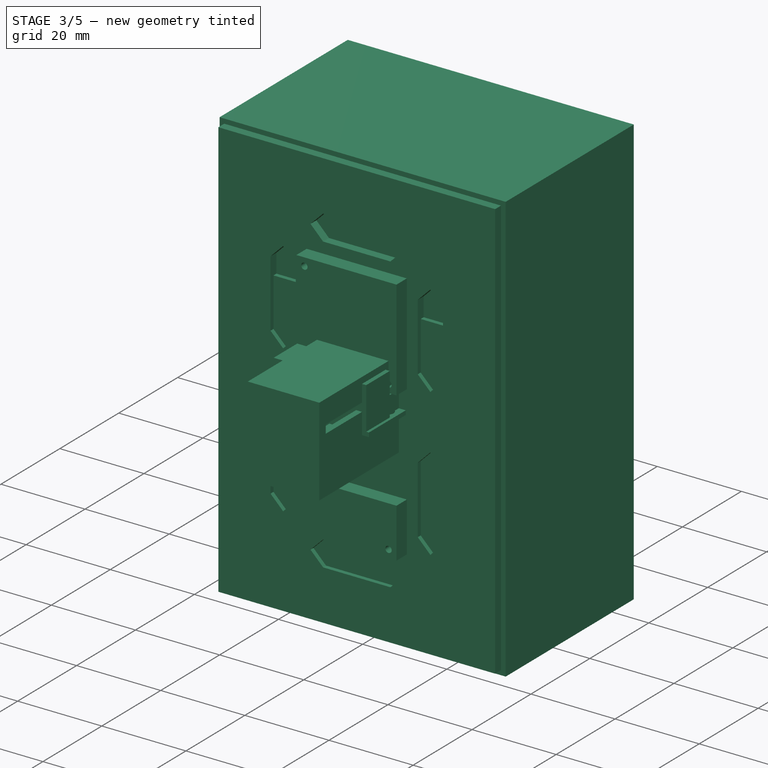
[diagram: stage 3 of 5 — iso view after this stage's code; geometry added in this stage tinted green]
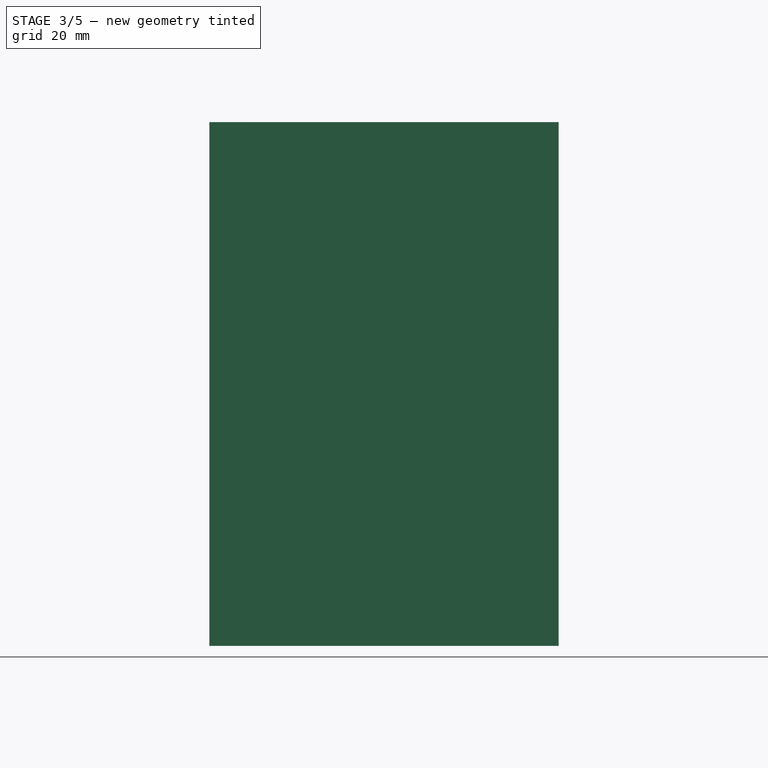
[diagram: stage 3 of 5 — front view after this stage's code; geometry added in this stage tinted green]
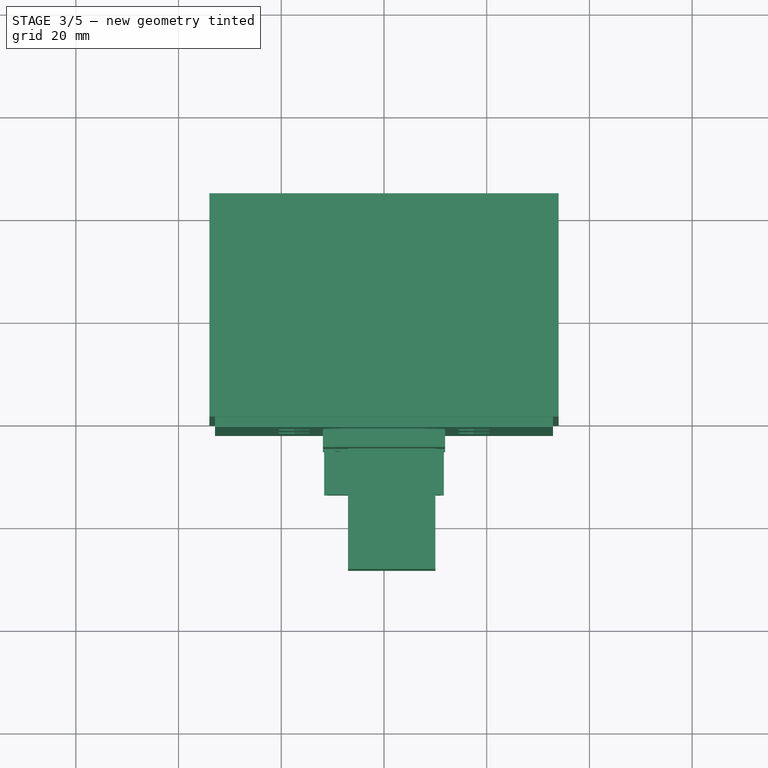
[diagram: stage 3 of 5 — top view after this stage's code; geometry added in this stage tinted green]
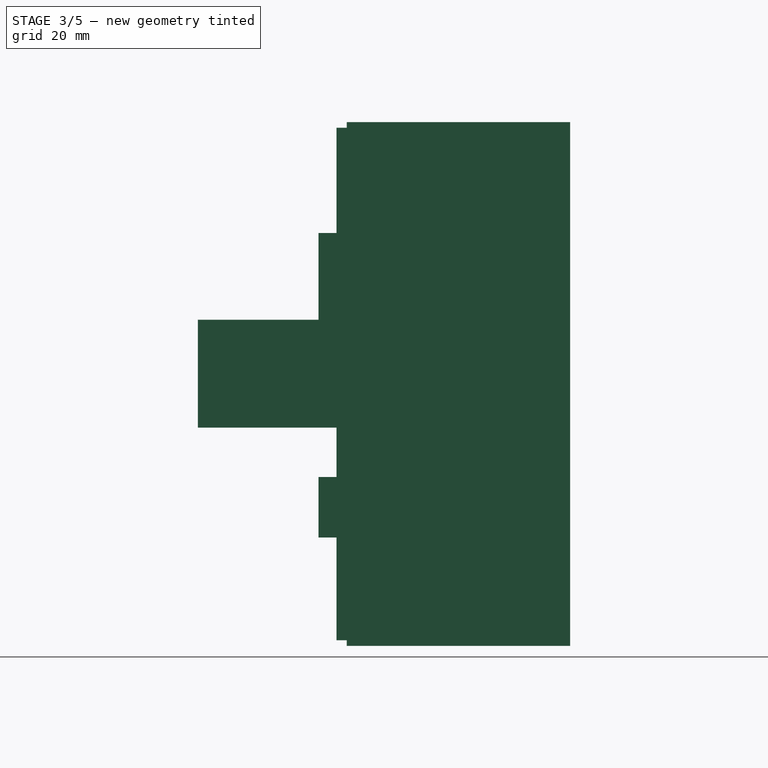
[diagram: stage 3 of 5 — right view after this stage's code; geometry added in this stage tinted green]
FEATURE [Sketcher::SketchObject] Sketch195
  FullyConstrained = false
  MapMode = 5
  Placement = pos=(0,0,12.5) rot=(0,0,1;0rad)
  Support = -> [Pad142]
  sketch-geometry (1):
    g0: Circle CenterX=0 CenterY=0 CenterZ=0 NormalX=0 NormalY=0 NormalZ=1 AngleXU=0 Radius=0.742682
  constraints (1):
    c: Coincident(g0,g-1)
FEATURE [PartDesign::Pad] Pad143
  Direction = (1,1,1)
  Length = 6
  Length2 = 100
  Midplane = true
  Profile = -> Sketch192
  Type = 0
FEATURE [PartDesign::Body] Body026  label="Coil002"
  Group = -> [Sketch192,Pad143,Sketch200,Pad144,Sketch193,Pad148,Sketch201,Pad155,Sketch196,Pad151]
  Origin = -> Origin052
  Placement = pos=(3.5,-13,0) rot=(0,0,1;0rad)
  Tip = -> Pad151
FEATURE [App::Part] Part017  label="Clock Parts003"
  Group = -> [Body027,Body026,Body029]
  Origin = -> Origin056
  Placement = pos=(0,1,0) rot=(0,0,1;0rad)
FEATURE [Sketcher::SketchObject] Sketch230
  FullyConstrained = false
  MapMode = 5
  Support = -> [XY_Plane069]
  sketch-geometry (4):
    g0: LineSegment StartX=-3.5 StartY=6.82831 StartZ=0 EndX=3.5 EndY=6.82831 EndZ=0
    g1: LineSegment StartX=3.5 StartY=6.82831 StartZ=0 EndX=3.5 EndY=-7.57169 EndZ=0
    g2: LineSegment StartX=3.5 StartY=-7.57169 StartZ=0 EndX=-3.5 EndY=-7.57169 EndZ=0
    g3: LineSegment StartX=-3.5 StartY=-7.57169 StartZ=0 EndX=-3.5 EndY=6.82831 EndZ=0
  constraints (9):
    c: Coincident(g0,g1)
    c: Coincident(g1,g2)
    c: Coincident(g2,g3)
    c: Coincident(g3,g0)
    c: Vertical(g3)
    c: DistanceY(g1,g1) = 14.4
    c: DistanceX(g2,g2) = 7
    c: Symmetric(g0,g0,g-2)
    c: Horizontal(g2)
FEATURE [Sketcher::SketchObject] Sketch232
  FullyConstrained = true
  MapMode = 5
  Support = -> [XY_Plane060]
  sketch-geometry (2):
    g0: Circle CenterX=0 CenterY=0 CenterZ=0 NormalX=0 NormalY=0 NormalZ=1 AngleXU=0 Radius=1.025
    g1: Circle CenterX=0 CenterY=0 CenterZ=0 NormalX=0 NormalY=0 NormalZ=1 AngleXU=0 Radius=2.5
  constraints (4):
    c: Coincident(g0,g-1)
    c: Coincident(g1,g0)
    c: Radius(g1) = 2.5
    c: Radius(g0) = 1.025
FEATURE [Sketcher::SketchObject] Sketch236
  FullyConstrained = false
  MapMode = 5
  Support = -> [XY_Plane067]
  sketch-geometry (24):
    g0: LineSegment StartX=5.55 StartY=4.4 StartZ=0 EndX=5.55 EndY=-24.8 EndZ=0
    g1: LineSegment StartX=5.55 StartY=-24.8 StartZ=0 EndX=-5.55 EndY=-24.8 EndZ=0
    g2: LineSegment StartX=-5.55 StartY=-24.8 StartZ=0 EndX=-5.55 EndY=4.4 EndZ=0
    g3: LineSegment StartX=-5.55 StartY=4.4 StartZ=0 EndX=-1.65 EndY=4.4 EndZ=0
    g4: LineSegment StartX=-1.65 StartY=4.4 StartZ=0 EndX=-1.65 EndY=2.85788 EndZ=0
    g5: LineSegment StartX=-1.66888 StartY=-7.8506 StartZ=0 EndX=-2.25 EndY=-8.61046 EndZ=0
    g6: LineSegment StartX=-2.25 StartY=-8.61046 StartZ=0 EndX=-2.25 EndY=-20.65 EndZ=0
    g7: LineSegment StartX=-2.25 StartY=-20.65 StartZ=0 EndX=2.25 EndY=-20.65 EndZ=0
    g8: LineSegment StartX=1.66888 StartY=-7.87451 StartZ=0 EndX=1.66888 EndY=-2.8469 EndZ=0
    g9: LineSegment StartX=1.65 StartY=4.4 StartZ=0 EndX=5.55 EndY=4.4 EndZ=0
    g10: ArcOfCircle CenterX=2e-16 CenterY=-2e-16 CenterZ=0 NormalX=0 NormalY=0 NormalZ=1 AngleXU=0 Radius=3.3 StartAngle=2.0944 EndAngle=2.45182
    g11: ArcOfCircle CenterX=2e-16 CenterY=-2e-16 CenterZ=0 NormalX=0 NormalY=0 NormalZ=1 AngleXU=0 Radius=4.5 StartAngle=2.65607 EndAngle=3.62711
    g12: LineSegment StartX=-3.97995 StartY=2.1 StartZ=0 EndX=-2.54558 EndY=2.1 EndZ=0
    g13: LineSegment StartX=-3.97995 StartY=-2.1 StartZ=0 EndX=-2.54558 EndY=-2.1 EndZ=0
    g14: LineSegment StartX=2.54558 StartY=2.1 StartZ=0 EndX=3.97995 EndY=2.1 EndZ=0
    g15: ArcOfCircle CenterX=2e-16 CenterY=-2e-16 CenterZ=0 NormalX=0 NormalY=0 NormalZ=1 AngleXU=0 Radius=3.3 StartAngle=3.83137 EndAngle=4.18217
    g16: ArcOfCircle CenterX=-0.000102365 CenterY=0.000124091 CenterZ=0 NormalX=0 NormalY=0 NormalZ=1 AngleXU=0 Radius=3.3 StartAngle=0.689726 EndAngle=1.04716
    g17: LineSegment StartX=2.54558 StartY=-2.1 StartZ=0 EndX=3.97995 EndY=-2.1 EndZ=0
    g18: ArcOfCircle CenterX=4e-16 CenterY=0 CenterZ=0 NormalX=0 NormalY=0 NormalZ=1 AngleXU=0 Radius=4.5 StartAngle=5.79767 EndAngle=6.7687
    g19: LineSegment StartX=1.65 StartY=2.85795 StartZ=0 EndX=1.65 EndY=4.4 EndZ=0
    g20: LineSegment StartX=-1.66888 StartY=-2.8469 StartZ=0 EndX=-1.66888 EndY=-7.8506 EndZ=0
    g21: ArcOfCircle CenterX=0.000105409 CenterY=-0.000123728 CenterZ=0 NormalX=0 NormalY=0 NormalZ=1 AngleXU=0 Radius=3.29984 StartAngle=5.2426 EndAngle=5.59342
    g22: LineSegment StartX=2.25 StartY=-8.61046 StartZ=0 EndX=2.25 EndY=-20.65 EndZ=0
    g23: LineSegment StartX=1.66888 StartY=-7.87451 StartZ=0 EndX=2.25 EndY=-8.61046 EndZ=0
  constraints (60):
    c: Vertical(g0)
    c: Coincident(g0,g1)
    c: Horizontal(g1)
    c: Coincident(g1,g2)
    c: Vertical(g2)
    c: Coincident(g2,g3)
    c: Horizontal(g3)
    c: Coincident(g3,g4)
    c: Vertical(g4)
    c: Coincident(g20,g5)
    c: Coincident(g5,g6)
    c: Vertical(g6)
    c: Coincident(g6,g7)
    c: Coincident(g19,g9)
    c: Coincident(g9,g0)
    c: Coincident(g11,g10)
    c: Radius(g10) = 3.3
    c: Radius(g11) = 4.5
    c: Horizontal(g12)
    c: Horizontal(g13)
    c: PointOnObject(g14,g10)
    c: Coincident(g18,g14)
    c: Coincident(g11,g12)
    c: Equal(g10,g15)
    c: Coincident(g10,g12)
    c: Coincident(g10,g15)
    c: Equal(g15,g16)
    c: Symmetric(g0,g2,g-2)
    c: Coincident(g23,g22)
    c: Vertical(g22)
    c: Coincident(g22,g7)
    c: Symmetric(g7,g6,g-2)
    c: DistanceX(g0) = 5.55
    c: DistanceY(g0) = -24.8
    c: Vertical(g19)
    c: Vertical(g8)
    c: Vertical(g20)
    c: Symmetric(g3,g9,g-2)
    c: DistanceX(g9) = 1.65
    c: DistanceY(g9) = 4.4
    c: DistanceX(g7) = 2.25
    c: DistanceY(g7) = -20.65
    c: Coincident(g10,g4)
    c: Coincident(g16,g19)
    c: Coincident(g14,g16)
    c: Coincident(g17,g18)
    c: Coincident(g11,g13)
    c: Coincident(g13,g15)
    c: Coincident(g17,g21)
    c: Coincident(g8,g21)
    c: Coincident(g15,g20)
    c: Symmetric(g14,g17,g-1)
    c: Symmetric(g10,g13,g-1)
    c: Coincident(g8,g23)
    c: DistanceY(g17,g14) = 4.2
    c: Symmetric(g13,g17,g-2)
    c: Radius(g18) = 4.5
    c: Symmetric(g14,g11,g-2)
    c: Symmetric(g17,g11,g-2)
    c: Symmetric(g8,g15,g-2)
FEATURE [Sketcher::SketchObject] Sketch240
  FullyConstrained = true
  MapMode = 5
  Support = -> [XY_Plane059]
  sketch-geometry (4):
    g0: ArcOfCircle CenterX=0 CenterY=0 CenterZ=0 NormalX=0 NormalY=0 NormalZ=1 AngleXU=0 Radius=11.3 StartAngle=1.44862 EndAngle=2.40855
    g1: ArcOfCircle CenterX=0 CenterY=0 CenterZ=0 NormalX=0 NormalY=0 NormalZ=1 AngleXU=0 Radius=12 StartAngle=1.44862 EndAngle=2.40855
    g2: LineSegment StartX=-8.39754 StartY=7.56118 StartZ=0 EndX=-8.91774 EndY=8.02957 EndZ=0
    g3: LineSegment StartX=1.37712 StartY=11.2158 StartZ=0 EndX=1.46243 EndY=11.9106 EndZ=0
  constraints (12):
    c: Coincident(g0,g-1)
    c: Coincident(g1,g0)
    c: Radius(g0) = 11.3
    c: Radius(g1) = 12
    c: Coincident(g3,g1)
    c: Coincident(g3,g0)
    c: Coincident(g2,g0)
    c: Coincident(g2,g1)
    c: Angle(g-1,g3) = 1.44862
    c: Angle(g-1,g2) = 2.40855
    c: PointOnObject(g0,g2)
    c: PointOnObject(g0,g3)
FEATURE [Sketcher::SketchObject] Sketch245
  FullyConstrained = true
  MapMode = 5
  Support = -> [XY_Plane065]
  sketch-geometry (2):
    g0: Circle CenterX=0 CenterY=0 CenterZ=0 NormalX=0 NormalY=0 NormalZ=1 AngleXU=0 Radius=2.5
    g1: Circle CenterX=0 CenterY=0 CenterZ=0 NormalX=0 NormalY=0 NormalZ=1 AngleXU=0 Radius=0.5
  constraints (4):
    c: Coincident(g0,g-1)
    c: Radius(g0) = 2.5
    c: Coincident(g1,g0)
    c: Radius(g1) = 0.5
FEATURE [Sketcher::SketchObject] Sketch246
  FullyConstrained = true
  MapMode = 5
  Placement = pos=(0,0,0) rot=(1,0,0;1.5708rad)
  Support = -> [XZ_Plane066]
  sketch-geometry (4):
    g0: LineSegment StartX=-7 StartY=12.5 StartZ=0 EndX=10 EndY=12.5 EndZ=0
    g1: LineSegment StartX=10 StartY=12.5 StartZ=0 EndX=10 EndY=-8.5 EndZ=0
    g2: LineSegment StartX=10 StartY=-8.5 StartZ=0 EndX=-7 EndY=-8.5 EndZ=0
    g3: LineSegment StartX=-7 StartY=-8.5 StartZ=0 EndX=-7 EndY=12.5 EndZ=0
  constraints (12):
    c: Coincident(g0,g1)
    c: Coincident(g1,g2)
    c: Coincident(g2,g3)
    c: Coincident(g3,g0)
    c: Horizontal(g0)
    c: Horizontal(g2)
    c: Vertical(g1)
    c: Vertical(g3)
    c: DistanceX(g0) = -7
    c: DistanceY(g0) = 12.5
    c: DistanceX(g1) = 10
    c: DistanceY(g1) = -8.5
FEATURE [Sketcher::SketchObject] Sketch247
  FullyConstrained = true
  MapMode = 5
  sketch-geometry (4):
    g0: LineSegment StartX=-2 StartY=8 StartZ=0 EndX=2 EndY=8 EndZ=0
    g1: LineSegment StartX=2 StartY=8 StartZ=0 EndX=2 EndY=4 EndZ=0
    g2: LineSegment StartX=2 StartY=4 StartZ=0 EndX=-2 EndY=4 EndZ=0
    g3: LineSegment StartX=-2 StartY=4 StartZ=0 EndX=-2 EndY=8 EndZ=0
  constraints (11):
    c: Coincident(g0,g1)
    c: Coincident(g1,g2)
    c: Coincident(g2,g3)
    c: Coincident(g3,g0)
    c: Horizontal(g0)
    c: Vertical(g3)
    c: Symmetric(g2,g1,g-2)
    c: DistanceY(g1,g1) = 4
    c: DistanceX(g2,g2) = 4
    c: Vertical(g1)
    c: DistanceY(g-1,g1) = 4
FEATURE [Sketcher::SketchObject] Sketch248
  FullyConstrained = true
  MapMode = 5
  Support = -> [XY_Plane063]
  sketch-geometry (1):
    g0: Circle CenterX=0 CenterY=0 CenterZ=0 NormalX=0 NormalY=0 NormalZ=1 AngleXU=0 Radius=0.375
  constraints (2):
    c: Coincident(g0,g-1)
    c: Radius(g0) = 0.375
FEATURE [PartDesign::Pad] Pad156
  Direction = (1,1,1)
  Length = 25
  Length2 = 100
  Midplane = true
  Profile = -> Sketch248
  Type = 0
FEATURE [Sketcher::SketchObject] Sketch233
  FullyConstrained = false
  MapMode = 5
  Placement = pos=(0,0,12.5) rot=(0,0,1;0rad)
  Support = -> [Pad156]
  sketch-geometry (1):
    g0: Circle CenterX=0 CenterY=0 CenterZ=0 NormalX=0 NormalY=0 NormalZ=1 AngleXU=0 Radius=0.742682
  constraints (1):
    c: Coincident(g0,g-1)
FEATURE [PartDesign::Pad] Pad157
  Direction = (1,1,1)
  Length = 6
  Length2 = 100
  Midplane = true
  Profile = -> Sketch230
  Type = 0
FEATURE [Sketcher::SketchObject] Sketch238
  ExternalGeometry = -> [Pad157]
  FullyConstrained = false
  MapMode = 5
  Placement = pos=(0,-7.57169,0) rot=(1,0,0;1.5708rad)
  Support = -> [Pad157]
  sketch-geometry (4):
    g0: LineSegment StartX=-5 StartY=3.5 StartZ=0 EndX=5 EndY=3.5 EndZ=0
    g1: LineSegment StartX=5 StartY=3.5 StartZ=0 EndX=5 EndY=-3.5 EndZ=0
    g2: LineSegment StartX=5 StartY=-3.5 StartZ=0 EndX=-5 EndY=-3.5 EndZ=0
    g3: LineSegment StartX=-5 StartY=-3.5 StartZ=0 EndX=-5 EndY=3.5 EndZ=0
  constraints (10):
    c: Coincident(g0,g1)
    c: Coincident(g1,g2)
    c: Coincident(g2,g3)
    c: Coincident(g3,g0)
    c: Horizontal(g0)
    c: Vertical(g1)
    c: Vertical(g3)
    c: DistanceY(g1,g1) = 7
    c: DistanceX(g2,g2) = 10
    c: Symmetric(g2,g1,g-2)
FEATURE [PartDesign::Pad] Pad158
  BaseFeature = -> Pad157
  Direction = (1,1,1)
  Length = 1
  Length2 = 100
  Profile = -> Sketch238
  Type = 0
FEATURE [Sketcher::SketchObject] Sketch231
  ExternalGeometry = -> [Pad158]
  FullyConstrained = false
  MapMode = 5
  Placement = pos=(0,6.82831,0) rot=(0,0.707107,0.707107;3.14159rad)
  Support = -> [Pad158]
  sketch-geometry (4):
    g0: LineSegment StartX=-5 StartY=3.5 StartZ=0 EndX=5 EndY=3.5 EndZ=0
    g1: LineSegment StartX=5 StartY=3.5 StartZ=0 EndX=5 EndY=-3.5 EndZ=0
    g2: LineSegment StartX=5 StartY=-3.5 StartZ=0 EndX=-5 EndY=-3.5 EndZ=0
    g3: LineSegment StartX=-5 StartY=-3.5 StartZ=0 EndX=-5 EndY=3.5 EndZ=0
  constraints (10):
    c: Coincident(g0,g1)
    c: Coincident(g1,g2)
    c: Coincident(g2,g3)
    c: Coincident(g3,g0)
    c: Horizontal(g0)
    c: Vertical(g1)
    c: Vertical(g3)
    c: DistanceY(g3,g3) = 7
    c: DistanceX(g2,g2) = 10
    c: Symmetric(g1,g2,g-2)
FEATURE [PartDesign::Pad] Pad159
  Direction = (1,1,1)
  Length = 29
  Length2 = 100
  Placement = pos=(0,0,0) rot=(1,0,0;1.5708rad)
  Profile = -> Sketch246
  Type = 0
FEATURE [Sketcher::SketchObject] Sketch242
  ExternalGeometry = -> [Pad159]
  FullyConstrained = true
  MapMode = 5
  Placement = pos=(0,0,0) rot=(-1,0,0;1.5708rad)
  Support = -> [Pad159]
  sketch-geometry (4):
    g0: LineSegment StartX=-4.5 StartY=6.5 StartZ=0 EndX=8.6 EndY=6.5 EndZ=0
    g1: LineSegment StartX=8.6 StartY=6.5 StartZ=0 EndX=8.6 EndY=-10.5 EndZ=0
    g2: LineSegment StartX=8.6 StartY=-10.5 StartZ=0 EndX=-4.5 EndY=-10.5 EndZ=0
    g3: LineSegment StartX=-4.5 StartY=-10.5 StartZ=0 EndX=-4.5 EndY=6.5 EndZ=0
  constraints (12):
    c: Coincident(g0,g1)
    c: Coincident(g1,g2)
    c: Coincident(g2,g3)
    c: Coincident(g3,g0)
    c: Horizontal(g0)
    c: Horizontal(g2)
    c: Vertical(g1)
    c: Vertical(g3)
    c: DistanceX(g-3,g0) = 2.5
    c: DistanceY(g-3,g0) = -2
    c: DistanceX(g-4,g1) = -1.4
    c: DistanceY(g-4,g1) = 2
FEATURE [PartDesign::Pocket] Pocket027
  BaseFeature = -> Pad159
  Length = 25.7
  Length2 = 100
  Placement = pos=(0,0,0) rot=(1,0,0;1.5708rad)
  Profile = -> Sketch242
  Type = 0
FEATURE [Sketcher::SketchObject] Sketch243
  FullyConstrained = true
  MapMode = 5
  Placement = pos=(0,0,0) rot=(-1,0,0;1.5708rad)
  Support = -> [Pocket027]
  sketch-geometry (8):
    g0: LineSegment StartX=-5.75 StartY=0.6 StartZ=0 EndX=5.75 EndY=0.6 EndZ=0
    g1: LineSegment StartX=5.75 StartY=0.6 StartZ=0 EndX=5.75 EndY=-0.6 EndZ=0
    g2: LineSegment StartX=5.75 StartY=-0.6 StartZ=0 EndX=-5.75 EndY=-0.6 EndZ=0
    g3: LineSegment StartX=-5.75 StartY=-0.6 StartZ=0 EndX=-5.75 EndY=0.6 EndZ=0
    g4: LineSegment StartX=8.6 StartY=-5 StartZ=0 EndX=10 EndY=-5 EndZ=0
    g5: LineSegment StartX=10 StartY=-5 StartZ=0 EndX=10 EndY=-7 EndZ=0
    g6: LineSegment StartX=10 StartY=-7 StartZ=0 EndX=8.6 EndY=-7 EndZ=0
    g7: LineSegment StartX=8.6 StartY=-7 StartZ=0 EndX=8.6 EndY=-5 EndZ=0
  constraints (22):
    c: Coincident(g0,g1)
    c: Coincident(g1,g2)
    c: Coincident(g2,g3)
    c: Coincident(g3,g0)
    c: Horizontal(g2)
    c: Vertical(g3)
    c: Symmetric(g0,g0,g-2)
    c: Symmetric(g1,g0,g-1)
    c: DistanceX(g0,g0) = 11.5
    c: DistanceY(g3,g3) = 1.2
    c: Coincident(g4,g5)
    c: Coincident(g5,g6)
    c: Coincident(g6,g7)
    c: Coincident(g7,g4)
    c: Horizontal(g4)
    c: Horizontal(g6)
    c: Vertical(g5)
    c: Vertical(g7)
    c: DistanceX(g-1,g6) = 8.6
    c: DistanceX(g4,g4) = 1.4
    c: DistanceY(g4,g-1) = 5
    c: DistanceY(g5,g5) = 2
FEATURE [PartDesign::Pocket] Pocket028
  BaseFeature = -> Pocket027
  Length = 26.8
  Length2 = 100
  Placement = pos=(0,0,0) rot=(1,0,0;1.5708rad)
  Profile = -> Sketch243
  Type = 0
FEATURE [Sketcher::SketchObject] Sketch235
  FullyConstrained = true
  MapMode = 5
  Placement = pos=(0,-1.9e-15,-8.5) rot=(1,0,0;3.14159rad)
  Support = -> [Pocket028]
  sketch-geometry (1):
    g0: Circle CenterX=0 CenterY=2 CenterZ=0 NormalX=0 NormalY=0 NormalZ=1 AngleXU=0 Radius=0.6
  constraints (3):
    c: PointOnObject(g0,g-2)
    c: Radius(g0) = 0.6
    c: DistanceY(g-1,g0) = 2
FEATURE [PartDesign::Pocket] Pocket029
  BaseFeature = -> Pocket028
  Length = 50
  Length2 = 100
  Placement = pos=(0,0,0) rot=(1,0,0;1.5708rad)
  Profile = -> Sketch235
  Type = 0
FEATURE [Sketcher::SketchObject] Sketch241
  FullyConstrained = true
  MapMode = 5
  Placement = pos=(8.6,0,0) rot=(0.707107,0,0.707107;3.14159rad)
  Support = -> [Pocket029]
  sketch-geometry (4):
    g0: LineSegment StartX=-0.3 StartY=-7.5 StartZ=0 EndX=0.3 EndY=-7.5 EndZ=0
    g1: LineSegment StartX=0.3 StartY=-7.5 StartZ=0 EndX=0.3 EndY=-10.5 EndZ=0
    g2: LineSegment StartX=0.3 StartY=-10.5 StartZ=0 EndX=-0.3 EndY=-10.5 EndZ=0
    g3: LineSegment StartX=-0.3 StartY=-10.5 StartZ=0 EndX=-0.3 EndY=-7.5 EndZ=0
  constraints (11):
    c: Coincident(g0,g1)
    c: Coincident(g1,g2)
    c: Coincident(g2,g3)
    c: Coincident(g3,g0)
    c: Horizontal(g2)
    c: Vertical(g1)
    c: Vertical(g3)
    c: Symmetric(g0,g0,g-2)
    c: DistanceX(g0,g0) = 0.6
    c: DistanceY(g1,g-1) = 10.5
    c: DistanceY(g1,g1) = 3
FEATURE [PartDesign::Pocket] Pocket030
  BaseFeature = -> Pocket029
  Length = 2.5
  Length2 = 100
  Placement = pos=(0,0,0) rot=(1,0,0;1.5708rad)
  Profile = -> Sketch241
  Type = 0
FEATURE [Sketcher::SketchObject] Sketch237
  FullyConstrained = true
  MapMode = 5
  Placement = pos=(0,0,1) rot=(0,0,1;0rad)
  Support = -> [Pad160]
  sketch-geometry (2):
    g0: Circle CenterX=0 CenterY=0 CenterZ=0 NormalX=0 NormalY=0 NormalZ=1 AngleXU=0 Radius=0.97
    g1: Circle CenterX=0 CenterY=0 CenterZ=0 NormalX=0 NormalY=0 NormalZ=1 AngleXU=0 Radius=0.55
  constraints (4):
    c: Coincident(g0,g-1)
    c: Radius(g0) = 0.97
    c: Coincident(g1,g0)
    c: Radius(g1) = 0.55
FEATURE [PartDesign::Pad] Pad161
  Direction = (1,1,1)
  Length = 2.4
  Length2 = 100
  Midplane = true
  Profile = -> Sketch232
  Type = 0
FEATURE [PartDesign::Body] Body045  label="Magnet004"
  Group = -> [Sketch232,Pad161]
  Origin = -> Origin067
  Tip = -> Pad161
FEATURE [PartDesign::Pad] Pad162
  BaseFeature = -> Pad158
  Direction = (1,1,1)
  Length = 1
  Length2 = 100
  Profile = -> Sketch231
  Type = 0
FEATURE [PartDesign::Pad] Pad164
  Direction = (1,1,1)
  Length = 0.8
  Length2 = 100
  Midplane = true
  Profile = -> Sketch236
  Type = 0
FEATURE [PartDesign::Body] Body043  label="Plate004"
  Group = -> [Sketch236,Pad164]
  Origin = -> Origin058
  Tip = -> Pad164
FEATURE [PartDesign::Pad] Pad166
  BaseFeature = -> Pad156
  Direction = (1,1,1)
  Length = 0.5
  Length2 = 100
  Profile = -> Sketch233
  Type = 0
FEATURE [PartDesign::Body] Body038  label="Pin004"
  Group = -> [Sketch248,Pad156,Sketch233,Pad166]
  Origin = -> Origin060
  Placement = pos=(0,0,2) rot=(0,0,1;0rad)
  Tip = -> Pad166
FEATURE [PartDesign::Pad] Pad167
  Direction = (1,1,1)
  Length = 13.5
  Length2 = 100
  Profile = -> Sketch247
  Type = 0
FEATURE [Sketcher::SketchObject] Sketch244
  FullyConstrained = true
  MapMode = 5
  Placement = pos=(0,8,0) rot=(0,0.707107,0.707107;3.14159rad)
  Support = -> [Pad167]
  sketch-geometry (9):
    g0: Circle CenterX=0 CenterY=11.5 CenterZ=0 NormalX=0 NormalY=0 NormalZ=1 AngleXU=0 Radius=0.45
    g1: LineSegment StartX=-2 StartY=9.5 StartZ=0 EndX=-1.2 EndY=9.5 EndZ=0
    g2: LineSegment StartX=-1.2 StartY=9.5 StartZ=0 EndX=-1.2 EndY=0 EndZ=0
    g3: LineSegment StartX=-1.2 StartY=0 StartZ=0 EndX=-2 EndY=0 EndZ=0
    g4: LineSegment StartX=-2 StartY=0 StartZ=0 EndX=-2 EndY=9.5 EndZ=0
    g5: LineSegment StartX=2 StartY=9.5 StartZ=0 EndX=1.2 EndY=9.5 EndZ=0
    g6: LineSegment StartX=1.2 StartY=9.5 StartZ=0 EndX=1.2 EndY=0 EndZ=0
    g7: LineSegment StartX=1.2 StartY=0 StartZ=0 EndX=2 EndY=0 EndZ=0
    g8: LineSegment StartX=2 StartY=0 StartZ=0 EndX=2 EndY=9.5 EndZ=0
  constraints (27):
    c: PointOnObject(g0,g-2)
    c: DistanceY(g-1,g0) = 11.5
    c: Radius(g0) = 0.45
    c: Coincident(g1,g2)
    c: Coincident(g2,g3)
    c: Coincident(g3,g4)
    c: Coincident(g4,g1)
    c: Horizontal(g1)
    c: Horizontal(g3)
    c: Vertical(g2)
    c: Vertical(g4)
    c: PointOnObject(g2,g-1)
    c: DistanceX(g3,g-1) = 2
    c: DistanceX(g3,g3) = 0.8
    c: DistanceY(g4,g4) = 9.5
    c: Coincident(g5,g6)
    c: Coincident(g6,g7)
    c: Coincident(g7,g8)
    c: Coincident(g8,g5)
    c: Horizontal(g5)
    c: Horizontal(g7)
    c: Vertical(g6)
    c: Vertical(g8)
    c: DistanceY(g8,g8) = 9.5
    c: PointOnObject(g7,g-1)
    c: DistanceX(g7) = 2
    c: DistanceX(g7,g7) = 0.8
FEATURE [PartDesign::Pocket] Pocket031
  BaseFeature = -> Pad167
  Length = 5
  Length2 = 100
  Profile = -> Sketch244
  Type = 0
FEATURE [PartDesign::Body] Body041  label="Segment_Pole004"
  Group = -> [Sketch247,Sketch244,Pad167,Pocket031]
  Origin = -> Origin066
  Placement = pos=(0,11.5,2) rot=(1,0,0;1.5708rad)
  Tip = -> Pocket031
FEATURE [PartDesign::Pad] Pad168
  Direction = (1,1,1)
  Length = 22
  Length2 = 100
  Profile = -> Sketch240
  Type = 0
FEATURE [PartDesign::Body] Body044  label="Segment_Wing004"
  Group = -> [Sketch240,Pad168]
  Origin = -> Origin062
  Placement = pos=(0,0,-9) rot=(0,0,1;0rad)
  Tip = -> Pad168
FEATURE [Part::MultiFuse] Fusion004  label="Segment_ON004"
  Placement = pos=(0,0,0) rot=(0,0,-1;0.506145rad)
  Shapes = -> [Body041,Body044]
FEATURE [PartDesign::Pad] Pad169
  BaseFeature = -> Pad162
  Direction = (1,1,1)
  Length = 2.3
  Length2 = 100
  Profile = -> Sketch239
  Type = 0
FEATURE [Sketcher::SketchObject] Sketch234
  FullyConstrained = false
  MapMode = 5
  Placement = pos=(0,0,2.3) rot=(0,0,1;0rad)
  Support = -> [Pad169]
  sketch-geometry (2):
    g0: Circle CenterX=-2.5 CenterY=-9.38461 CenterZ=0 NormalX=0 NormalY=0 NormalZ=1 AngleXU=0 Radius=0.35
    g1: Circle CenterX=2.5 CenterY=-9.38461 CenterZ=0 NormalX=0 NormalY=0 NormalZ=1 AngleXU=0 Radius=0.35
  constraints (4):
    c: Symmetric(g1,g0,g-2)
    c: Radius(g1) = 0.35
    c: Equal(g1,g0)
    c: DistanceX(g0,g1) = 5
FEATURE [PartDesign::Pad] Pad165
  BaseFeature = -> Pad169
  Direction = (1,1,1)
  Length = 3
  Length2 = 100
  Profile = -> Sketch234
  Type = 0
FEATURE [Sketcher::SketchObject] Sketch254
  FullyConstrained = true
  MapMode = 5
  Support = -> [XY_Plane078]
  sketch-geometry (2):
    g0: Circle CenterX=0 CenterY=0 CenterZ=0 NormalX=0 NormalY=0 NormalZ=1 AngleXU=0 Radius=1.025
    g1: Circle CenterX=0 CenterY=0 CenterZ=0 NormalX=0 NormalY=0 NormalZ=1 AngleXU=0 Radius=2.5
  constraints (4):
    c: Coincident(g0,g-1)
    c: Coincident(g1,g0)
    c: Radius(g1) = 2.5
    c: Radius(g0) = 1.025
FEATURE [PartDesign::Pad] Pad174
  Direction = (1,1,1)
  Length = 2.4
  Length2 = 100
  Midplane = true
  Profile = -> Sketch254
  Type = 0
FEATURE [Sketcher::SketchObject] Sketch256
  ExternalGeometry = -> [Pad172]
  FullyConstrained = false
  MapMode = 5
  Placement = pos=(0,-7.57169,0) rot=(1,0,0;1.5708rad)
  Support = -> [Pad172]
  sketch-geometry (4):
    g0: LineSegment StartX=-5 StartY=3.5 StartZ=0 EndX=5 EndY=3.5 EndZ=0
    g1: LineSegment StartX=5 StartY=3.5 StartZ=0 EndX=5 EndY=-3.5 EndZ=0
    g2: LineSegment StartX=5 StartY=-3.5 StartZ=0 EndX=-5 EndY=-3.5 EndZ=0
    g3: LineSegment StartX=-5 StartY=-3.5 StartZ=0 EndX=-5 EndY=3.5 EndZ=0
  constraints (10):
    c: Coincident(g0,g1)
    c: Coincident(g1,g2)
    c: Coincident(g2,g3)
    c: Coincident(g3,g0)
    c: Horizontal(g0)
    c: Vertical(g1)
    c: Vertical(g3)
    c: DistanceY(g1,g1) = 7
    c: DistanceX(g2,g2) = 10
    c: Symmetric(g2,g1,g-2)
FEATURE [PartDesign::Pad] Pad182
  BaseFeature = -> Pad172
  Direction = (1,1,1)
  Length = 1
  Length2 = 100
  Profile = -> Sketch256
  Type = 0
FEATURE [Sketcher::SketchObject] Sketch253
  ExternalGeometry = -> [Pad182]
  FullyConstrained = false
  MapMode = 5
  Placement = pos=(0,6.82831,0) rot=(0,0.707107,0.707107;3.14159rad)
  Support = -> [Pad182]
  sketch-geometry (4):
    g0: LineSegment StartX=-5 StartY=3.5 StartZ=0 EndX=5 EndY=3.5 EndZ=0
    g1: LineSegment StartX=5 StartY=3.5 StartZ=0 EndX=5 EndY=-3.5 EndZ=0
    g2: LineSegment StartX=5 StartY=-3.5 StartZ=0 EndX=-5 EndY=-3.5 EndZ=0
    g3: LineSegment StartX=-5 StartY=-3.5 StartZ=0 EndX=-5 EndY=3.5 EndZ=0
  constraints (10):
    c: Coincident(g0,g1)
    c: Coincident(g1,g2)
    c: Coincident(g2,g3)
    c: Coincident(g3,g0)
    c: Horizontal(g0)
    c: Vertical(g1)
    c: Vertical(g3)
    c: DistanceY(g3,g3) = 7
    c: DistanceX(g2,g2) = 10
    c: Symmetric(g1,g2,g-2)
FEATURE [PartDesign::Pad] Pad175
  BaseFeature = -> Pad182
  Direction = (1,1,1)
  Length = 1
  Length2 = 100
  Profile = -> Sketch253
  Type = 0
FEATURE [Sketcher::SketchObject] Sketch260
  ExternalGeometry = -> [Pad175]
  FullyConstrained = false
  MapMode = 5
  Support = -> [XY_Plane076]
  sketch-geometry (8):
    g0: ArcOfCircle CenterX=-2.53973 CenterY=-9.54527 CenterZ=0 NormalX=0 NormalY=0 NormalZ=1 AngleXU=0 Radius=1 StartAngle=3.14159 EndAngle=6.28319
    g1: LineSegment StartX=-3.53973 StartY=-8.57169 StartZ=0 EndX=-3.53973 EndY=-9.54527 EndZ=0
    g2: LineSegment StartX=-1.53973 StartY=-8.57169 StartZ=0 EndX=-1.53973 EndY=-9.54527 EndZ=0
    g3: LineSegment StartX=-3.53973 StartY=-8.57169 StartZ=0 EndX=-1.53973 EndY=-8.57169 EndZ=0
    g4: ArcOfCircle CenterX=2.53973 CenterY=-9.54527 CenterZ=0 NormalX=0 NormalY=0 NormalZ=1 AngleXU=0 Radius=1 StartAngle=3.14159 EndAngle=6.28319
    g5: LineSegment StartX=3.53973 StartY=-8.57169 StartZ=0 EndX=3.53973 EndY=-9.54527 EndZ=0
    g6: LineSegment StartX=1.53973 StartY=-8.57169 StartZ=0 EndX=1.53973 EndY=-9.54527 EndZ=0
    g7: LineSegment StartX=3.53973 StartY=-8.57169 StartZ=0 EndX=1.53973 EndY=-8.57169 EndZ=0
  constraints (17):
    c: Tangent(g1,g0) = -1.5708
    c: Tangent(g2,g0) = 1.5708
    c: Vertical(g1)
    c: Coincident(g3,g1)
    c: Coincident(g3,g2)
    c: Horizontal(g3)
    c: Vertical(g2)
    c: Radius(g0) = 1
    c: PointOnObject(g1,g-3)
    c: Tangent(g5,g4) = 1.5708
    c: Tangent(g6,g4) = -1.5708
    c: Vertical(g5)
    c: Coincident(g7,g5)
    c: Coincident(g7,g6)
    c: Horizontal(g7)
    c: Vertical(g6)
    c: Radius(g4) = 1
FEATURE [PartDesign::Pad] Pad171
  BaseFeature = -> Pad175
  Direction = (1,1,1)
  Length = 2.3
  Length2 = 100
  Profile = -> Sketch260
  Type = 0
FEATURE [Sketcher::SketchObject] Sketch251
  FullyConstrained = false
  MapMode = 5
  Placement = pos=(0,0,2.3) rot=(0,0,1;0rad)
  Support = -> [Pad171]
  sketch-geometry (2):
    g0: Circle CenterX=-2.5 CenterY=-9.38461 CenterZ=0 NormalX=0 NormalY=0 NormalZ=1 AngleXU=0 Radius=0.35
    g1: Circle CenterX=2.5 CenterY=-9.38461 CenterZ=0 NormalX=0 NormalY=0 NormalZ=1 AngleXU=0 Radius=0.35
  constraints (4):
    c: Symmetric(g1,g0,g-2)
    c: Radius(g1) = 0.35
    c: Equal(g1,g0)
    c: DistanceX(g0,g1) = 5
FEATURE [PartDesign::Pad] Pad183
  BaseFeature = -> Pad171
  Direction = (1,1,1)
  Length = 3
  Length2 = 100
  Profile = -> Sketch251
  Type = 0
FEATURE [Sketcher::SketchObject] Sketch261
  FullyConstrained = true
  MapMode = 5
  Support = -> [XY_Plane071]
  sketch-geometry (4):
    g0: ArcOfCircle CenterX=0 CenterY=0 CenterZ=0 NormalX=0 NormalY=0 NormalZ=1 AngleXU=0 Radius=11.3 StartAngle=1.44862 EndAngle=2.40855
    g1: ArcOfCircle CenterX=0 CenterY=0 CenterZ=0 NormalX=0 NormalY=0 NormalZ=1 AngleXU=0 Radius=12 StartAngle=1.44862 EndAngle=2.40855
    g2: LineSegment StartX=-8.39754 StartY=7.56118 StartZ=0 EndX=-8.91774 EndY=8.02957 EndZ=0
    g3: LineSegment StartX=1.37712 StartY=11.2158 StartZ=0 EndX=1.46243 EndY=11.9106 EndZ=0
  constraints (12):
    c: Coincident(g0,g-1)
    c: Coincident(g1,g0)
    c: Radius(g0) = 11.3
    c: Radius(g1) = 12
    c: Coincident(g3,g1)
    c: Coincident(g3,g0)
    c: Coincident(g2,g0)
    c: Coincident(g2,g1)
    c: Angle(g-1,g3) = 1.44862
    c: Angle(g-1,g2) = 2.40855
    c: PointOnObject(g0,g2)
    c: PointOnObject(g0,g3)
FEATURE [PartDesign::Pad] Pad181
  Direction = (1,1,1)
  Length = 22
  Length2 = 100
  Profile = -> Sketch261
  Type = 0
FEATURE [Sketcher::SketchObject] Sketch265
  FullyConstrained = true
  MapMode = 5
  Placement = pos=(0,8,0) rot=(0,0.707107,0.707107;3.14159rad)
  Support = -> [Pad177]
  sketch-geometry (9):
    g0: Circle CenterX=0 CenterY=11.5 CenterZ=0 NormalX=0 NormalY=0 NormalZ=1 AngleXU=0 Radius=0.45
    g1: LineSegment StartX=-2 StartY=9.5 StartZ=0 EndX=-1.2 EndY=9.5 EndZ=0
    g2: LineSegment StartX=-1.2 StartY=9.5 StartZ=0 EndX=-1.2 EndY=0 EndZ=0
    g3: LineSegment StartX=-1.2 StartY=0 StartZ=0 EndX=-2 EndY=0 EndZ=0
    g4: LineSegment StartX=-2 StartY=0 StartZ=0 EndX=-2 EndY=9.5 EndZ=0
    g5: LineSegment StartX=2 StartY=9.5 StartZ=0 EndX=1.2 EndY=9.5 EndZ=0
    g6: LineSegment StartX=1.2 StartY=9.5 StartZ=0 EndX=1.2 EndY=0 EndZ=0
    g7: LineSegment StartX=1.2 StartY=0 StartZ=0 EndX=2 EndY=0 EndZ=0
    g8: LineSegment StartX=2 StartY=0 StartZ=0 EndX=2 EndY=9.5 EndZ=0
  constraints (27):
    c: PointOnObject(g0,g-2)
    c: DistanceY(g-1,g0) = 11.5
    c: Radius(g0) = 0.45
    c: Coincident(g1,g2)
    c: Coincident(g2,g3)
    c: Coincident(g3,g4)
    c: Coincident(g4,g1)
    c: Horizontal(g1)
    c: Horizontal(g3)
    c: Vertical(g2)
    c: Vertical(g4)
    c: PointOnObject(g2,g-1)
    c: DistanceX(g3,g-1) = 2
    c: DistanceX(g3,g3) = 0.8
    c: DistanceY(g4,g4) = 9.5
    c: Coincident(g5,g6)
    c: Coincident(g6,g7)
    c: Coincident(g7,g8)
    c: Coincident(g8,g5)
    c: Horizontal(g5)
    c: Horizontal(g7)
    c: Vertical(g6)
    c: Vertical(g8)
    c: DistanceY(g8,g8) = 9.5
    c: PointOnObject(g7,g-1)
    c: DistanceX(g7) = 2
    c: DistanceX(g7,g7) = 0.8
FEATURE [PartDesign::Pocket] Pocket035
  BaseFeature = -> Pad177
  Length = 5
  Length2 = 100
  Profile = -> Sketch265
  Type = 0
FEATURE [PartDesign::Body] Body047  label="Segment_Pole005"
  Group = -> [Sketch263,Sketch265,Pad177,Pocket035]
  Origin = -> Origin079
  Placement = pos=(0,11.5,2) rot=(1,0,0;1.5708rad)
  Tip = -> Pocket035
FEATURE [Part::MultiFuse] Fusion005  label="Segment_ON005"
  Placement = pos=(0,0,0) rot=(0,0,-1;0.506145rad)
  Shapes = -> [Body047,Body050]
FEATURE [Sketcher::SketchObject] Sketch266
  FullyConstrained = true
  MapMode = 5
  Placement = pos=(0,0,0) rot=(1,0,0;1.5708rad)
  Support = -> [XZ_Plane076]
  sketch-geometry (4):
    g0: LineSegment StartX=-7 StartY=12.5 StartZ=0 EndX=10 EndY=12.5 EndZ=0
    g1: LineSegment StartX=10 StartY=12.5 StartZ=0 EndX=10 EndY=-8.5 EndZ=0
    g2: LineSegment StartX=10 StartY=-8.5 StartZ=0 EndX=-7 EndY=-8.5 EndZ=0
    g3: LineSegment StartX=-7 StartY=-8.5 StartZ=0 EndX=-7 EndY=12.5 EndZ=0
  constraints (12):
    c: Coincident(g0,g1)
    c: Coincident(g1,g2)
    c: Coincident(g2,g3)
    c: Coincident(g3,g0)
    c: Horizontal(g0)
    c: Horizontal(g2)
    c: Vertical(g1)
    c: Vertical(g3)
    c: DistanceX(g0) = -7
    c: DistanceY(g0) = 12.5
    c: DistanceX(g1) = 10
    c: DistanceY(g1) = -8.5
FEATURE [PartDesign::Pad] Pad176
  Direction = (1,1,1)
  Length = 29
  Length2 = 100
  Placement = pos=(0,0,0) rot=(1,0,0;1.5708rad)
  Profile = -> Sketch266
  Type = 0
FEATURE [Sketcher::SketchObject] Sketch262
  ExternalGeometry = -> [Pad176]
  FullyConstrained = true
  MapMode = 5
  Placement = pos=(0,0,0) rot=(-1,0,0;1.5708rad)
  Support = -> [Pad176]
  sketch-geometry (4):
    g0: LineSegment StartX=-4.5 StartY=6.5 StartZ=0 EndX=8.6 EndY=6.5 EndZ=0
    g1: LineSegment StartX=8.6 StartY=6.5 StartZ=0 EndX=8.6 EndY=-10.5 EndZ=0
    g2: LineSegment StartX=8.6 StartY=-10.5 StartZ=0 EndX=-4.5 EndY=-10.5 EndZ=0
    g3: LineSegment StartX=-4.5 StartY=-10.5 StartZ=0 EndX=-4.5 EndY=6.5 EndZ=0
  constraints (12):
    c: Coincident(g0,g1)
    c: Coincident(g1,g2)
    c: Coincident(g2,g3)
    c: Coincident(g3,g0)
    c: Horizontal(g0)
    c: Horizontal(g2)
    c: Vertical(g1)
    c: Vertical(g3)
    c: DistanceX(g-3,g0) = 2.5
    c: DistanceY(g-3,g0) = -2
    c: DistanceX(g-4,g1) = -1.4
    c: DistanceY(g-4,g1) = 2
FEATURE [PartDesign::Pocket] Pocket032
  BaseFeature = -> Pad176
  Length = 25.7
  Length2 = 100
  Placement = pos=(0,0,0) rot=(1,0,0;1.5708rad)
  Profile = -> Sketch262
  Type = 0
FEATURE [Sketcher::SketchObject] Sketch249
  FullyConstrained = true
  MapMode = 5
  Placement = pos=(0,0,0) rot=(-1,0,0;1.5708rad)
  Support = -> [Pocket032]
  sketch-geometry (8):
    g0: LineSegment StartX=-5.75 StartY=0.6 StartZ=0 EndX=5.75 EndY=0.6 EndZ=0
    g1: LineSegment StartX=5.75 StartY=0.6 StartZ=0 EndX=5.75 EndY=-0.6 EndZ=0
    g2: LineSegment StartX=5.75 StartY=-0.6 StartZ=0 EndX=-5.75 EndY=-0.6 EndZ=0
    g3: LineSegment StartX=-5.75 StartY=-0.6 StartZ=0 EndX=-5.75 EndY=0.6 EndZ=0
    g4: LineSegment StartX=8.6 StartY=-5 StartZ=0 EndX=10 EndY=-5 EndZ=0
    g5: LineSegment StartX=10 StartY=-5 StartZ=0 EndX=10 EndY=-7 EndZ=0
    g6: LineSegment StartX=10 StartY=-7 StartZ=0 EndX=8.6 EndY=-7 EndZ=0
    g7: LineSegment StartX=8.6 StartY=-7 StartZ=0 EndX=8.6 EndY=-5 EndZ=0
  constraints (22):
    c: Coincident(g0,g1)
    c: Coincident(g1,g2)
    c: Coincident(g2,g3)
    c: Coincident(g3,g0)
    c: Horizontal(g2)
    c: Vertical(g3)
    c: Symmetric(g0,g0,g-2)
    c: Symmetric(g1,g0,g-1)
    c: DistanceX(g0,g0) = 11.5
    c: DistanceY(g3,g3) = 1.2
    c: Coincident(g4,g5)
    c: Coincident(g5,g6)
    c: Coincident(g6,g7)
    c: Coincident(g7,g4)
    c: Horizontal(g4)
    c: Horizontal(g6)
    c: Vertical(g5)
    c: Vertical(g7)
    c: DistanceX(g-1,g6) = 8.6
    c: DistanceX(g4,g4) = 1.4
    c: DistanceY(g4,g-1) = 5
    c: DistanceY(g5,g5) = 2
FEATURE [PartDesign::Pocket] Pocket034
  BaseFeature = -> Pocket032
  Length = 26.8
  Length2 = 100
  Placement = pos=(0,0,0) rot=(1,0,0;1.5708rad)
  Profile = -> Sketch249
  Type = 0
FEATURE [Sketcher::SketchObject] Sketch252
  FullyConstrained = true
  MapMode = 5
  Placement = pos=(0,-1.9e-15,-8.5) rot=(1,0,0;3.14159rad)
  Support = -> [Pocket034]
  sketch-geometry (1):
    g0: Circle CenterX=0 CenterY=2 CenterZ=0 NormalX=0 NormalY=0 NormalZ=1 AngleXU=0 Radius=0.6
  constraints (3):
    c: PointOnObject(g0,g-2)
    c: Radius(g0) = 0.6
    c: DistanceY(g-1,g0) = 2
FEATURE [PartDesign::Pocket] Pocket036
  BaseFeature = -> Pocket034
  Length = 50
  Length2 = 100
  Placement = pos=(0,0,0) rot=(1,0,0;1.5708rad)
  Profile = -> Sketch252
  Type = 0
FEATURE [Sketcher::SketchObject] Sketch259
  FullyConstrained = true
  MapMode = 5
  Placement = pos=(8.6,0,0) rot=(0.707107,0,0.707107;3.14159rad)
  Support = -> [Pocket036]
  sketch-geometry (4):
    g0: LineSegment StartX=-0.3 StartY=-7.5 StartZ=0 EndX=0.3 EndY=-7.5 EndZ=0
    g1: LineSegment StartX=0.3 StartY=-7.5 StartZ=0 EndX=0.3 EndY=-10.5 EndZ=0
    g2: LineSegment StartX=0.3 StartY=-10.5 StartZ=0 EndX=-0.3 EndY=-10.5 EndZ=0
    g3: LineSegment StartX=-0.3 StartY=-10.5 StartZ=0 EndX=-0.3 EndY=-7.5 EndZ=0
  constraints (11):
    c: Coincident(g0,g1)
    c: Coincident(g1,g2)
    c: Coincident(g2,g3)
    c: Coincident(g3,g0)
    c: Horizontal(g2)
    c: Vertical(g1)
    c: Vertical(g3)
    c: Symmetric(g0,g0,g-2)
    c: DistanceX(g0,g0) = 0.6
    c: DistanceY(g1,g-1) = 10.5
    c: DistanceY(g1,g1) = 3
FEATURE [PartDesign::Pocket] Pocket033
  BaseFeature = -> Pocket036
  Length = 2.5
  Length2 = 100
  Placement = pos=(0,0,0) rot=(1,0,0;1.5708rad)
  Profile = -> Sketch259
  Type = 0
FEATURE [PartDesign::Body] Body046  label="CaseBody005"
  Group = -> [Sketch266,Pad176,Sketch262,Pocket032,Sketch249,Pocket034,Sketch252,Pocket036,Sketch259,Pocket033]
  Origin = -> Origin074
  Tip = -> Pocket033
FEATURE [App::Part] Part022  label="Case005"
  Group = -> [Body046]
  Origin = -> Origin073
  Placement = pos=(0,3,0) rot=(0,0,1;0rad)
FEATURE [Sketcher::SketchObject] Sketch267
  FullyConstrained = true
  MapMode = 5
  Support = -> [XY_Plane081]
  sketch-geometry (1):
    g0: Circle CenterX=0 CenterY=0 CenterZ=0 NormalX=0 NormalY=0 NormalZ=1 AngleXU=0 Radius=0.375
  constraints (2):
    c: Coincident(g0,g-1)
    c: Radius(g0) = 0.375
FEATURE [PartDesign::Pad] Pad179
  Direction = (1,1,1)
  Length = 25
  Length2 = 100
  Midplane = true
  Profile = -> Sketch267
  Type = 0
FEATURE [Sketcher::SketchObject] Sketch255
  FullyConstrained = false
  MapMode = 5
  Placement = pos=(0,0,12.5) rot=(0,0,1;0rad)
  Support = -> [Pad179]
  sketch-geometry (1):
    g0: Circle CenterX=0 CenterY=0 CenterZ=0 NormalX=0 NormalY=0 NormalZ=1 AngleXU=0 Radius=0.742682
  constraints (1):
    c: Coincident(g0,g-1)
FEATURE [PartDesign::Pad] Pad180
  BaseFeature = -> Pad179
  Direction = (1,1,1)
  Length = 0.5
  Length2 = 100
  Profile = -> Sketch255
  Type = 0
FEATURE [PartDesign::Body] Body031  label="Magnet Guide003"
  Group = -> [Sketch222,Pad134,Sketch210,Pad136,Sketch306,Pad211,Chamfer003]
  Origin = -> Origin039
  Placement = pos=(0,0,-2.2) rot=(0,0,1;0rad)
  Tip = -> Chamfer003
FEATURE [App::Part] Part014  label="Segment Assy002"
  Group = -> [Body033,Body030,Body031,Body034,Fusion003]
  Origin = -> Origin041
  Placement = pos=(0,1,0) rot=(0,0,1;0rad)
FEATURE [App::Part] Part013  label="Actuator_004"
  Group = -> [Part014,Part010,Part011]
  Origin = -> Origin037
  Placement = pos=(-17.5,-2,-15.5) rot=(0,1,0;3.14159rad)
FEATURE [Sketcher::SketchObject] Sketch307
  FullyConstrained = true
  MapMode = 5
  Placement = pos=(0,0,0) rot=(1,0,0;3.14159rad)
  Support = -> [Pad163]
  sketch-geometry (2):
    g0: Circle CenterX=0 CenterY=0 CenterZ=0 NormalX=0 NormalY=0 NormalZ=1 AngleXU=0 Radius=1.5
    g1: Circle CenterX=0 CenterY=0 CenterZ=0 NormalX=0 NormalY=0 NormalZ=1 AngleXU=0 Radius=2.5
  constraints (4):
    c: Coincident(g0,g-1)
    c: Coincident(g1,g0)
    c: Radius(g1) = 2.5
    c: Radius(g0) = 1.5
FEATURE [PartDesign::Pad] Pad212
  BaseFeature = -> Pad163
  Direction = (1,1,1)
  Length = 4
  Length2 = 100
  Profile = -> Sketch307
  Type = 0
FEATURE [PartDesign::Chamfer] Chamfer004
  Angle = 45
  Base = -> Pad212 [Edge11]
  BaseFeature = -> Pad212
  ChamferType = 0
  FlipDirection = false
  Size = 0.95
  Size2 = 1
  SupportTransform = false
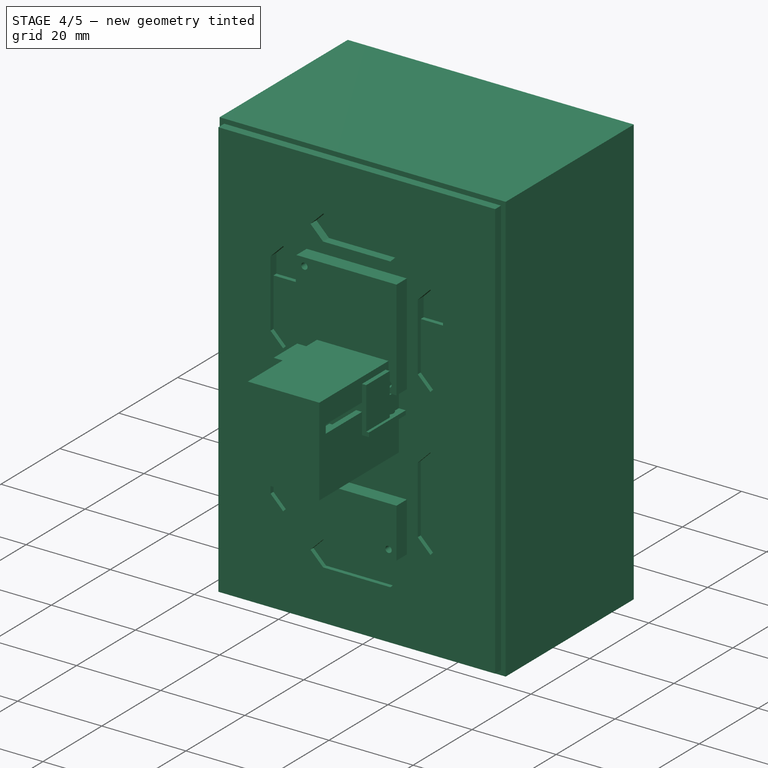
[diagram: stage 4 of 5 — iso view after this stage's code; geometry added in this stage tinted green]
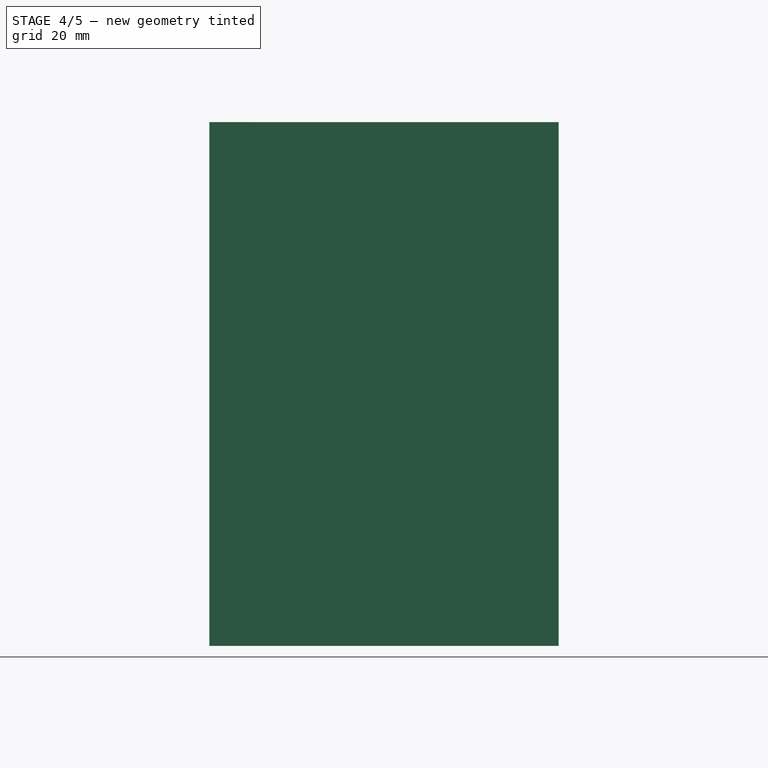
[diagram: stage 4 of 5 — front view after this stage's code; geometry added in this stage tinted green]
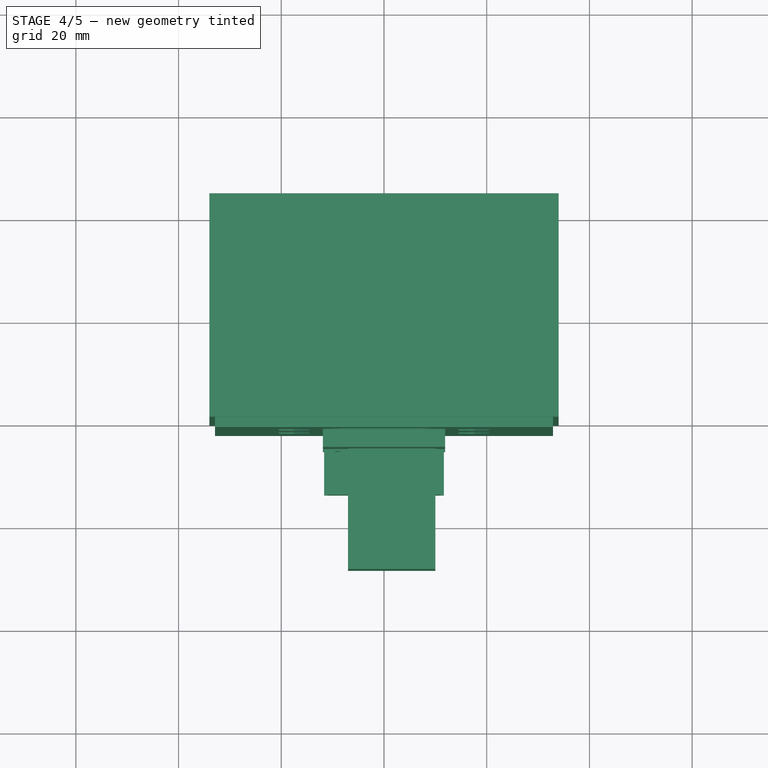
[diagram: stage 4 of 5 — top view after this stage's code; geometry added in this stage tinted green]
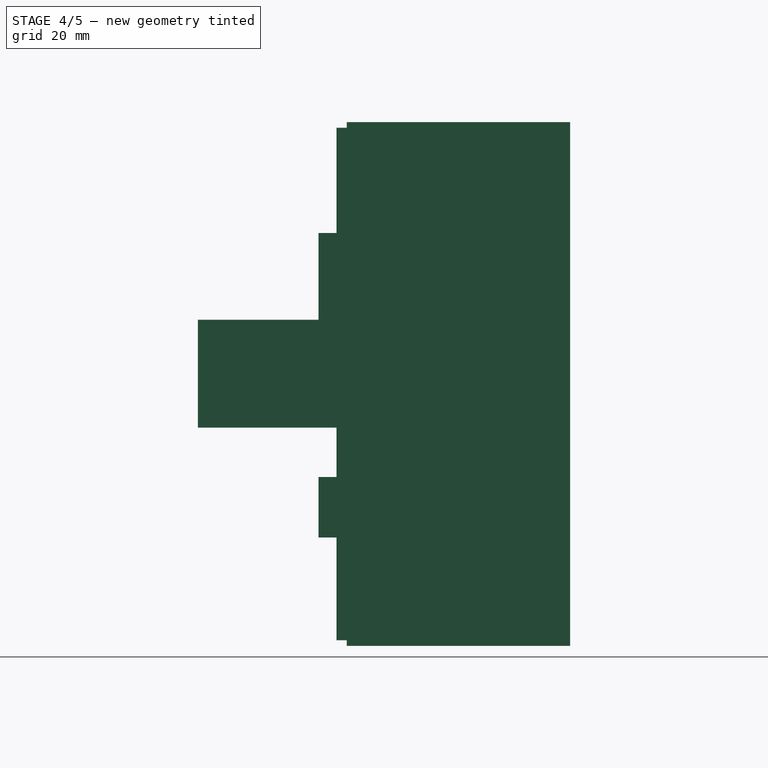
[diagram: stage 4 of 5 — right view after this stage's code; geometry added in this stage tinted green]
FEATURE [PartDesign::Body] Body018  label="Coil001"
  Group = -> [Sketch173,Pad115,Sketch181,Pad116,Sketch174,Pad120,Sketch182,Pad127,Sketch177,Pad123]
  Origin = -> Origin028
  Placement = pos=(3.5,-13,0) rot=(0,0,1;0rad)
  Tip = -> Pad123
FEATURE [App::Part] Part009  label="Clock Parts001"
  Group = -> [Body019,Body018,Body021]
  Origin = -> Origin032
  Placement = pos=(0,1,0) rot=(0,0,1;0rad)
FEATURE [Sketcher::SketchObject] Sketch192
  FullyConstrained = false
  MapMode = 5
  Support = -> [XY_Plane057]
  sketch-geometry (4):
    g0: LineSegment StartX=-3.5 StartY=6.82831 StartZ=0 EndX=3.5 EndY=6.82831 EndZ=0
    g1: LineSegment StartX=3.5 StartY=6.82831 StartZ=0 EndX=3.5 EndY=-7.57169 EndZ=0
    g2: LineSegment StartX=3.5 StartY=-7.57169 StartZ=0 EndX=-3.5 EndY=-7.57169 EndZ=0
    g3: LineSegment StartX=-3.5 StartY=-7.57169 StartZ=0 EndX=-3.5 EndY=6.82831 EndZ=0
  constraints (9):
    c: Coincident(g0,g1)
    c: Coincident(g1,g2)
    c: Coincident(g2,g3)
    c: Coincident(g3,g0)
    c: Vertical(g3)
    c: DistanceY(g1,g1) = 14.4
    c: DistanceX(g2,g2) = 7
    c: Symmetric(g0,g0,g-2)
    c: Horizontal(g2)
FEATURE [Sketcher::SketchObject] Sketch194
  FullyConstrained = true
  MapMode = 5
  Support = -> [XY_Plane048]
  sketch-geometry (2):
    g0: Circle CenterX=0 CenterY=0 CenterZ=0 NormalX=0 NormalY=0 NormalZ=1 AngleXU=0 Radius=1.025
    g1: Circle CenterX=0 CenterY=0 CenterZ=0 NormalX=0 NormalY=0 NormalZ=1 AngleXU=0 Radius=2.5
  constraints (4):
    c: Coincident(g0,g-1)
    c: Coincident(g1,g0)
    c: Radius(g1) = 2.5
    c: Radius(g0) = 1.025
FEATURE [Sketcher::SketchObject] Sketch198
  FullyConstrained = false
  MapMode = 5
  Support = -> [XY_Plane055]
  sketch-geometry (24):
    g0: LineSegment StartX=5.55 StartY=4.4 StartZ=0 EndX=5.55 EndY=-24.8 EndZ=0
    g1: LineSegment StartX=5.55 StartY=-24.8 StartZ=0 EndX=-5.55 EndY=-24.8 EndZ=0
    g2: LineSegment StartX=-5.55 StartY=-24.8 StartZ=0 EndX=-5.55 EndY=4.4 EndZ=0
    g3: LineSegment StartX=-5.55 StartY=4.4 StartZ=0 EndX=-1.65 EndY=4.4 EndZ=0
    g4: LineSegment StartX=-1.65 StartY=4.4 StartZ=0 EndX=-1.65 EndY=2.85788 EndZ=0
    g5: LineSegment StartX=-1.66888 StartY=-7.8506 StartZ=0 EndX=-2.25 EndY=-8.61046 EndZ=0
    g6: LineSegment StartX=-2.25 StartY=-8.61046 StartZ=0 EndX=-2.25 EndY=-20.65 EndZ=0
    g7: LineSegment StartX=-2.25 StartY=-20.65 StartZ=0 EndX=2.25 EndY=-20.65 EndZ=0
    g8: LineSegment StartX=1.66888 StartY=-7.87451 StartZ=0 EndX=1.66888 EndY=-2.8469 EndZ=0
    g9: LineSegment StartX=1.65 StartY=4.4 StartZ=0 EndX=5.55 EndY=4.4 EndZ=0
    g10: ArcOfCircle CenterX=2e-16 CenterY=-2e-16 CenterZ=0 NormalX=0 NormalY=0 NormalZ=1 AngleXU=0 Radius=3.3 StartAngle=2.0944 EndAngle=2.45182
    g11: ArcOfCircle CenterX=2e-16 CenterY=-2e-16 CenterZ=0 NormalX=0 NormalY=0 NormalZ=1 AngleXU=0 Radius=4.5 StartAngle=2.65607 EndAngle=3.62711
    g12: LineSegment StartX=-3.97995 StartY=2.1 StartZ=0 EndX=-2.54558 EndY=2.1 EndZ=0
    g13: LineSegment StartX=-3.97995 StartY=-2.1 StartZ=0 EndX=-2.54558 EndY=-2.1 EndZ=0
    g14: LineSegment StartX=2.54558 StartY=2.1 StartZ=0 EndX=3.97995 EndY=2.1 EndZ=0
    g15: ArcOfCircle CenterX=2e-16 CenterY=-2e-16 CenterZ=0 NormalX=0 NormalY=0 NormalZ=1 AngleXU=0 Radius=3.3 StartAngle=3.83137 EndAngle=4.18217
    g16: ArcOfCircle CenterX=-0.000102365 CenterY=0.000124091 CenterZ=0 NormalX=0 NormalY=0 NormalZ=1 AngleXU=0 Radius=3.3 StartAngle=0.689726 EndAngle=1.04716
    g17: LineSegment StartX=2.54558 StartY=-2.1 StartZ=0 EndX=3.97995 EndY=-2.1 EndZ=0
    g18: ArcOfCircle CenterX=4e-16 CenterY=0 CenterZ=0 NormalX=0 NormalY=0 NormalZ=1 AngleXU=0 Radius=4.5 StartAngle=5.79767 EndAngle=6.7687
    g19: LineSegment StartX=1.65 StartY=2.85795 StartZ=0 EndX=1.65 EndY=4.4 EndZ=0
    g20: LineSegment StartX=-1.66888 StartY=-2.8469 StartZ=0 EndX=-1.66888 EndY=-7.8506 EndZ=0
    g21: ArcOfCircle CenterX=0.000105409 CenterY=-0.000123728 CenterZ=0 NormalX=0 NormalY=0 NormalZ=1 AngleXU=0 Radius=3.29984 StartAngle=5.2426 EndAngle=5.59342
    g22: LineSegment StartX=2.25 StartY=-8.61046 StartZ=0 EndX=2.25 EndY=-20.65 EndZ=0
    g23: LineSegment StartX=1.66888 StartY=-7.87451 StartZ=0 EndX=2.25 EndY=-8.61046 EndZ=0
  constraints (60):
    c: Vertical(g0)
    c: Coincident(g0,g1)
    c: Horizontal(g1)
    c: Coincident(g1,g2)
    c: Vertical(g2)
    c: Coincident(g2,g3)
    c: Horizontal(g3)
    c: Coincident(g3,g4)
    c: Vertical(g4)
    c: Coincident(g20,g5)
    c: Coincident(g5,g6)
    c: Vertical(g6)
    c: Coincident(g6,g7)
    c: Coincident(g19,g9)
    c: Coincident(g9,g0)
    c: Coincident(g11,g10)
    c: Radius(g10) = 3.3
    c: Radius(g11) = 4.5
    c: Horizontal(g12)
    c: Horizontal(g13)
    c: PointOnObject(g14,g10)
    c: Coincident(g18,g14)
    c: Coincident(g11,g12)
    c: Equal(g10,g15)
    c: Coincident(g10,g12)
    c: Coincident(g10,g15)
    c: Equal(g15,g16)
    c: Symmetric(g0,g2,g-2)
    c: Coincident(g23,g22)
    c: Vertical(g22)
    c: Coincident(g22,g7)
    c: Symmetric(g7,g6,g-2)
    c: DistanceX(g0) = 5.55
    c: DistanceY(g0) = -24.8
    c: Vertical(g19)
    c: Vertical(g8)
    c: Vertical(g20)
    c: Symmetric(g3,g9,g-2)
    c: DistanceX(g9) = 1.65
    c: DistanceY(g9) = 4.4
    c: DistanceX(g7) = 2.25
    c: DistanceY(g7) = -20.65
    c: Coincident(g10,g4)
    c: Coincident(g16,g19)
    c: Coincident(g14,g16)
    c: Coincident(g17,g18)
    c: Coincident(g11,g13)
    c: Coincident(g13,g15)
    c: Coincident(g17,g21)
    c: Coincident(g8,g21)
    c: Coincident(g15,g20)
    c: Symmetric(g14,g17,g-1)
    c: Symmetric(g10,g13,g-1)
    c: Coincident(g8,g23)
    c: DistanceY(g17,g14) = 4.2
    c: Symmetric(g13,g17,g-2)
    c: Radius(g18) = 4.5
    c: Symmetric(g14,g11,g-2)
    c: Symmetric(g17,g11,g-2)
    c: Symmetric(g8,g15,g-2)
FEATURE [Sketcher::SketchObject] Sketch202
  FullyConstrained = true
  MapMode = 5
  Support = -> [XY_Plane035]
  sketch-geometry (4):
    g0: ArcOfCircle CenterX=0 CenterY=0 CenterZ=0 NormalX=0 NormalY=0 NormalZ=1 AngleXU=0 Radius=11.3 StartAngle=1.44862 EndAngle=2.40855
    g1: ArcOfCircle CenterX=0 CenterY=0 CenterZ=0 NormalX=0 NormalY=0 NormalZ=1 AngleXU=0 Radius=12 StartAngle=1.44862 EndAngle=2.40855
    g2: LineSegment StartX=-8.39754 StartY=7.56118 StartZ=0 EndX=-8.91774 EndY=8.02957 EndZ=0
    g3: LineSegment StartX=1.37712 StartY=11.2158 StartZ=0 EndX=1.46243 EndY=11.9106 EndZ=0
  constraints (12):
    c: Coincident(g0,g-1)
    c: Coincident(g1,g0)
    c: Radius(g0) = 11.3
    c: Radius(g1) = 12
    c: Coincident(g3,g1)
    c: Coincident(g3,g0)
    c: Coincident(g2,g0)
    c: Coincident(g2,g1)
    c: Angle(g-1,g3) = 1.44862
    c: Angle(g-1,g2) = 2.40855
    c: PointOnObject(g0,g2)
    c: PointOnObject(g0,g3)
FEATURE [Sketcher::SketchObject] Sketch204
  FullyConstrained = false
  MapMode = 5
  Support = -> [XY_Plane043]
  sketch-geometry (4):
    g0: LineSegment StartX=-3.5 StartY=6.82831 StartZ=0 EndX=3.5 EndY=6.82831 EndZ=0
    g1: LineSegment StartX=3.5 StartY=6.82831 StartZ=0 EndX=3.5 EndY=-7.57169 EndZ=0
    g2: LineSegment StartX=3.5 StartY=-7.57169 StartZ=0 EndX=-3.5 EndY=-7.57169 EndZ=0
    g3: LineSegment StartX=-3.5 StartY=-7.57169 StartZ=0 EndX=-3.5 EndY=6.82831 EndZ=0
  constraints (9):
    c: Coincident(g0,g1)
    c: Coincident(g1,g2)
    c: Coincident(g2,g3)
    c: Coincident(g3,g0)
    c: Vertical(g3)
    c: DistanceY(g1,g1) = 14.4
    c: DistanceX(g2,g2) = 7
    c: Symmetric(g0,g0,g-2)
    c: Horizontal(g2)
FEATURE [Sketcher::SketchObject] Sketch205
  FullyConstrained = true
  MapMode = 5
  Support = -> [XY_Plane045]
  sketch-geometry (1):
    g0: Circle CenterX=0 CenterY=0 CenterZ=0 NormalX=0 NormalY=0 NormalZ=1 AngleXU=0 Radius=0.375
  constraints (2):
    c: Coincident(g0,g-1)
    c: Radius(g0) = 0.375
FEATURE [Sketcher::SketchObject] Sketch206
  FullyConstrained = true
  MapMode = 5
  Support = -> [XY_Plane039]
  sketch-geometry (2):
    g0: Circle CenterX=0 CenterY=0 CenterZ=0 NormalX=0 NormalY=0 NormalZ=1 AngleXU=0 Radius=1.025
    g1: Circle CenterX=0 CenterY=0 CenterZ=0 NormalX=0 NormalY=0 NormalZ=1 AngleXU=0 Radius=2.5
  constraints (4):
    c: Coincident(g0,g-1)
    c: Coincident(g1,g0)
    c: Radius(g1) = 2.5
    c: Radius(g0) = 1.025
FEATURE [Sketcher::SketchObject] Sketch213
  FullyConstrained = false
  MapMode = 5
  Support = -> [XY_Plane047]
  sketch-geometry (24):
    g0: LineSegment StartX=5.55 StartY=4.4 StartZ=0 EndX=5.55 EndY=-24.8 EndZ=0
    g1: LineSegment StartX=5.55 StartY=-24.8 StartZ=0 EndX=-5.55 EndY=-24.8 EndZ=0
    g2: LineSegment StartX=-5.55 StartY=-24.8 StartZ=0 EndX=-5.55 EndY=4.4 EndZ=0
    g3: LineSegment StartX=-5.55 StartY=4.4 StartZ=0 EndX=-1.65 EndY=4.4 EndZ=0
    g4: LineSegment StartX=-1.65 StartY=4.4 StartZ=0 EndX=-1.65 EndY=2.85788 EndZ=0
    g5: LineSegment StartX=-1.66888 StartY=-7.8506 StartZ=0 EndX=-2.25 EndY=-8.61046 EndZ=0
    g6: LineSegment StartX=-2.25 StartY=-8.61046 StartZ=0 EndX=-2.25 EndY=-20.65 EndZ=0
    g7: LineSegment StartX=-2.25 StartY=-20.65 StartZ=0 EndX=2.25 EndY=-20.65 EndZ=0
    g8: LineSegment StartX=1.66888 StartY=-7.87451 StartZ=0 EndX=1.66888 EndY=-2.8469 EndZ=0
    g9: LineSegment StartX=1.65 StartY=4.4 StartZ=0 EndX=5.55 EndY=4.4 EndZ=0
    g10: ArcOfCircle CenterX=2e-16 CenterY=-2e-16 CenterZ=0 NormalX=0 NormalY=0 NormalZ=1 AngleXU=0 Radius=3.3 StartAngle=2.0944 EndAngle=2.45182
    g11: ArcOfCircle CenterX=2e-16 CenterY=-2e-16 CenterZ=0 NormalX=0 NormalY=0 NormalZ=1 AngleXU=0 Radius=4.5 StartAngle=2.65607 EndAngle=3.62711
    g12: LineSegment StartX=-3.97995 StartY=2.1 StartZ=0 EndX=-2.54558 EndY=2.1 EndZ=0
    g13: LineSegment StartX=-3.97995 StartY=-2.1 StartZ=0 EndX=-2.54558 EndY=-2.1 EndZ=0
    g14: LineSegment StartX=2.54558 StartY=2.1 StartZ=0 EndX=3.97995 EndY=2.1 EndZ=0
    g15: ArcOfCircle CenterX=2e-16 CenterY=-2e-16 CenterZ=0 NormalX=0 NormalY=0 NormalZ=1 AngleXU=0 Radius=3.3 StartAngle=3.83137 EndAngle=4.18217
    g16: ArcOfCircle CenterX=-0.000102365 CenterY=0.000124091 CenterZ=0 NormalX=0 NormalY=0 NormalZ=1 AngleXU=0 Radius=3.3 StartAngle=0.689726 EndAngle=1.04716
    g17: LineSegment StartX=2.54558 StartY=-2.1 StartZ=0 EndX=3.97995 EndY=-2.1 EndZ=0
    g18: ArcOfCircle CenterX=4e-16 CenterY=0 CenterZ=0 NormalX=0 NormalY=0 NormalZ=1 AngleXU=0 Radius=4.5 StartAngle=5.79767 EndAngle=6.7687
    g19: LineSegment StartX=1.65 StartY=2.85795 StartZ=0 EndX=1.65 EndY=4.4 EndZ=0
    g20: LineSegment StartX=-1.66888 StartY=-2.8469 StartZ=0 EndX=-1.66888 EndY=-7.8506 EndZ=0
    g21: ArcOfCircle CenterX=0.000105409 CenterY=-0.000123728 CenterZ=0 NormalX=0 NormalY=0 NormalZ=1 AngleXU=0 Radius=3.29984 StartAngle=5.2426 EndAngle=5.59342
    g22: LineSegment StartX=2.25 StartY=-8.61046 StartZ=0 EndX=2.25 EndY=-20.65 EndZ=0
    g23: LineSegment StartX=1.66888 StartY=-7.87451 StartZ=0 EndX=2.25 EndY=-8.61046 EndZ=0
  constraints (60):
    c: Vertical(g0)
    c: Coincident(g0,g1)
    c: Horizontal(g1)
    c: Coincident(g1,g2)
    c: Vertical(g2)
    c: Coincident(g2,g3)
    c: Horizontal(g3)
    c: Coincident(g3,g4)
    c: Vertical(g4)
    c: Coincident(g20,g5)
    c: Coincident(g5,g6)
    c: Vertical(g6)
    c: Coincident(g6,g7)
    c: Coincident(g19,g9)
    c: Coincident(g9,g0)
    c: Coincident(g11,g10)
    c: Radius(g10) = 3.3
    c: Radius(g11) = 4.5
    c: Horizontal(g12)
    c: Horizontal(g13)
    c: PointOnObject(g14,g10)
    c: Coincident(g18,g14)
    c: Coincident(g11,g12)
    c: Equal(g10,g15)
    c: Coincident(g10,g12)
    c: Coincident(g10,g15)
    c: Equal(g15,g16)
    c: Symmetric(g0,g2,g-2)
    c: Coincident(g23,g22)
    c: Vertical(g22)
    c: Coincident(g22,g7)
    c: Symmetric(g7,g6,g-2)
    c: DistanceX(g0) = 5.55
    c: DistanceY(g0) = -24.8
    c: Vertical(g19)
    c: Vertical(g8)
    c: Vertical(g20)
    c: Symmetric(g3,g9,g-2)
    c: DistanceX(g9) = 1.65
    c: DistanceY(g9) = 4.4
    c: DistanceX(g7) = 2.25
    c: DistanceY(g7) = -20.65
    c: Coincident(g10,g4)
    c: Coincident(g16,g19)
    c: Coincident(g14,g16)
    c: Coincident(g17,g18)
    c: Coincident(g11,g13)
    c: Coincident(g13,g15)
    c: Coincident(g17,g21)
    c: Coincident(g8,g21)
    c: Coincident(g15,g20)
    c: Symmetric(g14,g17,g-1)
    c: Symmetric(g10,g13,g-1)
    c: Coincident(g8,g23)
    c: DistanceY(g17,g14) = 4.2
    c: Symmetric(g13,g17,g-2)
    c: Radius(g18) = 4.5
    c: Symmetric(g14,g11,g-2)
    c: Symmetric(g17,g11,g-2)
    c: Symmetric(g8,g15,g-2)
FEATURE [Sketcher::SketchObject] Sketch217
  FullyConstrained = true
  MapMode = 5
  Support = -> [XY_Plane041]
  sketch-geometry (4):
    g0: ArcOfCircle CenterX=0 CenterY=0 CenterZ=0 NormalX=0 NormalY=0 NormalZ=1 AngleXU=0 Radius=11.3 StartAngle=1.44862 EndAngle=2.40855
    g1: ArcOfCircle CenterX=0 CenterY=0 CenterZ=0 NormalX=0 NormalY=0 NormalZ=1 AngleXU=0 Radius=12 StartAngle=1.44862 EndAngle=2.40855
    g2: LineSegment StartX=-8.39754 StartY=7.56118 StartZ=0 EndX=-8.91774 EndY=8.02957 EndZ=0
    g3: LineSegment StartX=1.37712 StartY=11.2158 StartZ=0 EndX=1.46243 EndY=11.9106 EndZ=0
  constraints (12):
    c: Coincident(g0,g-1)
    c: Coincident(g1,g0)
    c: Radius(g0) = 11.3
    c: Radius(g1) = 12
    c: Coincident(g3,g1)
    c: Coincident(g3,g0)
    c: Coincident(g2,g0)
    c: Coincident(g2,g1)
    c: Angle(g-1,g3) = 1.44862
    c: Angle(g-1,g2) = 2.40855
    c: PointOnObject(g0,g2)
    c: PointOnObject(g0,g3)
FEATURE [Sketcher::SketchObject] Sketch220
  FullyConstrained = true
  MapMode = 5
  Placement = pos=(0,0,0) rot=(1,0,0;1.5708rad)
  Support = -> [XZ_Plane046]
  sketch-geometry (4):
    g0: LineSegment StartX=-7 StartY=12.5 StartZ=0 EndX=10 EndY=12.5 EndZ=0
    g1: LineSegment StartX=10 StartY=12.5 StartZ=0 EndX=10 EndY=-8.5 EndZ=0
    g2: LineSegment StartX=10 StartY=-8.5 StartZ=0 EndX=-7 EndY=-8.5 EndZ=0
    g3: LineSegment StartX=-7 StartY=-8.5 StartZ=0 EndX=-7 EndY=12.5 EndZ=0
  constraints (12):
    c: Coincident(g0,g1)
    c: Coincident(g1,g2)
    c: Coincident(g2,g3)
    c: Coincident(g3,g0)
    c: Horizontal(g0)
    c: Horizontal(g2)
    c: Vertical(g1)
    c: Vertical(g3)
    c: DistanceX(g0) = -7
    c: DistanceY(g0) = 12.5
    c: DistanceX(g1) = 10
    c: DistanceY(g1) = -8.5
FEATURE [Sketcher::SketchObject] Sketch221
  FullyConstrained = true
  MapMode = 5
  sketch-geometry (4):
    g0: LineSegment StartX=-2 StartY=8 StartZ=0 EndX=2 EndY=8 EndZ=0
    g1: LineSegment StartX=2 StartY=8 StartZ=0 EndX=2 EndY=4 EndZ=0
    g2: LineSegment StartX=2 StartY=4 StartZ=0 EndX=-2 EndY=4 EndZ=0
    g3: LineSegment StartX=-2 StartY=4 StartZ=0 EndX=-2 EndY=8 EndZ=0
  constraints (11):
    c: Coincident(g0,g1)
    c: Coincident(g1,g2)
    c: Coincident(g2,g3)
    c: Coincident(g3,g0)
    c: Horizontal(g0)
    c: Vertical(g3)
    c: Symmetric(g2,g1,g-2)
    c: DistanceY(g1,g1) = 4
    c: DistanceX(g2,g2) = 4
    c: Vertical(g1)
    c: DistanceY(g-1,g1) = 4
FEATURE [Sketcher::SketchObject] Sketch222
  FullyConstrained = true
  MapMode = 5
  Support = -> [XY_Plane037]
  sketch-geometry (2):
    g0: Circle CenterX=0 CenterY=0 CenterZ=0 NormalX=0 NormalY=0 NormalZ=1 AngleXU=0 Radius=2.5
    g1: Circle CenterX=0 CenterY=0 CenterZ=0 NormalX=0 NormalY=0 NormalZ=1 AngleXU=0 Radius=0.5
  constraints (4):
    c: Coincident(g0,g-1)
    c: Radius(g0) = 2.5
    c: Coincident(g1,g0)
    c: Radius(g1) = 0.5
FEATURE [PartDesign::Pad] Pad128
  Direction = (1,1,1)
  Length = 2.4
  Length2 = 100
  Midplane = true
  Profile = -> Sketch206
  Type = 0
FEATURE [PartDesign::Body] Body035  label="Magnet003"
  Group = -> [Sketch206,Pad128]
  Origin = -> Origin040
  Tip = -> Pad128
FEATURE [PartDesign::Pad] Pad129
  Direction = (1,1,1)
  Length = 6
  Length2 = 100
  Midplane = true
  Profile = -> Sketch204
  Type = 0
FEATURE [Sketcher::SketchObject] Sketch211
  ExternalGeometry = -> [Pad129]
  FullyConstrained = false
  MapMode = 5
  Placement = pos=(0,-7.57169,0) rot=(1,0,0;1.5708rad)
  Support = -> [Pad129]
  sketch-geometry (4):
    g0: LineSegment StartX=-5 StartY=3.5 StartZ=0 EndX=5 EndY=3.5 EndZ=0
    g1: LineSegment StartX=5 StartY=3.5 StartZ=0 EndX=5 EndY=-3.5 EndZ=0
    g2: LineSegment StartX=5 StartY=-3.5 StartZ=0 EndX=-5 EndY=-3.5 EndZ=0
    g3: LineSegment StartX=-5 StartY=-3.5 StartZ=0 EndX=-5 EndY=3.5 EndZ=0
  constraints (10):
    c: Coincident(g0,g1)
    c: Coincident(g1,g2)
    c: Coincident(g2,g3)
    c: Coincident(g3,g0)
    c: Horizontal(g0)
    c: Vertical(g1)
    c: Vertical(g3)
    c: DistanceY(g1,g1) = 7
    c: DistanceX(g2,g2) = 10
    c: Symmetric(g2,g1,g-2)
FEATURE [PartDesign::Pad] Pad131
  Direction = (1,1,1)
  Length = 29
  Length2 = 100
  Placement = pos=(0,0,0) rot=(1,0,0;1.5708rad)
  Profile = -> Sketch220
  Type = 0
FEATURE [Sketcher::SketchObject] Sketch218
  ExternalGeometry = -> [Pad131]
  FullyConstrained = true
  MapMode = 5
  Placement = pos=(0,0,0) rot=(-1,0,0;1.5708rad)
  Support = -> [Pad131]
  sketch-geometry (4):
    g0: LineSegment StartX=-4.5 StartY=6.5 StartZ=0 EndX=8.6 EndY=6.5 EndZ=0
    g1: LineSegment StartX=8.6 StartY=6.5 StartZ=0 EndX=8.6 EndY=-10.5 EndZ=0
    g2: LineSegment StartX=8.6 StartY=-10.5 StartZ=0 EndX=-4.5 EndY=-10.5 EndZ=0
    g3: LineSegment StartX=-4.5 StartY=-10.5 StartZ=0 EndX=-4.5 EndY=6.5 EndZ=0
  constraints (12):
    c: Coincident(g0,g1)
    c: Coincident(g1,g2)
    c: Coincident(g2,g3)
    c: Coincident(g3,g0)
    c: Horizontal(g0)
    c: Horizontal(g2)
    c: Vertical(g1)
    c: Vertical(g3)
    c: DistanceX(g-3,g0) = 2.5
    c: DistanceY(g-3,g0) = -2
    c: DistanceX(g-4,g1) = -1.4
    c: DistanceY(g-4,g1) = 2
FEATURE [PartDesign::Pocket] Pocket023
  BaseFeature = -> Pad131
  Length = 25.7
  Length2 = 100
  Placement = pos=(0,0,0) rot=(1,0,0;1.5708rad)
  Profile = -> Sketch218
  Type = 0
FEATURE [Sketcher::SketchObject] Sketch215
  FullyConstrained = true
  MapMode = 5
  Placement = pos=(0,0,0) rot=(-1,0,0;1.5708rad)
  Support = -> [Pocket023]
  sketch-geometry (8):
    g0: LineSegment StartX=-5.75 StartY=0.6 StartZ=0 EndX=5.75 EndY=0.6 EndZ=0
    g1: LineSegment StartX=5.75 StartY=0.6 StartZ=0 EndX=5.75 EndY=-0.6 EndZ=0
    g2: LineSegment StartX=5.75 StartY=-0.6 StartZ=0 EndX=-5.75 EndY=-0.6 EndZ=0
    g3: LineSegment StartX=-5.75 StartY=-0.6 StartZ=0 EndX=-5.75 EndY=0.6 EndZ=0
    g4: LineSegment StartX=8.6 StartY=-5 StartZ=0 EndX=10 EndY=-5 EndZ=0
    g5: LineSegment StartX=10 StartY=-5 StartZ=0 EndX=10 EndY=-7 EndZ=0
    g6: LineSegment StartX=10 StartY=-7 StartZ=0 EndX=8.6 EndY=-7 EndZ=0
    g7: LineSegment StartX=8.6 StartY=-7 StartZ=0 EndX=8.6 EndY=-5 EndZ=0
  constraints (22):
    c: Coincident(g0,g1)
    c: Coincident(g1,g2)
    c: Coincident(g2,g3)
    c: Coincident(g3,g0)
    c: Horizontal(g2)
    c: Vertical(g3)
    c: Symmetric(g0,g0,g-2)
    c: Symmetric(g1,g0,g-1)
    c: DistanceX(g0,g0) = 11.5
    c: DistanceY(g3,g3) = 1.2
    c: Coincident(g4,g5)
    c: Coincident(g5,g6)
    c: Coincident(g6,g7)
    c: Coincident(g7,g4)
    c: Horizontal(g4)
    c: Horizontal(g6)
    c: Vertical(g5)
    c: Vertical(g7)
    c: DistanceX(g-1,g6) = 8.6
    c: DistanceX(g4,g4) = 1.4
    c: DistanceY(g4,g-1) = 5
    c: DistanceY(g5,g5) = 2
FEATURE [PartDesign::Pocket] Pocket024
  BaseFeature = -> Pocket023
  Length = 26.8
  Length2 = 100
  Placement = pos=(0,0,0) rot=(1,0,0;1.5708rad)
  Profile = -> Sketch215
  Type = 0
FEATURE [Sketcher::SketchObject] Sketch212
  FullyConstrained = true
  MapMode = 5
  Placement = pos=(0,-1.9e-15,-8.5) rot=(1,0,0;3.14159rad)
  Support = -> [Pocket024]
  sketch-geometry (1):
    g0: Circle CenterX=0 CenterY=2 CenterZ=0 NormalX=0 NormalY=0 NormalZ=1 AngleXU=0 Radius=0.6
  constraints (3):
    c: PointOnObject(g0,g-2)
    c: Radius(g0) = 0.6
    c: DistanceY(g-1,g0) = 2
FEATURE [PartDesign::Pocket] Pocket022
  BaseFeature = -> Pocket024
  Length = 50
  Length2 = 100
  Placement = pos=(0,0,0) rot=(1,0,0;1.5708rad)
  Profile = -> Sketch212
  Type = 0
FEATURE [Sketcher::SketchObject] Sketch214
  FullyConstrained = true
  MapMode = 5
  Placement = pos=(8.6,0,0) rot=(0.707107,0,0.707107;3.14159rad)
  Support = -> [Pocket022]
  sketch-geometry (4):
    g0: LineSegment StartX=-0.3 StartY=-7.5 StartZ=0 EndX=0.3 EndY=-7.5 EndZ=0
    g1: LineSegment StartX=0.3 StartY=-7.5 StartZ=0 EndX=0.3 EndY=-10.5 EndZ=0
    g2: LineSegment StartX=0.3 StartY=-10.5 StartZ=0 EndX=-0.3 EndY=-10.5 EndZ=0
    g3: LineSegment StartX=-0.3 StartY=-10.5 StartZ=0 EndX=-0.3 EndY=-7.5 EndZ=0
  constraints (11):
    c: Coincident(g0,g1)
    c: Coincident(g1,g2)
    c: Coincident(g2,g3)
    c: Coincident(g3,g0)
    c: Horizontal(g2)
    c: Vertical(g1)
    c: Vertical(g3)
    c: Symmetric(g0,g0,g-2)
    c: DistanceX(g0,g0) = 0.6
    c: DistanceY(g1,g-1) = 10.5
    c: DistanceY(g1,g1) = 3
FEATURE [PartDesign::Pocket] Pocket025
  BaseFeature = -> Pocket022
  Length = 2.5
  Length2 = 100
  Placement = pos=(0,0,0) rot=(1,0,0;1.5708rad)
  Profile = -> Sketch214
  Type = 0
FEATURE [PartDesign::Body] Body032  label="CaseBody003"
  Group = -> [Sketch220,Pad131,Sketch218,Pocket023,Sketch215,Pocket024,Sketch212,Pocket022,Sketch214,Pocket025]
  Origin = -> Origin034
  Tip = -> Pocket025
FEATURE [App::Part] Part010  label="Case002"
  Group = -> [Body032]
  Origin = -> Origin044
  Placement = pos=(0,3,0) rot=(0,0,1;0rad)
FEATURE [PartDesign::Pad] Pad132
  BaseFeature = -> Pad129
  Direction = (1,1,1)
  Length = 1
  Length2 = 100
  Profile = -> Sketch211
  Type = 0
FEATURE [Sketcher::SketchObject] Sketch208
  ExternalGeometry = -> [Pad132]
  FullyConstrained = false
  MapMode = 5
  Placement = pos=(0,6.82831,0) rot=(0,0.707107,0.707107;3.14159rad)
  Support = -> [Pad132]
  sketch-geometry (4):
    g0: LineSegment StartX=-5 StartY=3.5 StartZ=0 EndX=5 EndY=3.5 EndZ=0
    g1: LineSegment StartX=5 StartY=3.5 StartZ=0 EndX=5 EndY=-3.5 EndZ=0
    g2: LineSegment StartX=5 StartY=-3.5 StartZ=0 EndX=-5 EndY=-3.5 EndZ=0
    g3: LineSegment StartX=-5 StartY=-3.5 StartZ=0 EndX=-5 EndY=3.5 EndZ=0
  constraints (10):
    c: Coincident(g0,g1)
    c: Coincident(g1,g2)
    c: Coincident(g2,g3)
    c: Coincident(g3,g0)
    c: Horizontal(g0)
    c: Vertical(g1)
    c: Vertical(g3)
    c: DistanceY(g3,g3) = 7
    c: DistanceX(g2,g2) = 10
    c: Symmetric(g1,g2,g-2)
FEATURE [PartDesign::Pad] Pad133
  Direction = (1,1,1)
  Length = 25
  Length2 = 100
  Midplane = true
  Profile = -> Sketch205
  Type = 0
FEATURE [Sketcher::SketchObject] Sketch210
  FullyConstrained = true
  MapMode = 5
  Placement = pos=(0,0,1) rot=(0,0,1;0rad)
  Support = -> [Pad134]
  sketch-geometry (2):
    g0: Circle CenterX=0 CenterY=0 CenterZ=0 NormalX=0 NormalY=0 NormalZ=1 AngleXU=0 Radius=0.97
    g1: Circle CenterX=0 CenterY=0 CenterZ=0 NormalX=0 NormalY=0 NormalZ=1 AngleXU=0 Radius=0.55
  constraints (4):
    c: Coincident(g0,g-1)
    c: Radius(g0) = 0.97
    c: Coincident(g1,g0)
    c: Radius(g1) = 0.55
FEATURE [PartDesign::Pad] Pad135
  BaseFeature = -> Pad132
  Direction = (1,1,1)
  Length = 1
  Length2 = 100
  Profile = -> Sketch208
  Type = 0
FEATURE [PartDesign::Pad] Pad137
  Direction = (1,1,1)
  Length = 0.8
  Length2 = 100
  Midplane = true
  Profile = -> Sketch213
  Type = 0
FEATURE [PartDesign::Body] Body036  label="Plate003"
  Group = -> [Sketch213,Pad137]
  Origin = -> Origin036
  Tip = -> Pad137
FEATURE [PartDesign::Pad] Pad138
  Direction = (1,1,1)
  Length = 13.5
  Length2 = 100
  Profile = -> Sketch221
  Type = 0
FEATURE [Sketcher::SketchObject] Sketch219
  FullyConstrained = true
  MapMode = 5
  Placement = pos=(0,8,0) rot=(0,0.707107,0.707107;3.14159rad)
  Support = -> [Pad138]
  sketch-geometry (9):
    g0: Circle CenterX=0 CenterY=11.5 CenterZ=0 NormalX=0 NormalY=0 NormalZ=1 AngleXU=0 Radius=0.45
    g1: LineSegment StartX=-2 StartY=9.5 StartZ=0 EndX=-1.2 EndY=9.5 EndZ=0
    g2: LineSegment StartX=-1.2 StartY=9.5 StartZ=0 EndX=-1.2 EndY=0 EndZ=0
    g3: LineSegment StartX=-1.2 StartY=0 StartZ=0 EndX=-2 EndY=0 EndZ=0
    g4: LineSegment StartX=-2 StartY=0 StartZ=0 EndX=-2 EndY=9.5 EndZ=0
    g5: LineSegment StartX=2 StartY=9.5 StartZ=0 EndX=1.2 EndY=9.5 EndZ=0
    g6: LineSegment StartX=1.2 StartY=9.5 StartZ=0 EndX=1.2 EndY=0 EndZ=0
    g7: LineSegment StartX=1.2 StartY=0 StartZ=0 EndX=2 EndY=0 EndZ=0
    g8: LineSegment StartX=2 StartY=0 StartZ=0 EndX=2 EndY=9.5 EndZ=0
  constraints (27):
    c: PointOnObject(g0,g-2)
    c: DistanceY(g-1,g0) = 11.5
    c: Radius(g0) = 0.45
    c: Coincident(g1,g2)
    c: Coincident(g2,g3)
    c: Coincident(g3,g4)
    c: Coincident(g4,g1)
    c: Horizontal(g1)
    c: Horizontal(g3)
    c: Vertical(g2)
    c: Vertical(g4)
    c: PointOnObject(g2,g-1)
    c: DistanceX(g3,g-1) = 2
    c: DistanceX(g3,g3) = 0.8
    c: DistanceY(g4,g4) = 9.5
    c: Coincident(g5,g6)
    c: Coincident(g6,g7)
    c: Coincident(g7,g8)
    c: Coincident(g8,g5)
    c: Horizontal(g5)
    c: Horizontal(g7)
    c: Vertical(g6)
    c: Vertical(g8)
    c: DistanceY(g8,g8) = 9.5
    c: PointOnObject(g7,g-1)
    c: DistanceX(g7) = 2
    c: DistanceX(g7,g7) = 0.8
FEATURE [PartDesign::Pocket] Pocket026
  BaseFeature = -> Pad138
  Length = 5
  Length2 = 100
  Profile = -> Sketch219
  Type = 0
FEATURE [PartDesign::Body] Body033  label="Segment_Pole003"
  Group = -> [Sketch221,Sketch219,Pad138,Pocket026]
  Origin = -> Origin045
  Placement = pos=(0,11.5,2) rot=(1,0,0;1.5708rad)
  Tip = -> Pocket026
FEATURE [PartDesign::Pad] Pad139
  BaseFeature = -> Pad133
  Direction = (1,1,1)
  Length = 0.5
  Length2 = 100
  Profile = -> Sketch207
  Type = 0
FEATURE [PartDesign::Body] Body030  label="Pin003"
  Group = -> [Sketch205,Pad133,Sketch207,Pad139]
  Origin = -> Origin038
  Placement = pos=(0,0,2) rot=(0,0,1;0rad)
  Tip = -> Pad139
FEATURE [PartDesign::Pad] Pad140
  BaseFeature = -> Pad135
  Direction = (1,1,1)
  Length = 2.3
  Length2 = 100
  Profile = -> Sketch216
  Type = 0
FEATURE [Sketcher::SketchObject] Sketch209
  FullyConstrained = false
  MapMode = 5
  Placement = pos=(0,0,2.3) rot=(0,0,1;0rad)
  Support = -> [Pad140]
  sketch-geometry (2):
    g0: Circle CenterX=-2.5 CenterY=-9.38461 CenterZ=0 NormalX=0 NormalY=0 NormalZ=1 AngleXU=0 Radius=0.35
    g1: Circle CenterX=2.5 CenterY=-9.38461 CenterZ=0 NormalX=0 NormalY=0 NormalZ=1 AngleXU=0 Radius=0.35
  constraints (4):
    c: Symmetric(g1,g0,g-2)
    c: Radius(g1) = 0.35
    c: Equal(g1,g0)
    c: DistanceX(g0,g1) = 5
FEATURE [PartDesign::Pad] Pad130
  BaseFeature = -> Pad140
  Direction = (1,1,1)
  Length = 3
  Length2 = 100
  Profile = -> Sketch209
  Type = 0
FEATURE [PartDesign::Body] Body037  label="Coil003"
  Group = -> [Sketch204,Pad129,Sketch211,Pad132,Sketch208,Pad135,Sketch216,Pad140,Sketch209,Pad130]
  Origin = -> Origin042
  Placement = pos=(3.5,-13,0) rot=(0,0,1;0rad)
  Tip = -> Pad130
FEATURE [App::Part] Part011  label="Clock Parts002"
  Group = -> [Body036,Body037,Body035]
  Origin = -> Origin035
  Placement = pos=(0,1,0) rot=(0,0,1;0rad)
FEATURE [PartDesign::Pad] Pad141
  Direction = (1,1,1)
  Length = 22
  Length2 = 100
  Profile = -> Sketch217
  Type = 0
FEATURE [PartDesign::Body] Body034  label="Segment_Wing003"
  Group = -> [Sketch217,Pad141]
  Origin = -> Origin043
  Placement = pos=(0,0,-9) rot=(0,0,1;0rad)
  Tip = -> Pad141
FEATURE [Part::MultiFuse] Fusion003  label="Segment_ON003"
  Placement = pos=(0,0,0) rot=(0,0,-1;0.506145rad)
  Shapes = -> [Body033,Body034]
FEATURE [Sketcher::SketchObject] Sketch226
  FullyConstrained = true
  MapMode = 5
  Support = -> [XY_Plane053]
  sketch-geometry (2):
    g0: Circle CenterX=0 CenterY=0 CenterZ=0 NormalX=0 NormalY=0 NormalZ=1 AngleXU=0 Radius=2.5
    g1: Circle CenterX=0 CenterY=0 CenterZ=0 NormalX=0 NormalY=0 NormalZ=1 AngleXU=0 Radius=0.5
  constraints (4):
    c: Coincident(g0,g-1)
    c: Radius(g0) = 2.5
    c: Coincident(g1,g0)
    c: Radius(g1) = 0.5
FEATURE [Sketcher::SketchObject] Sketch227
  FullyConstrained = true
  MapMode = 5
  Placement = pos=(0,0,0) rot=(1,0,0;1.5708rad)
  Support = -> [XZ_Plane054]
  sketch-geometry (4):
    g0: LineSegment StartX=-7 StartY=12.5 StartZ=0 EndX=10 EndY=12.5 EndZ=0
    g1: LineSegment StartX=10 StartY=12.5 StartZ=0 EndX=10 EndY=-8.5 EndZ=0
    g2: LineSegment StartX=10 StartY=-8.5 StartZ=0 EndX=-7 EndY=-8.5 EndZ=0
    g3: LineSegment StartX=-7 StartY=-8.5 StartZ=0 EndX=-7 EndY=12.5 EndZ=0
  constraints (12):
    c: Coincident(g0,g1)
    c: Coincident(g1,g2)
    c: Coincident(g2,g3)
    c: Coincident(g3,g0)
    c: Horizontal(g0)
    c: Horizontal(g2)
    c: Vertical(g1)
    c: Vertical(g3)
    c: DistanceX(g0) = -7
    c: DistanceY(g0) = 12.5
    c: DistanceX(g1) = 10
    c: DistanceY(g1) = -8.5
FEATURE [Sketcher::SketchObject] Sketch228
  FullyConstrained = true
  MapMode = 5
  sketch-geometry (4):
    g0: LineSegment StartX=-2 StartY=8 StartZ=0 EndX=2 EndY=8 EndZ=0
    g1: LineSegment StartX=2 StartY=8 StartZ=0 EndX=2 EndY=4 EndZ=0
    g2: LineSegment StartX=2 StartY=4 StartZ=0 EndX=-2 EndY=4 EndZ=0
    g3: LineSegment StartX=-2 StartY=4 StartZ=0 EndX=-2 EndY=8 EndZ=0
  constraints (11):
    c: Coincident(g0,g1)
    c: Coincident(g1,g2)
    c: Coincident(g2,g3)
    c: Coincident(g3,g0)
    c: Horizontal(g0)
    c: Vertical(g3)
    c: Symmetric(g2,g1,g-2)
    c: DistanceY(g1,g1) = 4
    c: DistanceX(g2,g2) = 4
    c: Vertical(g1)
    c: DistanceY(g-1,g1) = 4
FEATURE [Sketcher::SketchObject] Sketch229
  FullyConstrained = true
  MapMode = 5
  Support = -> [XY_Plane051]
  sketch-geometry (1):
    g0: Circle CenterX=0 CenterY=0 CenterZ=0 NormalX=0 NormalY=0 NormalZ=1 AngleXU=0 Radius=0.375
  constraints (2):
    c: Coincident(g0,g-1)
    c: Radius(g0) = 0.375
FEATURE [PartDesign::Pad] Pad142
  Direction = (1,1,1)
  Length = 25
  Length2 = 100
  Midplane = true
  Profile = -> Sketch229
  Type = 0
FEATURE [Sketcher::SketchObject] Sketch200
  ExternalGeometry = -> [Pad143]
  FullyConstrained = false
  MapMode = 5
  Placement = pos=(0,-7.57169,0) rot=(1,0,0;1.5708rad)
  Support = -> [Pad143]
  sketch-geometry (4):
    g0: LineSegment StartX=-5 StartY=3.5 StartZ=0 EndX=5 EndY=3.5 EndZ=0
    g1: LineSegment StartX=5 StartY=3.5 StartZ=0 EndX=5 EndY=-3.5 EndZ=0
    g2: LineSegment StartX=5 StartY=-3.5 StartZ=0 EndX=-5 EndY=-3.5 EndZ=0
    g3: LineSegment StartX=-5 StartY=-3.5 StartZ=0 EndX=-5 EndY=3.5 EndZ=0
  constraints (10):
    c: Coincident(g0,g1)
    c: Coincident(g1,g2)
    c: Coincident(g2,g3)
    c: Coincident(g3,g0)
    c: Horizontal(g0)
    c: Vertical(g1)
    c: Vertical(g3)
    c: DistanceY(g1,g1) = 7
    c: DistanceX(g2,g2) = 10
    c: Symmetric(g2,g1,g-2)
FEATURE [PartDesign::Pad] Pad144
  BaseFeature = -> Pad143
  Direction = (1,1,1)
  Length = 1
  Length2 = 100
  Profile = -> Sketch200
  Type = 0
FEATURE [Sketcher::SketchObject] Sketch193
  ExternalGeometry = -> [Pad144]
  FullyConstrained = false
  MapMode = 5
  Placement = pos=(0,6.82831,0) rot=(0,0.707107,0.707107;3.14159rad)
  Support = -> [Pad144]
  sketch-geometry (4):
    g0: LineSegment StartX=-5 StartY=3.5 StartZ=0 EndX=5 EndY=3.5 EndZ=0
    g1: LineSegment StartX=5 StartY=3.5 StartZ=0 EndX=5 EndY=-3.5 EndZ=0
    g2: LineSegment StartX=5 StartY=-3.5 StartZ=0 EndX=-5 EndY=-3.5 EndZ=0
    g3: LineSegment StartX=-5 StartY=-3.5 StartZ=0 EndX=-5 EndY=3.5 EndZ=0
  constraints (10):
    c: Coincident(g0,g1)
    c: Coincident(g1,g2)
    c: Coincident(g2,g3)
    c: Coincident(g3,g0)
    c: Horizontal(g0)
    c: Vertical(g1)
    c: Vertical(g3)
    c: DistanceY(g3,g3) = 7
    c: DistanceX(g2,g2) = 10
    c: Symmetric(g1,g2,g-2)
FEATURE [PartDesign::Pad] Pad145
  Direction = (1,1,1)
  Length = 29
  Length2 = 100
  Placement = pos=(0,0,0) rot=(1,0,0;1.5708rad)
  Profile = -> Sketch227
  Type = 0
FEATURE [Sketcher::SketchObject] Sketch223
  ExternalGeometry = -> [Pad145]
  FullyConstrained = true
  MapMode = 5
  Placement = pos=(0,0,0) rot=(-1,0,0;1.5708rad)
  Support = -> [Pad145]
  sketch-geometry (4):
    g0: LineSegment StartX=-4.5 StartY=6.5 StartZ=0 EndX=8.6 EndY=6.5 EndZ=0
    g1: LineSegment StartX=8.6 StartY=6.5 StartZ=0 EndX=8.6 EndY=-10.5 EndZ=0
    g2: LineSegment StartX=8.6 StartY=-10.5 StartZ=0 EndX=-4.5 EndY=-10.5 EndZ=0
    g3: LineSegment StartX=-4.5 StartY=-10.5 StartZ=0 EndX=-4.5 EndY=6.5 EndZ=0
  constraints (12):
    c: Coincident(g0,g1)
    c: Coincident(g1,g2)
    c: Coincident(g2,g3)
    c: Coincident(g3,g0)
    c: Horizontal(g0)
    c: Horizontal(g2)
    c: Vertical(g1)
    c: Vertical(g3)
    c: DistanceX(g-3,g0) = 2.5
    c: DistanceY(g-3,g0) = -2
    c: DistanceX(g-4,g1) = -1.4
    c: DistanceY(g-4,g1) = 2
FEATURE [PartDesign::Pocket] Pocket017
  BaseFeature = -> Pad145
  Length = 25.7
  Length2 = 100
  Placement = pos=(0,0,0) rot=(1,0,0;1.5708rad)
  Profile = -> Sketch223
  Type = 0
FEATURE [Sketcher::SketchObject] Sketch224
  FullyConstrained = true
  MapMode = 5
  Placement = pos=(0,0,0) rot=(-1,0,0;1.5708rad)
  Support = -> [Pocket017]
  sketch-geometry (8):
    g0: LineSegment StartX=-5.75 StartY=0.6 StartZ=0 EndX=5.75 EndY=0.6 EndZ=0
    g1: LineSegment StartX=5.75 StartY=0.6 StartZ=0 EndX=5.75 EndY=-0.6 EndZ=0
    g2: LineSegment StartX=5.75 StartY=-0.6 StartZ=0 EndX=-5.75 EndY=-0.6 EndZ=0
    g3: LineSegment StartX=-5.75 StartY=-0.6 StartZ=0 EndX=-5.75 EndY=0.6 EndZ=0
    g4: LineSegment StartX=8.6 StartY=-5 StartZ=0 EndX=10 EndY=-5 EndZ=0
    g5: LineSegment StartX=10 StartY=-5 StartZ=0 EndX=10 EndY=-7 EndZ=0
    g6: LineSegment StartX=10 StartY=-7 StartZ=0 EndX=8.6 EndY=-7 EndZ=0
    g7: LineSegment StartX=8.6 StartY=-7 StartZ=0 EndX=8.6 EndY=-5 EndZ=0
  constraints (22):
    c: Coincident(g0,g1)
    c: Coincident(g1,g2)
    c: Coincident(g2,g3)
    c: Coincident(g3,g0)
    c: Horizontal(g2)
    c: Vertical(g3)
    c: Symmetric(g0,g0,g-2)
    c: Symmetric(g1,g0,g-1)
    c: DistanceX(g0,g0) = 11.5
    c: DistanceY(g3,g3) = 1.2
    c: Coincident(g4,g5)
    c: Coincident(g5,g6)
    c: Coincident(g6,g7)
    c: Coincident(g7,g4)
    c: Horizontal(g4)
    c: Horizontal(g6)
    c: Vertical(g5)
    c: Vertical(g7)
    c: DistanceX(g-1,g6) = 8.6
    c: DistanceX(g4,g4) = 1.4
    c: DistanceY(g4,g-1) = 5
    c: DistanceY(g5,g5) = 2
FEATURE [PartDesign::Pocket] Pocket018
  BaseFeature = -> Pocket017
  Length = 26.8
  Length2 = 100
  Placement = pos=(0,0,0) rot=(1,0,0;1.5708rad)
  Profile = -> Sketch224
  Type = 0
FEATURE [Sketcher::SketchObject] Sketch197
  FullyConstrained = true
  MapMode = 5
  Placement = pos=(0,-1.9e-15,-8.5) rot=(1,0,0;3.14159rad)
  Support = -> [Pocket018]
  sketch-geometry (1):
    g0: Circle CenterX=0 CenterY=2 CenterZ=0 NormalX=0 NormalY=0 NormalZ=1 AngleXU=0 Radius=0.6
  constraints (3):
    c: PointOnObject(g0,g-2)
    c: Radius(g0) = 0.6
    c: DistanceY(g-1,g0) = 2
FEATURE [PartDesign::Pocket] Pocket019
  BaseFeature = -> Pocket018
  Length = 50
  Length2 = 100
  Placement = pos=(0,0,0) rot=(1,0,0;1.5708rad)
  Profile = -> Sketch197
  Type = 0
FEATURE [Sketcher::SketchObject] Sketch203
  FullyConstrained = true
  MapMode = 5
  Placement = pos=(8.6,0,0) rot=(0.707107,0,0.707107;3.14159rad)
  Support = -> [Pocket019]
  sketch-geometry (4):
    g0: LineSegment StartX=-0.3 StartY=-7.5 StartZ=0 EndX=0.3 EndY=-7.5 EndZ=0
    g1: LineSegment StartX=0.3 StartY=-7.5 StartZ=0 EndX=0.3 EndY=-10.5 EndZ=0
    g2: LineSegment StartX=0.3 StartY=-10.5 StartZ=0 EndX=-0.3 EndY=-10.5 EndZ=0
    g3: LineSegment StartX=-0.3 StartY=-10.5 StartZ=0 EndX=-0.3 EndY=-7.5 EndZ=0
  constraints (11):
    c: Coincident(g0,g1)
    c: Coincident(g1,g2)
    c: Coincident(g2,g3)
    c: Coincident(g3,g0)
    c: Horizontal(g2)
    c: Vertical(g1)
    c: Vertical(g3)
    c: Symmetric(g0,g0,g-2)
    c: DistanceX(g0,g0) = 0.6
    c: DistanceY(g1,g-1) = 10.5
    c: DistanceY(g1,g1) = 3
FEATURE [PartDesign::Pocket] Pocket020
  BaseFeature = -> Pocket019
  Length = 2.5
  Length2 = 100
  Placement = pos=(0,0,0) rot=(1,0,0;1.5708rad)
  Profile = -> Sketch203
  Type = 0
FEATURE [Sketcher::SketchObject] Sketch199
  FullyConstrained = true
  MapMode = 5
  Placement = pos=(0,0,1) rot=(0,0,1;0rad)
  Support = -> [Pad146]
  sketch-geometry (2):
    g0: Circle CenterX=0 CenterY=0 CenterZ=0 NormalX=0 NormalY=0 NormalZ=1 AngleXU=0 Radius=0.97
    g1: Circle CenterX=0 CenterY=0 CenterZ=0 NormalX=0 NormalY=0 NormalZ=1 AngleXU=0 Radius=0.55
  constraints (4):
    c: Coincident(g0,g-1)
    c: Radius(g0) = 0.97
    c: Coincident(g1,g0)
    c: Radius(g1) = 0.55
FEATURE [PartDesign::Pad] Pad147
  Direction = (1,1,1)
  Length = 2.4
  Length2 = 100
  Midplane = true
  Profile = -> Sketch194
  Type = 0
FEATURE [PartDesign::Body] Body029  label="Magnet002"
  Group = -> [Sketch194,Pad147]
  Origin = -> Origin055
  Tip = -> Pad147
FEATURE [PartDesign::Pad] Pad148
  BaseFeature = -> Pad144
  Direction = (1,1,1)
  Length = 1
  Length2 = 100
  Profile = -> Sketch193
  Type = 0
FEATURE [PartDesign::Pad] Pad150
  Direction = (1,1,1)
  Length = 0.8
  Length2 = 100
  Midplane = true
  Profile = -> Sketch198
  Type = 0
FEATURE [PartDesign::Body] Body027  label="Plate002"
  Group = -> [Sketch198,Pad150]
  Origin = -> Origin046
  Tip = -> Pad150
FEATURE [PartDesign::Pad] Pad152
  BaseFeature = -> Pad142
  Direction = (1,1,1)
  Length = 0.5
  Length2 = 100
  Profile = -> Sketch195
  Type = 0
FEATURE [PartDesign::Body] Body022  label="Pin002"
  Group = -> [Sketch229,Pad142,Sketch195,Pad152]
  Origin = -> Origin048
  Placement = pos=(0,0,2) rot=(0,0,1;0rad)
  Tip = -> Pad152
FEATURE [PartDesign::Pad] Pad153
  Direction = (1,1,1)
  Length = 13.5
  Length2 = 100
  Profile = -> Sketch228
  Type = 0
FEATURE [Sketcher::SketchObject] Sketch225
  FullyConstrained = true
  MapMode = 5
  Placement = pos=(0,8,0) rot=(0,0.707107,0.707107;3.14159rad)
  Support = -> [Pad153]
  sketch-geometry (9):
    g0: Circle CenterX=0 CenterY=11.5 CenterZ=0 NormalX=0 NormalY=0 NormalZ=1 AngleXU=0 Radius=0.45
    g1: LineSegment StartX=-2 StartY=9.5 StartZ=0 EndX=-1.2 EndY=9.5 EndZ=0
    g2: LineSegment StartX=-1.2 StartY=9.5 StartZ=0 EndX=-1.2 EndY=0 EndZ=0
    g3: LineSegment StartX=-1.2 StartY=0 StartZ=0 EndX=-2 EndY=0 EndZ=0
    g4: LineSegment StartX=-2 StartY=0 StartZ=0 EndX=-2 EndY=9.5 EndZ=0
    g5: LineSegment StartX=2 StartY=9.5 StartZ=0 EndX=1.2 EndY=9.5 EndZ=0
    g6: LineSegment StartX=1.2 StartY=9.5 StartZ=0 EndX=1.2 EndY=0 EndZ=0
    g7: LineSegment StartX=1.2 StartY=0 StartZ=0 EndX=2 EndY=0 EndZ=0
    g8: LineSegment StartX=2 StartY=0 StartZ=0 EndX=2 EndY=9.5 EndZ=0
  constraints (27):
    c: PointOnObject(g0,g-2)
    c: DistanceY(g-1,g0) = 11.5
    c: Radius(g0) = 0.45
    c: Coincident(g1,g2)
    c: Coincident(g2,g3)
    c: Coincident(g3,g4)
    c: Coincident(g4,g1)
    c: Horizontal(g1)
    c: Horizontal(g3)
    c: Vertical(g2)
    c: Vertical(g4)
    c: PointOnObject(g2,g-1)
    c: DistanceX(g3,g-1) = 2
    c: DistanceX(g3,g3) = 0.8
    c: DistanceY(g4,g4) = 9.5
    c: Coincident(g5,g6)
    c: Coincident(g6,g7)
    c: Coincident(g7,g8)
    c: Coincident(g8,g5)
    c: Horizontal(g5)
    c: Horizontal(g7)
    c: Vertical(g6)
    c: Vertical(g8)
    c: DistanceY(g8,g8) = 9.5
    c: PointOnObject(g7,g-1)
    c: DistanceX(g7) = 2
    c: DistanceX(g7,g7) = 0.8
FEATURE [PartDesign::Pocket] Pocket021
  BaseFeature = -> Pad153
  Length = 5
  Length2 = 100
  Profile = -> Sketch225
  Type = 0
FEATURE [PartDesign::Body] Body025  label="Segment_Pole002"
  Group = -> [Sketch228,Sketch225,Pad153,Pocket021]
  Origin = -> Origin054
  Placement = pos=(0,11.5,2) rot=(1,0,0;1.5708rad)
  Tip = -> Pocket021
FEATURE [PartDesign::Pad] Pad154
  Direction = (1,1,1)
  Length = 22
  Length2 = 100
  Profile = -> Sketch202
  Type = 0
FEATURE [PartDesign::Body] Body028  label="Segment_Wing002"
  Group = -> [Sketch202,Pad154]
  Origin = -> Origin050
  Placement = pos=(0,0,-9) rot=(0,0,1;0rad)
  Tip = -> Pad154
FEATURE [Part::MultiFuse] Fusion002  label="Segment_ON002"
  Placement = pos=(0,0,0) rot=(0,0,-1;0.506145rad)
  Shapes = -> [Body025,Body028]
FEATURE [PartDesign::Pad] Pad155
  BaseFeature = -> Pad148
  Direction = (1,1,1)
  Length = 2.3
  Length2 = 100
  Profile = -> Sketch201
  Type = 0
FEATURE [Sketcher::SketchObject] Sketch196
  FullyConstrained = false
  MapMode = 5
  Placement = pos=(0,0,2.3) rot=(0,0,1;0rad)
  Support = -> [Pad155]
  sketch-geometry (2):
    g0: Circle CenterX=-2.5 CenterY=-9.38461 CenterZ=0 NormalX=0 NormalY=0 NormalZ=1 AngleXU=0 Radius=0.35
    g1: Circle CenterX=2.5 CenterY=-9.38461 CenterZ=0 NormalX=0 NormalY=0 NormalZ=1 AngleXU=0 Radius=0.35
  constraints (4):
    c: Symmetric(g1,g0,g-2)
    c: Radius(g1) = 0.35
    c: Equal(g1,g0)
    c: DistanceX(g0,g1) = 5
FEATURE [PartDesign::Pad] Pad151
  BaseFeature = -> Pad155
  Direction = (1,1,1)
  Length = 3
  Length2 = 100
  Profile = -> Sketch196
  Type = 0
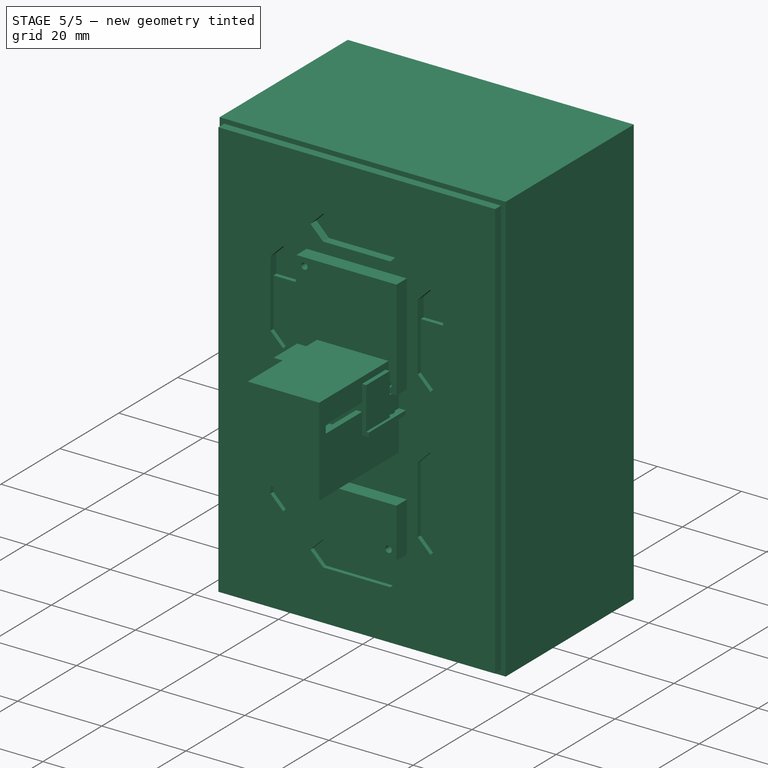
[diagram: stage 5 of 5 — iso view after this stage's code; geometry added in this stage tinted green]
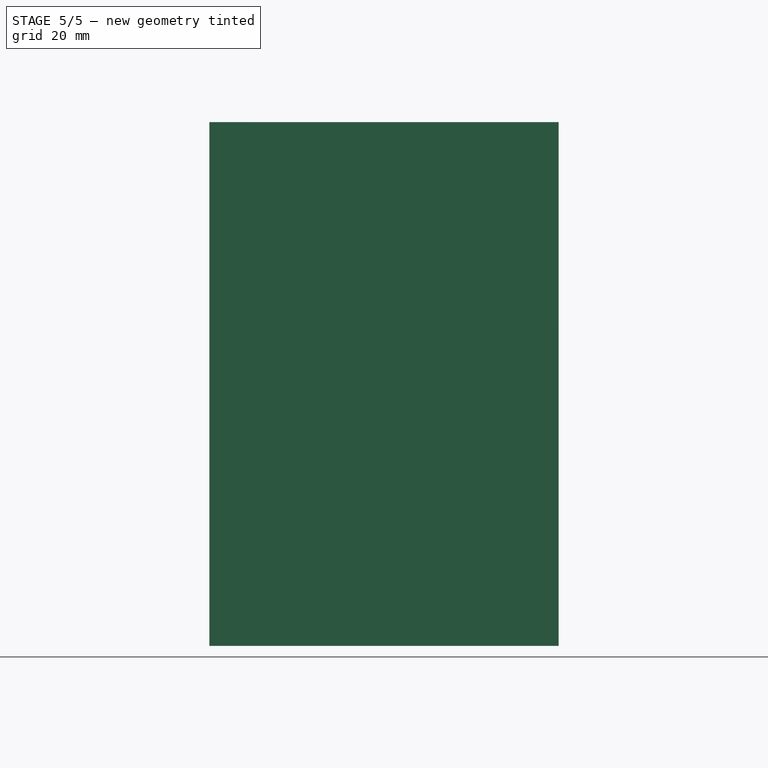
[diagram: stage 5 of 5 — front view after this stage's code; geometry added in this stage tinted green]
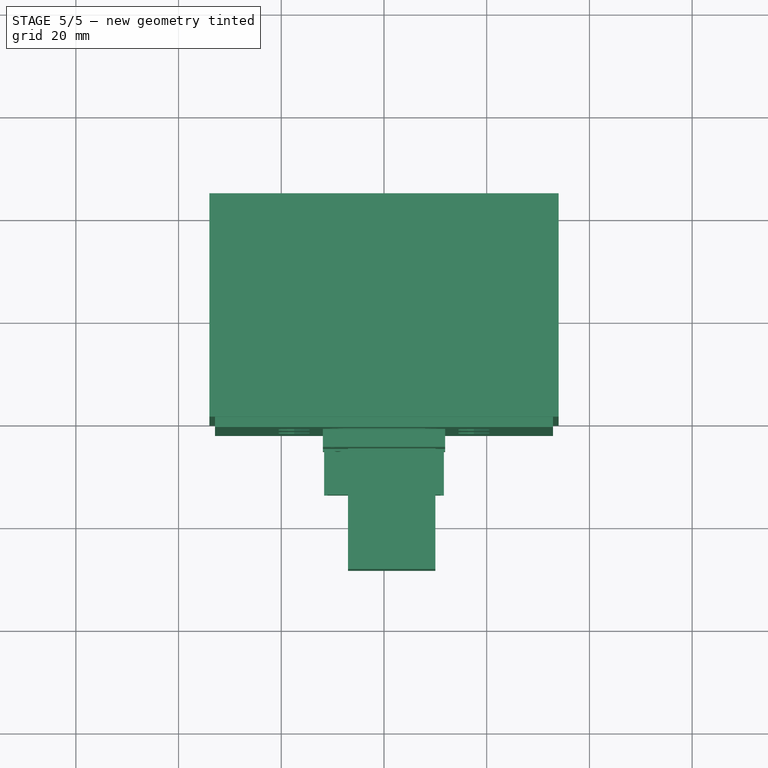
[diagram: stage 5 of 5 — top view after this stage's code; geometry added in this stage tinted green]
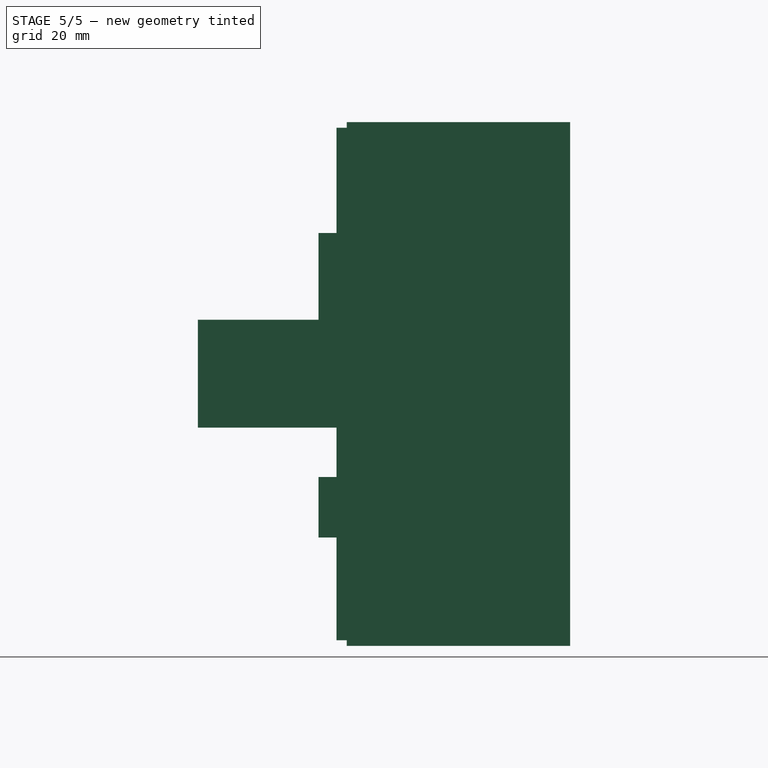
[diagram: stage 5 of 5 — right view after this stage's code; geometry added in this stage tinted green]
FEATURE [Sketcher::SketchObject] Sketch006
  FullyConstrained = true
  MapMode = 5
  sketch-geometry (4):
    g0: LineSegment StartX=-2 StartY=8 StartZ=0 EndX=2 EndY=8 EndZ=0
    g1: LineSegment StartX=2 StartY=8 StartZ=0 EndX=2 EndY=4 EndZ=0
    g2: LineSegment StartX=2 StartY=4 StartZ=0 EndX=-2 EndY=4 EndZ=0
    g3: LineSegment StartX=-2 StartY=4 StartZ=0 EndX=-2 EndY=8 EndZ=0
  constraints (11):
    c: Coincident(g0,g1)
    c: Coincident(g1,g2)
    c: Coincident(g2,g3)
    c: Coincident(g3,g0)
    c: Horizontal(g0)
    c: Vertical(g3)
    c: Symmetric(g2,g1,g-2)
    c: DistanceY(g1,g1) = 4
    c: DistanceX(g2,g2) = 4
    c: Vertical(g1)
    c: DistanceY(g-1,g1) = 4
FEATURE [Sketcher::SketchObject] Sketch008
  FullyConstrained = true
  MapMode = 5
  Support = -> [XY_Plane008]
  sketch-geometry (1):
    g0: Circle CenterX=0 CenterY=0 CenterZ=0 NormalX=0 NormalY=0 NormalZ=1 AngleXU=0 Radius=0.375
  constraints (2):
    c: Coincident(g0,g-1)
    c: Radius(g0) = 0.375
FEATURE [PartDesign::Pad] Pad007
  Direction = (1,1,1)
  Length = 25
  Length2 = 100
  Midplane = true
  Profile = -> Sketch008
  Type = 0
FEATURE [Sketcher::SketchObject] Sketch012
  FullyConstrained = true
  MapMode = 5
  Placement = pos=(0,0,0) rot=(1,0,0;1.5708rad)
  Support = -> [XZ_Plane012]
  sketch-geometry (4):
    g0: LineSegment StartX=-7 StartY=12.5 StartZ=0 EndX=10 EndY=12.5 EndZ=0
    g1: LineSegment StartX=10 StartY=12.5 StartZ=0 EndX=10 EndY=-8.5 EndZ=0
    g2: LineSegment StartX=10 StartY=-8.5 StartZ=0 EndX=-7 EndY=-8.5 EndZ=0
    g3: LineSegment StartX=-7 StartY=-8.5 StartZ=0 EndX=-7 EndY=12.5 EndZ=0
  constraints (12):
    c: Coincident(g0,g1)
    c: Coincident(g1,g2)
    c: Coincident(g2,g3)
    c: Coincident(g3,g0)
    c: Horizontal(g0)
    c: Horizontal(g2)
    c: Vertical(g1)
    c: Vertical(g3)
    c: DistanceX(g0) = -7
    c: DistanceY(g0) = 12.5
    c: DistanceX(g1) = 10
    c: DistanceY(g1) = -8.5
FEATURE [PartDesign::Pad] Pad009
  Direction = (1,1,1)
  Length = 29
  Length2 = 100
  Placement = pos=(0,0,0) rot=(1,0,0;1.5708rad)
  Profile = -> Sketch012
  Type = 0
FEATURE [Sketcher::SketchObject] Sketch013
  ExternalGeometry = -> [Pad009]
  FullyConstrained = true
  MapMode = 5
  Placement = pos=(0,0,0) rot=(-1,0,0;1.5708rad)
  Support = -> [Pad009]
  sketch-geometry (4):
    g0: LineSegment StartX=-4.5 StartY=6.5 StartZ=0 EndX=8.6 EndY=6.5 EndZ=0
    g1: LineSegment StartX=8.6 StartY=6.5 StartZ=0 EndX=8.6 EndY=-10.5 EndZ=0
    g2: LineSegment StartX=8.6 StartY=-10.5 StartZ=0 EndX=-4.5 EndY=-10.5 EndZ=0
    g3: LineSegment StartX=-4.5 StartY=-10.5 StartZ=0 EndX=-4.5 EndY=6.5 EndZ=0
  constraints (12):
    c: Coincident(g0,g1)
    c: Coincident(g1,g2)
    c: Coincident(g2,g3)
    c: Coincident(g3,g0)
    c: Horizontal(g0)
    c: Horizontal(g2)
    c: Vertical(g1)
    c: Vertical(g3)
    c: DistanceX(g-3,g0) = 2.5
    c: DistanceY(g-3,g0) = -2
    c: DistanceX(g-4,g1) = -1.4
    c: DistanceY(g-4,g1) = 2
FEATURE [PartDesign::Pocket] Pocket001
  BaseFeature = -> Pad009
  Length = 25.7
  Length2 = 100
  Placement = pos=(0,0,0) rot=(1,0,0;1.5708rad)
  Profile = -> Sketch013
  Type = 0
FEATURE [Sketcher::SketchObject] Sketch014
  FullyConstrained = true
  MapMode = 5
  Placement = pos=(0,0,0) rot=(-1,0,0;1.5708rad)
  Support = -> [Pocket001]
  sketch-geometry (8):
    g0: LineSegment StartX=-5.75 StartY=0.6 StartZ=0 EndX=5.75 EndY=0.6 EndZ=0
    g1: LineSegment StartX=5.75 StartY=0.6 StartZ=0 EndX=5.75 EndY=-0.6 EndZ=0
    g2: LineSegment StartX=5.75 StartY=-0.6 StartZ=0 EndX=-5.75 EndY=-0.6 EndZ=0
    g3: LineSegment StartX=-5.75 StartY=-0.6 StartZ=0 EndX=-5.75 EndY=0.6 EndZ=0
    g4: LineSegment StartX=8.6 StartY=-5 StartZ=0 EndX=10 EndY=-5 EndZ=0
    g5: LineSegment StartX=10 StartY=-5 StartZ=0 EndX=10 EndY=-7 EndZ=0
    g6: LineSegment StartX=10 StartY=-7 StartZ=0 EndX=8.6 EndY=-7 EndZ=0
    g7: LineSegment StartX=8.6 StartY=-7 StartZ=0 EndX=8.6 EndY=-5 EndZ=0
  constraints (22):
    c: Coincident(g0,g1)
    c: Coincident(g1,g2)
    c: Coincident(g2,g3)
    c: Coincident(g3,g0)
    c: Horizontal(g2)
    c: Vertical(g3)
    c: Symmetric(g0,g0,g-2)
    c: Symmetric(g1,g0,g-1)
    c: DistanceX(g0,g0) = 11.5
    c: DistanceY(g3,g3) = 1.2
    c: Coincident(g4,g5)
    c: Coincident(g5,g6)
    c: Coincident(g6,g7)
    c: Coincident(g7,g4)
    c: Horizontal(g4)
    c: Horizontal(g6)
    c: Vertical(g5)
    c: Vertical(g7)
    c: DistanceX(g-1,g6) = 8.6
    c: DistanceX(g4,g4) = 1.4
    c: DistanceY(g4,g-1) = 5
    c: DistanceY(g5,g5) = 2
FEATURE [PartDesign::Pocket] Pocket002
  BaseFeature = -> Pocket001
  Length = 26.8
  Length2 = 100
  Placement = pos=(0,0,0) rot=(1,0,0;1.5708rad)
  Profile = -> Sketch014
  Type = 0
FEATURE [Sketcher::SketchObject] Sketch016
  FullyConstrained = true
  MapMode = 5
  Placement = pos=(0,-1.9e-15,-8.5) rot=(1,0,0;3.14159rad)
  Support = -> [Pocket002]
  sketch-geometry (1):
    g0: Circle CenterX=0 CenterY=2 CenterZ=0 NormalX=0 NormalY=0 NormalZ=1 AngleXU=0 Radius=0.6
  constraints (3):
    c: PointOnObject(g0,g-2)
    c: Radius(g0) = 0.6
    c: DistanceY(g-1,g0) = 2
FEATURE [PartDesign::Pocket] Pocket003
  BaseFeature = -> Pocket002
  Length = 50
  Length2 = 100
  Placement = pos=(0,0,0) rot=(1,0,0;1.5708rad)
  Profile = -> Sketch016
  Type = 0
FEATURE [Sketcher::SketchObject] Sketch018
  FullyConstrained = false
  MapMode = 5
  Placement = pos=(0,0,12.5) rot=(0,0,1;0rad)
  Support = -> [Pad007]
  sketch-geometry (1):
    g0: Circle CenterX=0 CenterY=0 CenterZ=0 NormalX=0 NormalY=0 NormalZ=1 AngleXU=0 Radius=0.742682
  constraints (1):
    c: Coincident(g0,g-1)
FEATURE [PartDesign::Pad] Pad012
  BaseFeature = -> Pad007
  Direction = (1,1,1)
  Length = 0.5
  Length2 = 100
  Profile = -> Sketch018
  Type = 0
FEATURE [PartDesign::Body] Body004  label="Pin"
  Group = -> [Sketch008,Pad007,Sketch018,Pad012]
  Origin = -> Origin008
  Placement = pos=(0,0,2) rot=(0,0,1;0rad)
  Tip = -> Pad012
FEATURE [Sketcher::SketchObject] Sketch
  FullyConstrained = false
  MapMode = 5
  Support = -> [XY_Plane001]
  sketch-geometry (24):
    g0: LineSegment StartX=5.55 StartY=4.4 StartZ=0 EndX=5.55 EndY=-24.8 EndZ=0
    g1: LineSegment StartX=5.55 StartY=-24.8 StartZ=0 EndX=-5.55 EndY=-24.8 EndZ=0
    g2: LineSegment StartX=-5.55 StartY=-24.8 StartZ=0 EndX=-5.55 EndY=4.4 EndZ=0
    g3: LineSegment StartX=-5.55 StartY=4.4 StartZ=0 EndX=-1.65 EndY=4.4 EndZ=0
    g4: LineSegment StartX=-1.65 StartY=4.4 StartZ=0 EndX=-1.65 EndY=2.85788 EndZ=0
    g5: LineSegment StartX=-1.66888 StartY=-7.8506 StartZ=0 EndX=-2.25 EndY=-8.61046 EndZ=0
    g6: LineSegment StartX=-2.25 StartY=-8.61046 StartZ=0 EndX=-2.25 EndY=-20.65 EndZ=0
    g7: LineSegment StartX=-2.25 StartY=-20.65 StartZ=0 EndX=2.25 EndY=-20.65 EndZ=0
    g8: LineSegment StartX=1.66888 StartY=-7.87451 StartZ=0 EndX=1.66888 EndY=-2.8469 EndZ=0
    g9: LineSegment StartX=1.65 StartY=4.4 StartZ=0 EndX=5.55 EndY=4.4 EndZ=0
    g10: ArcOfCircle CenterX=2e-16 CenterY=-2e-16 CenterZ=0 NormalX=0 NormalY=0 NormalZ=1 AngleXU=0 Radius=3.3 StartAngle=2.0944 EndAngle=2.45182
    g11: ArcOfCircle CenterX=2e-16 CenterY=-2e-16 CenterZ=0 NormalX=0 NormalY=0 NormalZ=1 AngleXU=0 Radius=4.5 StartAngle=2.65607 EndAngle=3.62711
    g12: LineSegment StartX=-3.97995 StartY=2.1 StartZ=0 EndX=-2.54558 EndY=2.1 EndZ=0
    g13: LineSegment StartX=-3.97995 StartY=-2.1 StartZ=0 EndX=-2.54558 EndY=-2.1 EndZ=0
    g14: LineSegment StartX=2.54558 StartY=2.1 StartZ=0 EndX=3.97995 EndY=2.1 EndZ=0
    g15: ArcOfCircle CenterX=2e-16 CenterY=-2e-16 CenterZ=0 NormalX=0 NormalY=0 NormalZ=1 AngleXU=0 Radius=3.3 StartAngle=3.83137 EndAngle=4.18217
    g16: ArcOfCircle CenterX=-0.000102365 CenterY=0.000124091 CenterZ=0 NormalX=0 NormalY=0 NormalZ=1 AngleXU=0 Radius=3.3 StartAngle=0.689726 EndAngle=1.04716
    g17: LineSegment StartX=2.54558 StartY=-2.1 StartZ=0 EndX=3.97995 EndY=-2.1 EndZ=0
    g18: ArcOfCircle CenterX=4e-16 CenterY=0 CenterZ=0 NormalX=0 NormalY=0 NormalZ=1 AngleXU=0 Radius=4.5 StartAngle=5.79767 EndAngle=6.7687
    g19: LineSegment StartX=1.65 StartY=2.85795 StartZ=0 EndX=1.65 EndY=4.4 EndZ=0
    g20: LineSegment StartX=-1.66888 StartY=-2.8469 StartZ=0 EndX=-1.66888 EndY=-7.8506 EndZ=0
    g21: ArcOfCircle CenterX=0.000105409 CenterY=-0.000123728 CenterZ=0 NormalX=0 NormalY=0 NormalZ=1 AngleXU=0 Radius=3.29984 StartAngle=5.2426 EndAngle=5.59342
    g22: LineSegment StartX=2.25 StartY=-8.61046 StartZ=0 EndX=2.25 EndY=-20.65 EndZ=0
    g23: LineSegment StartX=1.66888 StartY=-7.87451 StartZ=0 EndX=2.25 EndY=-8.61046 EndZ=0
  constraints (60):
    c: Vertical(g0)
    c: Coincident(g0,g1)
    c: Horizontal(g1)
    c: Coincident(g1,g2)
    c: Vertical(g2)
    c: Coincident(g2,g3)
    c: Horizontal(g3)
    c: Coincident(g3,g4)
    c: Vertical(g4)
    c: Coincident(g20,g5)
    c: Coincident(g5,g6)
    c: Vertical(g6)
    c: Coincident(g6,g7)
    c: Coincident(g19,g9)
    c: Coincident(g9,g0)
    c: Coincident(g11,g10)
    c: Radius(g10) = 3.3
    c: Radius(g11) = 4.5
    c: Horizontal(g12)
    c: Horizontal(g13)
    c: PointOnObject(g14,g10)
    c: Coincident(g18,g14)
    c: Coincident(g11,g12)
    c: Equal(g10,g15)
    c: Coincident(g10,g12)
    c: Coincident(g10,g15)
    c: Equal(g15,g16)
    c: Symmetric(g0,g2,g-2)
    c: Coincident(g23,g22)
    c: Vertical(g22)
    c: Coincident(g22,g7)
    c: Symmetric(g7,g6,g-2)
    c: DistanceX(g0) = 5.55
    c: DistanceY(g0) = -24.8
    c: Vertical(g19)
    c: Vertical(g8)
    c: Vertical(g20)
    c: Symmetric(g3,g9,g-2)
    c: DistanceX(g9) = 1.65
    c: DistanceY(g9) = 4.4
    c: DistanceX(g7) = 2.25
    c: DistanceY(g7) = -20.65
    c: Coincident(g10,g4)
    c: Coincident(g16,g19)
    c: Coincident(g14,g16)
    c: Coincident(g17,g18)
    c: Coincident(g11,g13)
    c: Coincident(g13,g15)
    c: Coincident(g17,g21)
    c: Coincident(g8,g21)
    c: Coincident(g15,g20)
    c: Symmetric(g14,g17,g-1)
    c: Symmetric(g10,g13,g-1)
    c: Coincident(g8,g23)
    c: DistanceY(g17,g14) = 4.2
    c: Symmetric(g13,g17,g-2)
    c: Radius(g18) = 4.5
    c: Symmetric(g14,g11,g-2)
    c: Symmetric(g17,g11,g-2)
    c: Symmetric(g8,g15,g-2)
FEATURE [PartDesign::Pad] Pad
  Direction = (1,1,1)
  Length = 0.8
  Length2 = 100
  Midplane = true
  Profile = -> Sketch
  Type = 0
FEATURE [PartDesign::Body] Body  label="Plate"
  Group = -> [Sketch,Pad]
  Origin = -> Origin001
  Tip = -> Pad
FEATURE [Sketcher::SketchObject] Sketch001
  FullyConstrained = false
  MapMode = 5
  Support = -> [XY_Plane003]
  sketch-geometry (4):
    g0: LineSegment StartX=-3.5 StartY=6.82831 StartZ=0 EndX=3.5 EndY=6.82831 EndZ=0
    g1: LineSegment StartX=3.5 StartY=6.82831 StartZ=0 EndX=3.5 EndY=-7.57169 EndZ=0
    g2: LineSegment StartX=3.5 StartY=-7.57169 StartZ=0 EndX=-3.5 EndY=-7.57169 EndZ=0
    g3: LineSegment StartX=-3.5 StartY=-7.57169 StartZ=0 EndX=-3.5 EndY=6.82831 EndZ=0
  constraints (9):
    c: Coincident(g0,g1)
    c: Coincident(g1,g2)
    c: Coincident(g2,g3)
    c: Coincident(g3,g0)
    c: Vertical(g3)
    c: DistanceY(g1,g1) = 14.4
    c: DistanceX(g2,g2) = 7
    c: Symmetric(g0,g0,g-2)
    c: Horizontal(g2)
FEATURE [PartDesign::Pad] Pad001
  Direction = (1,1,1)
  Length = 6
  Length2 = 100
  Midplane = true
  Profile = -> Sketch001
  Type = 0
FEATURE [Sketcher::SketchObject] Sketch002
  ExternalGeometry = -> [Pad001]
  FullyConstrained = false
  MapMode = 5
  Placement = pos=(0,-7.57169,0) rot=(1,0,0;1.5708rad)
  Support = -> [Pad001]
  sketch-geometry (4):
    g0: LineSegment StartX=-5 StartY=3.5 StartZ=0 EndX=5 EndY=3.5 EndZ=0
    g1: LineSegment StartX=5 StartY=3.5 StartZ=0 EndX=5 EndY=-3.5 EndZ=0
    g2: LineSegment StartX=5 StartY=-3.5 StartZ=0 EndX=-5 EndY=-3.5 EndZ=0
    g3: LineSegment StartX=-5 StartY=-3.5 StartZ=0 EndX=-5 EndY=3.5 EndZ=0
  constraints (10):
    c: Coincident(g0,g1)
    c: Coincident(g1,g2)
    c: Coincident(g2,g3)
    c: Coincident(g3,g0)
    c: Horizontal(g0)
    c: Vertical(g1)
    c: Vertical(g3)
    c: DistanceY(g1,g1) = 7
    c: DistanceX(g2,g2) = 10
    c: Symmetric(g2,g1,g-2)
FEATURE [PartDesign::Pad] Pad002
  BaseFeature = -> Pad001
  Direction = (1,1,1)
  Length = 1
  Length2 = 100
  Profile = -> Sketch002
  Type = 0
FEATURE [Sketcher::SketchObject] Sketch003
  ExternalGeometry = -> [Pad002]
  FullyConstrained = false
  MapMode = 5
  Placement = pos=(0,6.82831,0) rot=(0,0.707107,0.707107;3.14159rad)
  Support = -> [Pad002]
  sketch-geometry (4):
    g0: LineSegment StartX=-5 StartY=3.5 StartZ=0 EndX=5 EndY=3.5 EndZ=0
    g1: LineSegment StartX=5 StartY=3.5 StartZ=0 EndX=5 EndY=-3.5 EndZ=0
    g2: LineSegment StartX=5 StartY=-3.5 StartZ=0 EndX=-5 EndY=-3.5 EndZ=0
    g3: LineSegment StartX=-5 StartY=-3.5 StartZ=0 EndX=-5 EndY=3.5 EndZ=0
  constraints (10):
    c: Coincident(g0,g1)
    c: Coincident(g1,g2)
    c: Coincident(g2,g3)
    c: Coincident(g3,g0)
    c: Horizontal(g0)
    c: Vertical(g1)
    c: Vertical(g3)
    c: DistanceY(g3,g3) = 7
    c: DistanceX(g2,g2) = 10
    c: Symmetric(g1,g2,g-2)
FEATURE [PartDesign::Pad] Pad003
  BaseFeature = -> Pad002
  Direction = (1,1,1)
  Length = 1
  Length2 = 100
  Profile = -> Sketch003
  Type = 0
FEATURE [Sketcher::SketchObject] Sketch019
  ExternalGeometry = -> [Pad003]
  FullyConstrained = false
  MapMode = 5
  Support = -> [XY_Plane003]
  sketch-geometry (8):
    g0: ArcOfCircle CenterX=-2.53973 CenterY=-9.54527 CenterZ=0 NormalX=0 NormalY=0 NormalZ=1 AngleXU=0 Radius=1 StartAngle=3.14159 EndAngle=6.28319
    g1: LineSegment StartX=-3.53973 StartY=-8.57169 StartZ=0 EndX=-3.53973 EndY=-9.54527 EndZ=0
    g2: LineSegment StartX=-1.53973 StartY=-8.57169 StartZ=0 EndX=-1.53973 EndY=-9.54527 EndZ=0
    g3: LineSegment StartX=-3.53973 StartY=-8.57169 StartZ=0 EndX=-1.53973 EndY=-8.57169 EndZ=0
    g4: ArcOfCircle CenterX=2.53973 CenterY=-9.54527 CenterZ=0 NormalX=0 NormalY=0 NormalZ=1 AngleXU=0 Radius=1 StartAngle=3.14159 EndAngle=6.28319
    g5: LineSegment StartX=3.53973 StartY=-8.57169 StartZ=0 EndX=3.53973 EndY=-9.54527 EndZ=0
    g6: LineSegment StartX=1.53973 StartY=-8.57169 StartZ=0 EndX=1.53973 EndY=-9.54527 EndZ=0
    g7: LineSegment StartX=3.53973 StartY=-8.57169 StartZ=0 EndX=1.53973 EndY=-8.57169 EndZ=0
  constraints (17):
    c: Tangent(g1,g0) = -1.5708
    c: Tangent(g2,g0) = 1.5708
    c: Vertical(g1)
    c: Coincident(g3,g1)
    c: Coincident(g3,g2)
    c: Horizontal(g3)
    c: Vertical(g2)
    c: Radius(g0) = 1
    c: PointOnObject(g1,g-3)
    c: Tangent(g5,g4) = 1.5708
    c: Tangent(g6,g4) = -1.5708
    c: Vertical(g5)
    c: Coincident(g7,g5)
    c: Coincident(g7,g6)
    c: Horizontal(g7)
    c: Vertical(g6)
    c: Radius(g4) = 1
FEATURE [PartDesign::Pad] Pad013
  BaseFeature = -> Pad003
  Direction = (1,1,1)
  Length = 2.3
  Length2 = 100
  Profile = -> Sketch019
  Type = 0
FEATURE [Sketcher::SketchObject] Sketch020
  FullyConstrained = false
  MapMode = 5
  Placement = pos=(0,0,2.3) rot=(0,0,1;0rad)
  Support = -> [Pad013]
  sketch-geometry (2):
    g0: Circle CenterX=-2.5 CenterY=-9.38461 CenterZ=0 NormalX=0 NormalY=0 NormalZ=1 AngleXU=0 Radius=0.35
    g1: Circle CenterX=2.5 CenterY=-9.38461 CenterZ=0 NormalX=0 NormalY=0 NormalZ=1 AngleXU=0 Radius=0.35
  constraints (4):
    c: Symmetric(g1,g0,g-2)
    c: Radius(g1) = 0.35
    c: Equal(g1,g0)
    c: DistanceX(g0,g1) = 5
FEATURE [PartDesign::Pad] Pad014
  BaseFeature = -> Pad013
  Direction = (1,1,1)
  Length = 3
  Length2 = 100
  Profile = -> Sketch020
  Type = 0
FEATURE [PartDesign::Body] Body001  label="Coil"
  Group = -> [Sketch001,Pad001,Sketch002,Pad002,Sketch003,Pad003,Sketch019,Pad013,Sketch020,Pad014]
  Origin = -> Origin003
  Placement = pos=(3.5,-13,0) rot=(0,0,1;0rad)
  Tip = -> Pad014
FEATURE [Sketcher::SketchObject] Sketch004
  FullyConstrained = true
  MapMode = 5
  Support = -> [XY_Plane005]
  sketch-geometry (2):
    g0: Circle CenterX=0 CenterY=0 CenterZ=0 NormalX=0 NormalY=0 NormalZ=1 AngleXU=0 Radius=1.025
    g1: Circle CenterX=0 CenterY=0 CenterZ=0 NormalX=0 NormalY=0 NormalZ=1 AngleXU=0 Radius=2.5
  constraints (4):
    c: Coincident(g0,g-1)
    c: Coincident(g1,g0)
    c: Radius(g1) = 2.5
    c: Radius(g0) = 1.025
FEATURE [PartDesign::Pad] Pad004
  Direction = (1,1,1)
  Length = 2.4
  Length2 = 100
  Midplane = true
  Profile = -> Sketch004
  Type = 0
FEATURE [PartDesign::Body] Body002  label="Magnet"
  Group = -> [Sketch004,Pad004]
  Origin = -> Origin005
  Tip = -> Pad004
FEATURE [App::Part] Part  label="Clock Parts"
  Group = -> [Body,Body001,Body002]
  Origin = -> Origin
  Placement = pos=(0,1,0) rot=(0,0,1;0rad)
FEATURE [Sketcher::SketchObject] Sketch022
  FullyConstrained = true
  MapMode = 5
  Placement = pos=(8.6,0,0) rot=(0.707107,0,0.707107;3.14159rad)
  Support = -> [Pocket003]
  sketch-geometry (4):
    g0: LineSegment StartX=-0.3 StartY=-7.5 StartZ=0 EndX=0.3 EndY=-7.5 EndZ=0
    g1: LineSegment StartX=0.3 StartY=-7.5 StartZ=0 EndX=0.3 EndY=-10.5 EndZ=0
    g2: LineSegment StartX=0.3 StartY=-10.5 StartZ=0 EndX=-0.3 EndY=-10.5 EndZ=0
    g3: LineSegment StartX=-0.3 StartY=-10.5 StartZ=0 EndX=-0.3 EndY=-7.5 EndZ=0
  constraints (11):
    c: Coincident(g0,g1)
    c: Coincident(g1,g2)
    c: Coincident(g2,g3)
    c: Coincident(g3,g0)
    c: Horizontal(g2)
    c: Vertical(g1)
    c: Vertical(g3)
    c: Symmetric(g0,g0,g-2)
    c: DistanceX(g0,g0) = 0.6
    c: DistanceY(g1,g-1) = 10.5
    c: DistanceY(g1,g1) = 3
FEATURE [PartDesign::Pocket] Pocket005
  BaseFeature = -> Pocket003
  Length = 2.5
  Length2 = 100
  Placement = pos=(0,0,0) rot=(1,0,0;1.5708rad)
  Profile = -> Sketch022
  Type = 0
FEATURE [Sketcher::SketchObject] Sketch029
  FullyConstrained = true
  MapMode = 5
  Support = -> [XY_Plane019]
  sketch-geometry (4):
    g0: ArcOfCircle CenterX=0 CenterY=0 CenterZ=0 NormalX=0 NormalY=0 NormalZ=1 AngleXU=0 Radius=11.3 StartAngle=1.44862 EndAngle=2.40855
    g1: ArcOfCircle CenterX=0 CenterY=0 CenterZ=0 NormalX=0 NormalY=0 NormalZ=1 AngleXU=0 Radius=12 StartAngle=1.44862 EndAngle=2.40855
    g2: LineSegment StartX=-8.39754 StartY=7.56118 StartZ=0 EndX=-8.91774 EndY=8.02957 EndZ=0
    g3: LineSegment StartX=1.37712 StartY=11.2158 StartZ=0 EndX=1.46243 EndY=11.9106 EndZ=0
  constraints (12):
    c: Coincident(g0,g-1)
    c: Coincident(g1,g0)
    c: Radius(g0) = 11.3
    c: Radius(g1) = 12
    c: Coincident(g3,g1)
    c: Coincident(g3,g0)
    c: Coincident(g2,g0)
    c: Coincident(g2,g1)
    c: Angle(g-1,g3) = 1.44862
    c: Angle(g-1,g2) = 2.40855
    c: PointOnObject(g0,g2)
    c: PointOnObject(g0,g3)
FEATURE [PartDesign::Pad] Pad019
  Direction = (1,1,1)
  Length = 22
  Length2 = 100
  Profile = -> Sketch029
  Type = 0
FEATURE [PartDesign::Body] Body011  label="Segment_Wing"
  Group = -> [Sketch029,Pad019]
  Origin = -> Origin019
  Placement = pos=(0,0,-9) rot=(0,0,1;0rad)
  Tip = -> Pad019
FEATURE [PartDesign::Pad] Pad020
  Direction = (1,1,1)
  Length = 13.5
  Length2 = 100
  Profile = -> Sketch006
  Type = 0
FEATURE [Sketcher::SketchObject] Sketch007
  FullyConstrained = true
  MapMode = 5
  Placement = pos=(0,8,0) rot=(0,0.707107,0.707107;3.14159rad)
  Support = -> [Pad020]
  sketch-geometry (9):
    g0: Circle CenterX=0 CenterY=11.5 CenterZ=0 NormalX=0 NormalY=0 NormalZ=1 AngleXU=0 Radius=0.45
    g1: LineSegment StartX=-2 StartY=9.5 StartZ=0 EndX=-1.2 EndY=9.5 EndZ=0
    g2: LineSegment StartX=-1.2 StartY=9.5 StartZ=0 EndX=-1.2 EndY=0 EndZ=0
    g3: LineSegment StartX=-1.2 StartY=0 StartZ=0 EndX=-2 EndY=0 EndZ=0
    g4: LineSegment StartX=-2 StartY=0 StartZ=0 EndX=-2 EndY=9.5 EndZ=0
    g5: LineSegment StartX=2 StartY=9.5 StartZ=0 EndX=1.2 EndY=9.5 EndZ=0
    g6: LineSegment StartX=1.2 StartY=9.5 StartZ=0 EndX=1.2 EndY=0 EndZ=0
    g7: LineSegment StartX=1.2 StartY=0 StartZ=0 EndX=2 EndY=0 EndZ=0
    g8: LineSegment StartX=2 StartY=0 StartZ=0 EndX=2 EndY=9.5 EndZ=0
  constraints (27):
    c: PointOnObject(g0,g-2)
    c: DistanceY(g-1,g0) = 11.5
    c: Radius(g0) = 0.45
    c: Coincident(g1,g2)
    c: Coincident(g2,g3)
    c: Coincident(g3,g4)
    c: Coincident(g4,g1)
    c: Horizontal(g1)
    c: Horizontal(g3)
    c: Vertical(g2)
    c: Vertical(g4)
    c: PointOnObject(g2,g-1)
    c: DistanceX(g3,g-1) = 2
    c: DistanceX(g3,g3) = 0.8
    c: DistanceY(g4,g4) = 9.5
    c: Coincident(g5,g6)
    c: Coincident(g6,g7)
    c: Coincident(g7,g8)
    c: Coincident(g8,g5)
    c: Horizontal(g5)
    c: Horizontal(g7)
    c: Vertical(g6)
    c: Vertical(g8)
    c: DistanceY(g8,g8) = 9.5
    c: PointOnObject(g7,g-1)
    c: DistanceX(g7) = 2
    c: DistanceX(g7,g7) = 0.8
FEATURE [PartDesign::Pocket] Pocket
  BaseFeature = -> Pad020
  Length = 5
  Length2 = 100
  Profile = -> Sketch007
  Type = 0
FEATURE [PartDesign::Body] Body003  label="Segment_Pole"
  Group = -> [Sketch006,Sketch007,Pad020,Pocket]
  Origin = -> Origin007
  Placement = pos=(0,11.5,2) rot=(1,0,0;1.5708rad)
  Tip = -> Pocket
FEATURE [Part::MultiFuse] Fusion  label="Segment_ON"
  Placement = pos=(0,0,0) rot=(0,0,-1;0.506145rad)
  Shapes = -> [Body003,Body011]
FEATURE [Sketcher::SketchObject] Sketch173
  FullyConstrained = false
  MapMode = 5
  Support = -> [XY_Plane033]
  sketch-geometry (4):
    g0: LineSegment StartX=-3.5 StartY=6.82831 StartZ=0 EndX=3.5 EndY=6.82831 EndZ=0
    g1: LineSegment StartX=3.5 StartY=6.82831 StartZ=0 EndX=3.5 EndY=-7.57169 EndZ=0
    g2: LineSegment StartX=3.5 StartY=-7.57169 StartZ=0 EndX=-3.5 EndY=-7.57169 EndZ=0
    g3: LineSegment StartX=-3.5 StartY=-7.57169 StartZ=0 EndX=-3.5 EndY=6.82831 EndZ=0
  constraints (9):
    c: Coincident(g0,g1)
    c: Coincident(g1,g2)
    c: Coincident(g2,g3)
    c: Coincident(g3,g0)
    c: Vertical(g3)
    c: DistanceY(g1,g1) = 14.4
    c: DistanceX(g2,g2) = 7
    c: Symmetric(g0,g0,g-2)
    c: Horizontal(g2)
FEATURE [Sketcher::SketchObject] Sketch175
  FullyConstrained = true
  MapMode = 5
  Support = -> [XY_Plane024]
  sketch-geometry (2):
    g0: Circle CenterX=0 CenterY=0 CenterZ=0 NormalX=0 NormalY=0 NormalZ=1 AngleXU=0 Radius=1.025
    g1: Circle CenterX=0 CenterY=0 CenterZ=0 NormalX=0 NormalY=0 NormalZ=1 AngleXU=0 Radius=2.5
  constraints (4):
    c: Coincident(g0,g-1)
    c: Coincident(g1,g0)
    c: Radius(g1) = 2.5
    c: Radius(g0) = 1.025
FEATURE [Sketcher::SketchObject] Sketch179
  FullyConstrained = false
  MapMode = 5
  Support = -> [XY_Plane031]
  sketch-geometry (24):
    g0: LineSegment StartX=5.55 StartY=4.4 StartZ=0 EndX=5.55 EndY=-24.8 EndZ=0
    g1: LineSegment StartX=5.55 StartY=-24.8 StartZ=0 EndX=-5.55 EndY=-24.8 EndZ=0
    g2: LineSegment StartX=-5.55 StartY=-24.8 StartZ=0 EndX=-5.55 EndY=4.4 EndZ=0
    g3: LineSegment StartX=-5.55 StartY=4.4 StartZ=0 EndX=-1.65 EndY=4.4 EndZ=0
    g4: LineSegment StartX=-1.65 StartY=4.4 StartZ=0 EndX=-1.65 EndY=2.85788 EndZ=0
    g5: LineSegment StartX=-1.66888 StartY=-7.8506 StartZ=0 EndX=-2.25 EndY=-8.61046 EndZ=0
    g6: LineSegment StartX=-2.25 StartY=-8.61046 StartZ=0 EndX=-2.25 EndY=-20.65 EndZ=0
    g7: LineSegment StartX=-2.25 StartY=-20.65 StartZ=0 EndX=2.25 EndY=-20.65 EndZ=0
    g8: LineSegment StartX=1.66888 StartY=-7.87451 StartZ=0 EndX=1.66888 EndY=-2.8469 EndZ=0
    g9: LineSegment StartX=1.65 StartY=4.4 StartZ=0 EndX=5.55 EndY=4.4 EndZ=0
    g10: ArcOfCircle CenterX=2e-16 CenterY=-2e-16 CenterZ=0 NormalX=0 NormalY=0 NormalZ=1 AngleXU=0 Radius=3.3 StartAngle=2.0944 EndAngle=2.45182
    g11: ArcOfCircle CenterX=2e-16 CenterY=-2e-16 CenterZ=0 NormalX=0 NormalY=0 NormalZ=1 AngleXU=0 Radius=4.5 StartAngle=2.65607 EndAngle=3.62711
    g12: LineSegment StartX=-3.97995 StartY=2.1 StartZ=0 EndX=-2.54558 EndY=2.1 EndZ=0
    g13: LineSegment StartX=-3.97995 StartY=-2.1 StartZ=0 EndX=-2.54558 EndY=-2.1 EndZ=0
    g14: LineSegment StartX=2.54558 StartY=2.1 StartZ=0 EndX=3.97995 EndY=2.1 EndZ=0
    g15: ArcOfCircle CenterX=2e-16 CenterY=-2e-16 CenterZ=0 NormalX=0 NormalY=0 NormalZ=1 AngleXU=0 Radius=3.3 StartAngle=3.83137 EndAngle=4.18217
    g16: ArcOfCircle CenterX=-0.000102365 CenterY=0.000124091 CenterZ=0 NormalX=0 NormalY=0 NormalZ=1 AngleXU=0 Radius=3.3 StartAngle=0.689726 EndAngle=1.04716
    g17: LineSegment StartX=2.54558 StartY=-2.1 StartZ=0 EndX=3.97995 EndY=-2.1 EndZ=0
    g18: ArcOfCircle CenterX=4e-16 CenterY=0 CenterZ=0 NormalX=0 NormalY=0 NormalZ=1 AngleXU=0 Radius=4.5 StartAngle=5.79767 EndAngle=6.7687
    g19: LineSegment StartX=1.65 StartY=2.85795 StartZ=0 EndX=1.65 EndY=4.4 EndZ=0
    g20: LineSegment StartX=-1.66888 StartY=-2.8469 StartZ=0 EndX=-1.66888 EndY=-7.8506 EndZ=0
    g21: ArcOfCircle CenterX=0.000105409 CenterY=-0.000123728 CenterZ=0 NormalX=0 NormalY=0 NormalZ=1 AngleXU=0 Radius=3.29984 StartAngle=5.2426 EndAngle=5.59342
    g22: LineSegment StartX=2.25 StartY=-8.61046 StartZ=0 EndX=2.25 EndY=-20.65 EndZ=0
    g23: LineSegment StartX=1.66888 StartY=-7.87451 StartZ=0 EndX=2.25 EndY=-8.61046 EndZ=0
  constraints (60):
    c: Vertical(g0)
    c: Coincident(g0,g1)
    c: Horizontal(g1)
    c: Coincident(g1,g2)
    c: Vertical(g2)
    c: Coincident(g2,g3)
    c: Horizontal(g3)
    c: Coincident(g3,g4)
    c: Vertical(g4)
    c: Coincident(g20,g5)
    c: Coincident(g5,g6)
    c: Vertical(g6)
    c: Coincident(g6,g7)
    c: Coincident(g19,g9)
    c: Coincident(g9,g0)
    c: Coincident(g11,g10)
    c: Radius(g10) = 3.3
    c: Radius(g11) = 4.5
    c: Horizontal(g12)
    c: Horizontal(g13)
    c: PointOnObject(g14,g10)
    c: Coincident(g18,g14)
    c: Coincident(g11,g12)
    c: Equal(g10,g15)
    c: Coincident(g10,g12)
    c: Coincident(g10,g15)
    c: Equal(g15,g16)
    c: Symmetric(g0,g2,g-2)
    c: Coincident(g23,g22)
    c: Vertical(g22)
    c: Coincident(g22,g7)
    c: Symmetric(g7,g6,g-2)
    c: DistanceX(g0) = 5.55
    c: DistanceY(g0) = -24.8
    c: Vertical(g19)
    c: Vertical(g8)
    c: Vertical(g20)
    c: Symmetric(g3,g9,g-2)
    c: DistanceX(g9) = 1.65
    c: DistanceY(g9) = 4.4
    c: DistanceX(g7) = 2.25
    c: DistanceY(g7) = -20.65
    c: Coincident(g10,g4)
    c: Coincident(g16,g19)
    c: Coincident(g14,g16)
    c: Coincident(g17,g18)
    c: Coincident(g11,g13)
    c: Coincident(g13,g15)
    c: Coincident(g17,g21)
    c: Coincident(g8,g21)
    c: Coincident(g15,g20)
    c: Symmetric(g14,g17,g-1)
    c: Symmetric(g10,g13,g-1)
    c: Coincident(g8,g23)
    c: DistanceY(g17,g14) = 4.2
    c: Symmetric(g13,g17,g-2)
    c: Radius(g18) = 4.5
    c: Symmetric(g14,g11,g-2)
    c: Symmetric(g17,g11,g-2)
    c: Symmetric(g8,g15,g-2)
FEATURE [Sketcher::SketchObject] Sketch183
  FullyConstrained = true
  MapMode = 5
  Support = -> [XY_Plane023]
  sketch-geometry (4):
    g0: ArcOfCircle CenterX=0 CenterY=0 CenterZ=0 NormalX=0 NormalY=0 NormalZ=1 AngleXU=0 Radius=11.3 StartAngle=1.44862 EndAngle=2.40855
    g1: ArcOfCircle CenterX=0 CenterY=0 CenterZ=0 NormalX=0 NormalY=0 NormalZ=1 AngleXU=0 Radius=12 StartAngle=1.44862 EndAngle=2.40855
    g2: LineSegment StartX=-8.39754 StartY=7.56118 StartZ=0 EndX=-8.91774 EndY=8.02957 EndZ=0
    g3: LineSegment StartX=1.37712 StartY=11.2158 StartZ=0 EndX=1.46243 EndY=11.9106 EndZ=0
  constraints (12):
    c: Coincident(g0,g-1)
    c: Coincident(g1,g0)
    c: Radius(g0) = 11.3
    c: Radius(g1) = 12
    c: Coincident(g3,g1)
    c: Coincident(g3,g0)
    c: Coincident(g2,g0)
    c: Coincident(g2,g1)
    c: Angle(g-1,g3) = 1.44862
    c: Angle(g-1,g2) = 2.40855
    c: PointOnObject(g0,g2)
    c: PointOnObject(g0,g3)
FEATURE [Sketcher::SketchObject] Sketch188
  FullyConstrained = true
  MapMode = 5
  Support = -> [XY_Plane029]
  sketch-geometry (2):
    g0: Circle CenterX=0 CenterY=0 CenterZ=0 NormalX=0 NormalY=0 NormalZ=1 AngleXU=0 Radius=2.5
    g1: Circle CenterX=0 CenterY=0 CenterZ=0 NormalX=0 NormalY=0 NormalZ=1 AngleXU=0 Radius=0.5
  constraints (4):
    c: Coincident(g0,g-1)
    c: Radius(g0) = 2.5
    c: Coincident(g1,g0)
    c: Radius(g1) = 0.5
FEATURE [Sketcher::SketchObject] Sketch189
  FullyConstrained = true
  MapMode = 5
  Placement = pos=(0,0,0) rot=(1,0,0;1.5708rad)
  Support = -> [XZ_Plane030]
  sketch-geometry (4):
    g0: LineSegment StartX=-7 StartY=12.5 StartZ=0 EndX=10 EndY=12.5 EndZ=0
    g1: LineSegment StartX=10 StartY=12.5 StartZ=0 EndX=10 EndY=-8.5 EndZ=0
    g2: LineSegment StartX=10 StartY=-8.5 StartZ=0 EndX=-7 EndY=-8.5 EndZ=0
    g3: LineSegment StartX=-7 StartY=-8.5 StartZ=0 EndX=-7 EndY=12.5 EndZ=0
  constraints (12):
    c: Coincident(g0,g1)
    c: Coincident(g1,g2)
    c: Coincident(g2,g3)
    c: Coincident(g3,g0)
    c: Horizontal(g0)
    c: Horizontal(g2)
    c: Vertical(g1)
    c: Vertical(g3)
    c: DistanceX(g0) = -7
    c: DistanceY(g0) = 12.5
    c: DistanceX(g1) = 10
    c: DistanceY(g1) = -8.5
FEATURE [Sketcher::SketchObject] Sketch190
  FullyConstrained = true
  MapMode = 5
  sketch-geometry (4):
    g0: LineSegment StartX=-2 StartY=8 StartZ=0 EndX=2 EndY=8 EndZ=0
    g1: LineSegment StartX=2 StartY=8 StartZ=0 EndX=2 EndY=4 EndZ=0
    g2: LineSegment StartX=2 StartY=4 StartZ=0 EndX=-2 EndY=4 EndZ=0
    g3: LineSegment StartX=-2 StartY=4 StartZ=0 EndX=-2 EndY=8 EndZ=0
  constraints (11):
    c: Coincident(g0,g1)
    c: Coincident(g1,g2)
    c: Coincident(g2,g3)
    c: Coincident(g3,g0)
    c: Horizontal(g0)
    c: Vertical(g3)
    c: Symmetric(g2,g1,g-2)
    c: DistanceY(g1,g1) = 4
    c: DistanceX(g2,g2) = 4
    c: Vertical(g1)
    c: DistanceY(g-1,g1) = 4
FEATURE [Sketcher::SketchObject] Sketch191
  FullyConstrained = true
  MapMode = 5
  Support = -> [XY_Plane027]
  sketch-geometry (1):
    g0: Circle CenterX=0 CenterY=0 CenterZ=0 NormalX=0 NormalY=0 NormalZ=1 AngleXU=0 Radius=0.375
  constraints (2):
    c: Coincident(g0,g-1)
    c: Radius(g0) = 0.375
FEATURE [PartDesign::Pad] Pad114
  Direction = (1,1,1)
  Length = 25
  Length2 = 100
  Midplane = true
  Profile = -> Sketch191
  Type = 0
FEATURE [Sketcher::SketchObject] Sketch176
  FullyConstrained = false
  MapMode = 5
  Placement = pos=(0,0,12.5) rot=(0,0,1;0rad)
  Support = -> [Pad114]
  sketch-geometry (1):
    g0: Circle CenterX=0 CenterY=0 CenterZ=0 NormalX=0 NormalY=0 NormalZ=1 AngleXU=0 Radius=0.742682
  constraints (1):
    c: Coincident(g0,g-1)
FEATURE [PartDesign::Pad] Pad115
  Direction = (1,1,1)
  Length = 6
  Length2 = 100
  Midplane = true
  Profile = -> Sketch173
  Type = 0
FEATURE [Sketcher::SketchObject] Sketch181
  ExternalGeometry = -> [Pad115]
  FullyConstrained = false
  MapMode = 5
  Placement = pos=(0,-7.57169,0) rot=(1,0,0;1.5708rad)
  Support = -> [Pad115]
  sketch-geometry (4):
    g0: LineSegment StartX=-5 StartY=3.5 StartZ=0 EndX=5 EndY=3.5 EndZ=0
    g1: LineSegment StartX=5 StartY=3.5 StartZ=0 EndX=5 EndY=-3.5 EndZ=0
    g2: LineSegment StartX=5 StartY=-3.5 StartZ=0 EndX=-5 EndY=-3.5 EndZ=0
    g3: LineSegment StartX=-5 StartY=-3.5 StartZ=0 EndX=-5 EndY=3.5 EndZ=0
  constraints (10):
    c: Coincident(g0,g1)
    c: Coincident(g1,g2)
    c: Coincident(g2,g3)
    c: Coincident(g3,g0)
    c: Horizontal(g0)
    c: Vertical(g1)
    c: Vertical(g3)
    c: DistanceY(g1,g1) = 7
    c: DistanceX(g2,g2) = 10
    c: Symmetric(g2,g1,g-2)
FEATURE [PartDesign::Pad] Pad116
  BaseFeature = -> Pad115
  Direction = (1,1,1)
  Length = 1
  Length2 = 100
  Profile = -> Sketch181
  Type = 0
FEATURE [Sketcher::SketchObject] Sketch174
  ExternalGeometry = -> [Pad116]
  FullyConstrained = false
  MapMode = 5
  Placement = pos=(0,6.82831,0) rot=(0,0.707107,0.707107;3.14159rad)
  Support = -> [Pad116]
  sketch-geometry (4):
    g0: LineSegment StartX=-5 StartY=3.5 StartZ=0 EndX=5 EndY=3.5 EndZ=0
    g1: LineSegment StartX=5 StartY=3.5 StartZ=0 EndX=5 EndY=-3.5 EndZ=0
    g2: LineSegment StartX=5 StartY=-3.5 StartZ=0 EndX=-5 EndY=-3.5 EndZ=0
    g3: LineSegment StartX=-5 StartY=-3.5 StartZ=0 EndX=-5 EndY=3.5 EndZ=0
  constraints (10):
    c: Coincident(g0,g1)
    c: Coincident(g1,g2)
    c: Coincident(g2,g3)
    c: Coincident(g3,g0)
    c: Horizontal(g0)
    c: Vertical(g1)
    c: Vertical(g3)
    c: DistanceY(g3,g3) = 7
    c: DistanceX(g2,g2) = 10
    c: Symmetric(g1,g2,g-2)
FEATURE [PartDesign::Pad] Pad117
  Direction = (1,1,1)
  Length = 29
  Length2 = 100
  Placement = pos=(0,0,0) rot=(1,0,0;1.5708rad)
  Profile = -> Sketch189
  Type = 0
FEATURE [Sketcher::SketchObject] Sketch185
  ExternalGeometry = -> [Pad117]
  FullyConstrained = true
  MapMode = 5
  Placement = pos=(0,0,0) rot=(-1,0,0;1.5708rad)
  Support = -> [Pad117]
  sketch-geometry (4):
    g0: LineSegment StartX=-4.5 StartY=6.5 StartZ=0 EndX=8.6 EndY=6.5 EndZ=0
    g1: LineSegment StartX=8.6 StartY=6.5 StartZ=0 EndX=8.6 EndY=-10.5 EndZ=0
    g2: LineSegment StartX=8.6 StartY=-10.5 StartZ=0 EndX=-4.5 EndY=-10.5 EndZ=0
    g3: LineSegment StartX=-4.5 StartY=-10.5 StartZ=0 EndX=-4.5 EndY=6.5 EndZ=0
  constraints (12):
    c: Coincident(g0,g1)
    c: Coincident(g1,g2)
    c: Coincident(g2,g3)
    c: Coincident(g3,g0)
    c: Horizontal(g0)
    c: Horizontal(g2)
    c: Vertical(g1)
    c: Vertical(g3)
    c: DistanceX(g-3,g0) = 2.5
    c: DistanceY(g-3,g0) = -2
    c: DistanceX(g-4,g1) = -1.4
    c: DistanceY(g-4,g1) = 2
FEATURE [PartDesign::Pocket] Pocket012
  BaseFeature = -> Pad117
  Length = 25.7
  Length2 = 100
  Placement = pos=(0,0,0) rot=(1,0,0;1.5708rad)
  Profile = -> Sketch185
  Type = 0
FEATURE [Sketcher::SketchObject] Sketch186
  FullyConstrained = true
  MapMode = 5
  Placement = pos=(0,0,0) rot=(-1,0,0;1.5708rad)
  Support = -> [Pocket012]
  sketch-geometry (8):
    g0: LineSegment StartX=-5.75 StartY=0.6 StartZ=0 EndX=5.75 EndY=0.6 EndZ=0
    g1: LineSegment StartX=5.75 StartY=0.6 StartZ=0 EndX=5.75 EndY=-0.6 EndZ=0
    g2: LineSegment StartX=5.75 StartY=-0.6 StartZ=0 EndX=-5.75 EndY=-0.6 EndZ=0
    g3: LineSegment StartX=-5.75 StartY=-0.6 StartZ=0 EndX=-5.75 EndY=0.6 EndZ=0
    g4: LineSegment StartX=8.6 StartY=-5 StartZ=0 EndX=10 EndY=-5 EndZ=0
    g5: LineSegment StartX=10 StartY=-5 StartZ=0 EndX=10 EndY=-7 EndZ=0
    g6: LineSegment StartX=10 StartY=-7 StartZ=0 EndX=8.6 EndY=-7 EndZ=0
    g7: LineSegment StartX=8.6 StartY=-7 StartZ=0 EndX=8.6 EndY=-5 EndZ=0
  constraints (22):
    c: Coincident(g0,g1)
    c: Coincident(g1,g2)
    c: Coincident(g2,g3)
    c: Coincident(g3,g0)
    c: Horizontal(g2)
    c: Vertical(g3)
    c: Symmetric(g0,g0,g-2)
    c: Symmetric(g1,g0,g-1)
    c: DistanceX(g0,g0) = 11.5
    c: DistanceY(g3,g3) = 1.2
    c: Coincident(g4,g5)
    c: Coincident(g5,g6)
    c: Coincident(g6,g7)
    c: Coincident(g7,g4)
    c: Horizontal(g4)
    c: Horizontal(g6)
    c: Vertical(g5)
    c: Vertical(g7)
    c: DistanceX(g-1,g6) = 8.6
    c: DistanceX(g4,g4) = 1.4
    c: DistanceY(g4,g-1) = 5
    c: DistanceY(g5,g5) = 2
FEATURE [PartDesign::Pocket] Pocket013
  BaseFeature = -> Pocket012
  Length = 26.8
  Length2 = 100
  Placement = pos=(0,0,0) rot=(1,0,0;1.5708rad)
  Profile = -> Sketch186
  Type = 0
FEATURE [Sketcher::SketchObject] Sketch178
  FullyConstrained = true
  MapMode = 5
  Placement = pos=(0,-1.9e-15,-8.5) rot=(1,0,0;3.14159rad)
  Support = -> [Pocket013]
  sketch-geometry (1):
    g0: Circle CenterX=0 CenterY=2 CenterZ=0 NormalX=0 NormalY=0 NormalZ=1 AngleXU=0 Radius=0.6
  constraints (3):
    c: PointOnObject(g0,g-2)
    c: Radius(g0) = 0.6
    c: DistanceY(g-1,g0) = 2
FEATURE [PartDesign::Pocket] Pocket014
  BaseFeature = -> Pocket013
  Length = 50
  Length2 = 100
  Placement = pos=(0,0,0) rot=(1,0,0;1.5708rad)
  Profile = -> Sketch178
  Type = 0
FEATURE [Sketcher::SketchObject] Sketch184
  FullyConstrained = true
  MapMode = 5
  Placement = pos=(8.6,0,0) rot=(0.707107,0,0.707107;3.14159rad)
  Support = -> [Pocket014]
  sketch-geometry (4):
    g0: LineSegment StartX=-0.3 StartY=-7.5 StartZ=0 EndX=0.3 EndY=-7.5 EndZ=0
    g1: LineSegment StartX=0.3 StartY=-7.5 StartZ=0 EndX=0.3 EndY=-10.5 EndZ=0
    g2: LineSegment StartX=0.3 StartY=-10.5 StartZ=0 EndX=-0.3 EndY=-10.5 EndZ=0
    g3: LineSegment StartX=-0.3 StartY=-10.5 StartZ=0 EndX=-0.3 EndY=-7.5 EndZ=0
  constraints (11):
    c: Coincident(g0,g1)
    c: Coincident(g1,g2)
    c: Coincident(g2,g3)
    c: Coincident(g3,g0)
    c: Horizontal(g2)
    c: Vertical(g1)
    c: Vertical(g3)
    c: Symmetric(g0,g0,g-2)
    c: DistanceX(g0,g0) = 0.6
    c: DistanceY(g1,g-1) = 10.5
    c: DistanceY(g1,g1) = 3
FEATURE [PartDesign::Pocket] Pocket015
  BaseFeature = -> Pocket014
  Length = 2.5
  Length2 = 100
  Placement = pos=(0,0,0) rot=(1,0,0;1.5708rad)
  Profile = -> Sketch184
  Type = 0
FEATURE [Sketcher::SketchObject] Sketch180
  FullyConstrained = true
  MapMode = 5
  Placement = pos=(0,0,1) rot=(0,0,1;0rad)
  Support = -> [Pad118]
  sketch-geometry (2):
    g0: Circle CenterX=0 CenterY=0 CenterZ=0 NormalX=0 NormalY=0 NormalZ=1 AngleXU=0 Radius=0.97
    g1: Circle CenterX=0 CenterY=0 CenterZ=0 NormalX=0 NormalY=0 NormalZ=1 AngleXU=0 Radius=0.55
  constraints (4):
    c: Coincident(g0,g-1)
    c: Radius(g0) = 0.97
    c: Coincident(g1,g0)
    c: Radius(g1) = 0.55
FEATURE [PartDesign::Pad] Pad119
  Direction = (1,1,1)
  Length = 2.4
  Length2 = 100
  Midplane = true
  Profile = -> Sketch175
  Type = 0
FEATURE [PartDesign::Body] Body021  label="Magnet001"
  Group = -> [Sketch175,Pad119]
  Origin = -> Origin031
  Tip = -> Pad119
FEATURE [PartDesign::Pad] Pad120
  BaseFeature = -> Pad116
  Direction = (1,1,1)
  Length = 1
  Length2 = 100
  Profile = -> Sketch174
  Type = 0
FEATURE [PartDesign::Pad] Pad122
  Direction = (1,1,1)
  Length = 0.8
  Length2 = 100
  Midplane = true
  Profile = -> Sketch179
  Type = 0
FEATURE [PartDesign::Body] Body019  label="Plate001"
  Group = -> [Sketch179,Pad122]
  Origin = -> Origin022
  Tip = -> Pad122
FEATURE [PartDesign::Pad] Pad124
  BaseFeature = -> Pad114
  Direction = (1,1,1)
  Length = 0.5
  Length2 = 100
  Profile = -> Sketch176
  Type = 0
FEATURE [PartDesign::Body] Body014  label="Pin001"
  Group = -> [Sketch191,Pad114,Sketch176,Pad124]
  Origin = -> Origin024
  Placement = pos=(0,0,2) rot=(0,0,1;0rad)
  Tip = -> Pad124
FEATURE [PartDesign::Pad] Pad125
  Direction = (1,1,1)
  Length = 13.5
  Length2 = 100
  Profile = -> Sketch190
  Type = 0
FEATURE [Sketcher::SketchObject] Sketch187
  FullyConstrained = true
  MapMode = 5
  Placement = pos=(0,8,0) rot=(0,0.707107,0.707107;3.14159rad)
  Support = -> [Pad125]
  sketch-geometry (9):
    g0: Circle CenterX=0 CenterY=11.5 CenterZ=0 NormalX=0 NormalY=0 NormalZ=1 AngleXU=0 Radius=0.45
    g1: LineSegment StartX=-2 StartY=9.5 StartZ=0 EndX=-1.2 EndY=9.5 EndZ=0
    g2: LineSegment StartX=-1.2 StartY=9.5 StartZ=0 EndX=-1.2 EndY=0 EndZ=0
    g3: LineSegment StartX=-1.2 StartY=0 StartZ=0 EndX=-2 EndY=0 EndZ=0
    g4: LineSegment StartX=-2 StartY=0 StartZ=0 EndX=-2 EndY=9.5 EndZ=0
    g5: LineSegment StartX=2 StartY=9.5 StartZ=0 EndX=1.2 EndY=9.5 EndZ=0
    g6: LineSegment StartX=1.2 StartY=9.5 StartZ=0 EndX=1.2 EndY=0 EndZ=0
    g7: LineSegment StartX=1.2 StartY=0 StartZ=0 EndX=2 EndY=0 EndZ=0
    g8: LineSegment StartX=2 StartY=0 StartZ=0 EndX=2 EndY=9.5 EndZ=0
  constraints (27):
    c: PointOnObject(g0,g-2)
    c: DistanceY(g-1,g0) = 11.5
    c: Radius(g0) = 0.45
    c: Coincident(g1,g2)
    c: Coincident(g2,g3)
    c: Coincident(g3,g4)
    c: Coincident(g4,g1)
    c: Horizontal(g1)
    c: Horizontal(g3)
    c: Vertical(g2)
    c: Vertical(g4)
    c: PointOnObject(g2,g-1)
    c: DistanceX(g3,g-1) = 2
    c: DistanceX(g3,g3) = 0.8
    c: DistanceY(g4,g4) = 9.5
    c: Coincident(g5,g6)
    c: Coincident(g6,g7)
    c: Coincident(g7,g8)
    c: Coincident(g8,g5)
    c: Horizontal(g5)
    c: Horizontal(g7)
    c: Vertical(g6)
    c: Vertical(g8)
    c: DistanceY(g8,g8) = 9.5
    c: PointOnObject(g7,g-1)
    c: DistanceX(g7) = 2
    c: DistanceX(g7,g7) = 0.8
FEATURE [PartDesign::Pocket] Pocket016
  BaseFeature = -> Pad125
  Length = 5
  Length2 = 100
  Profile = -> Sketch187
  Type = 0
FEATURE [PartDesign::Body] Body017  label="Segment_Pole001"
  Group = -> [Sketch190,Sketch187,Pad125,Pocket016]
  Origin = -> Origin030
  Placement = pos=(0,11.5,2) rot=(1,0,0;1.5708rad)
  Tip = -> Pocket016
FEATURE [PartDesign::Pad] Pad126
  Direction = (1,1,1)
  Length = 22
  Length2 = 100
  Profile = -> Sketch183
  Type = 0
FEATURE [PartDesign::Body] Body020  label="Segment_Wing001"
  Group = -> [Sketch183,Pad126]
  Origin = -> Origin026
  Placement = pos=(0,0,-9) rot=(0,0,1;0rad)
  Tip = -> Pad126
FEATURE [Part::MultiFuse] Fusion001  label="Segment_ON001"
  Placement = pos=(0,0,0) rot=(0,0,-1;0.506145rad)
  Shapes = -> [Body017,Body020]
FEATURE [PartDesign::Pad] Pad127
  BaseFeature = -> Pad120
  Direction = (1,1,1)
  Length = 2.3
  Length2 = 100
  Profile = -> Sketch182
  Type = 0
FEATURE [Sketcher::SketchObject] Sketch177
  FullyConstrained = false
  MapMode = 5
  Placement = pos=(0,0,2.3) rot=(0,0,1;0rad)
  Support = -> [Pad127]
  sketch-geometry (2):
    g0: Circle CenterX=-2.5 CenterY=-9.38461 CenterZ=0 NormalX=0 NormalY=0 NormalZ=1 AngleXU=0 Radius=0.35
    g1: Circle CenterX=2.5 CenterY=-9.38461 CenterZ=0 NormalX=0 NormalY=0 NormalZ=1 AngleXU=0 Radius=0.35
  constraints (4):
    c: Symmetric(g1,g0,g-2)
    c: Radius(g1) = 0.35
    c: Equal(g1,g0)
    c: DistanceX(g0,g1) = 5
FEATURE [PartDesign::Pad] Pad123
  BaseFeature = -> Pad127
  Direction = (1,1,1)
  Length = 3
  Length2 = 100
  Profile = -> Sketch177
  Type = 0
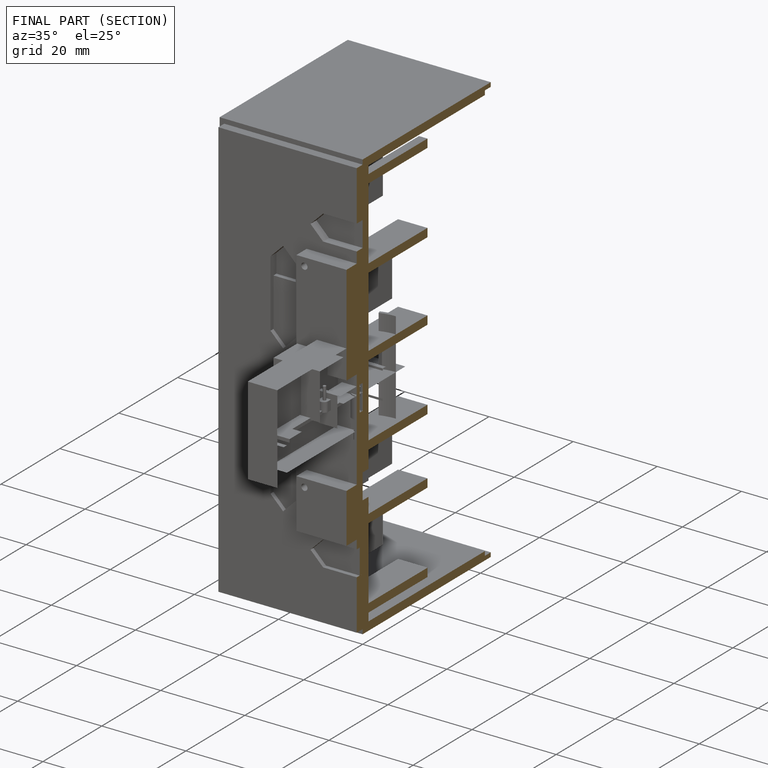
[diagram: finished part — half-section view (interior)]
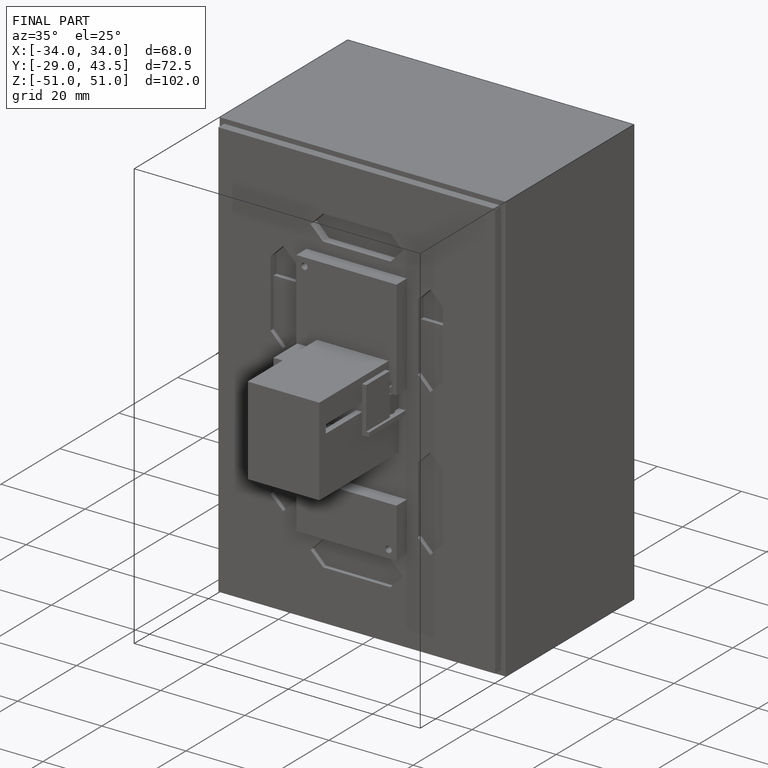
[diagram: finished part — iso view with bounding-box wireframe]
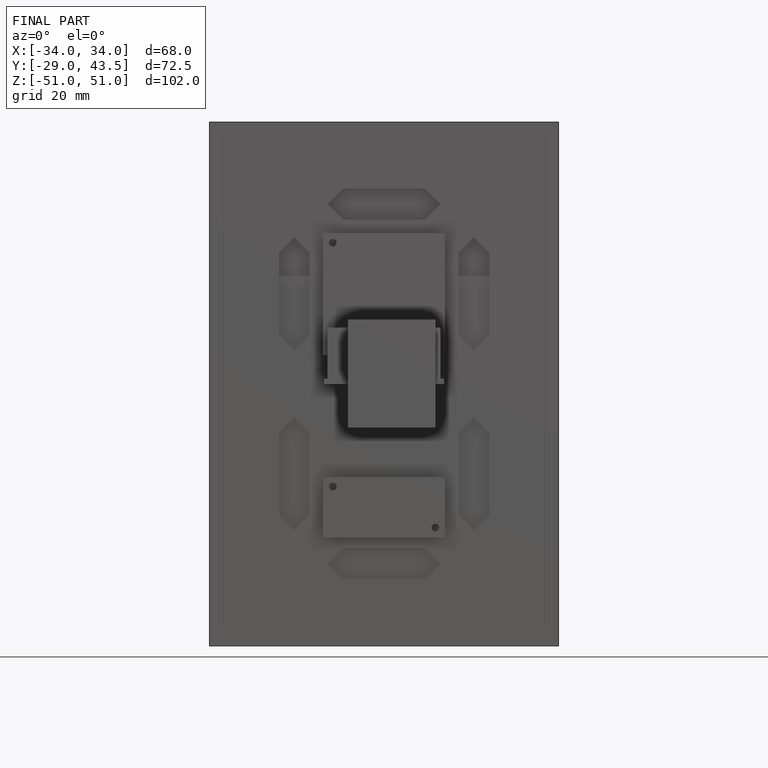
[diagram: finished part — front view with bounding-box wireframe]
